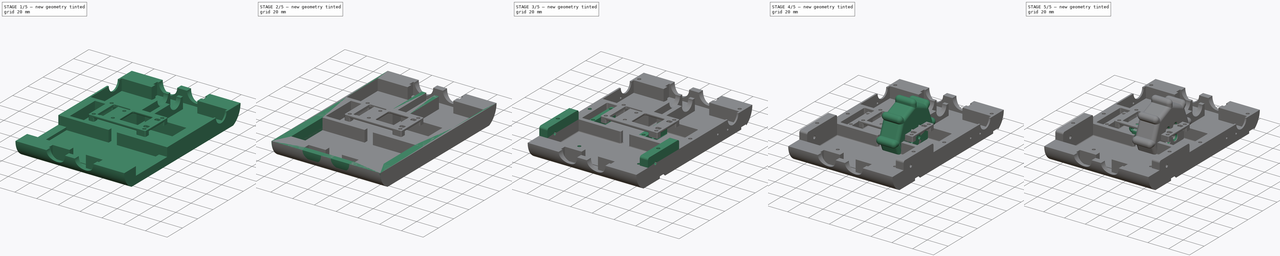
[diagram: build sequence overview — one tinted view per stage of 5, left to right]
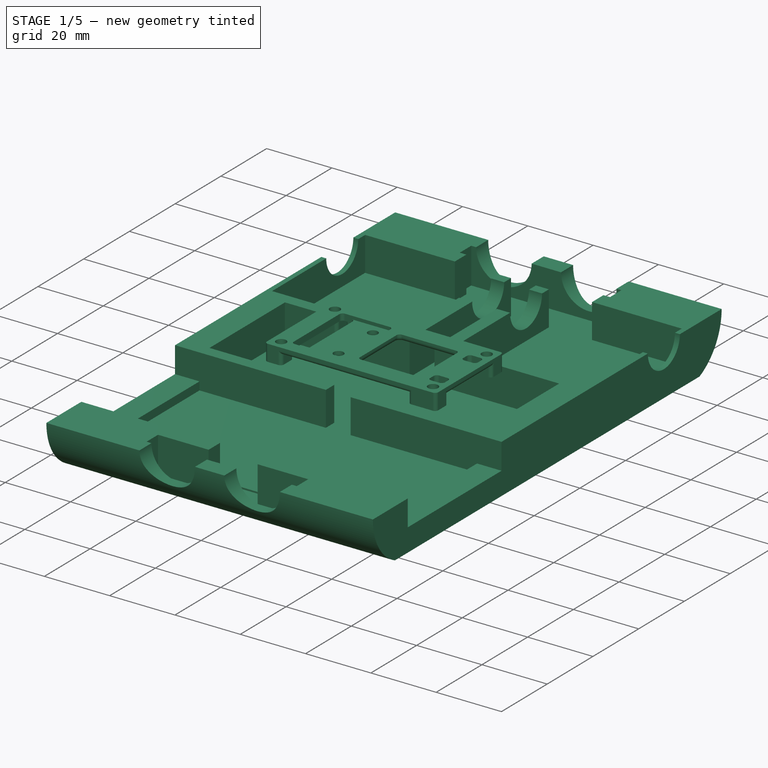
[diagram: stage 1 of 5 — iso view after this stage's code; geometry added in this stage tinted green]
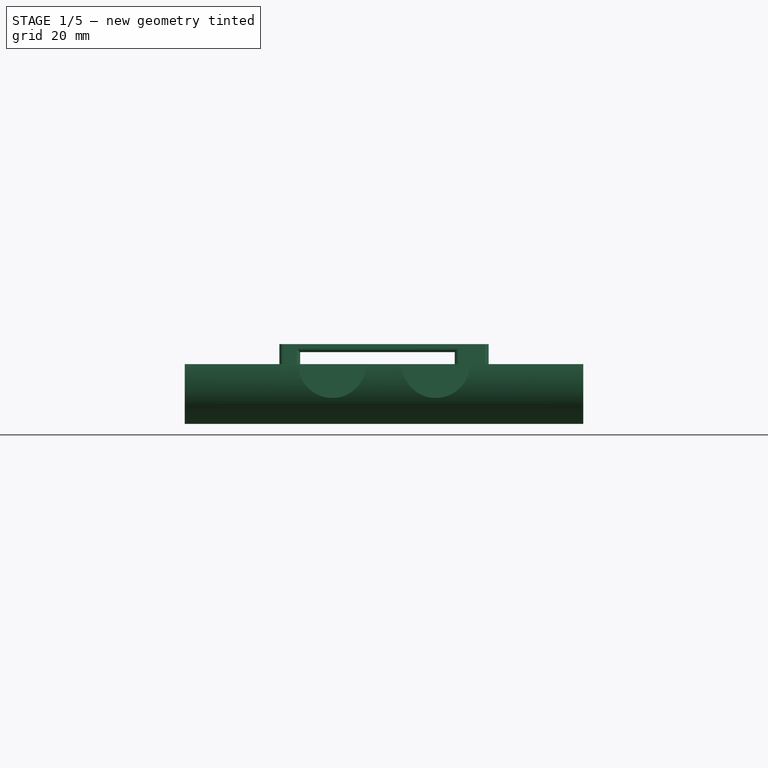
[diagram: stage 1 of 5 — front view after this stage's code; geometry added in this stage tinted green]
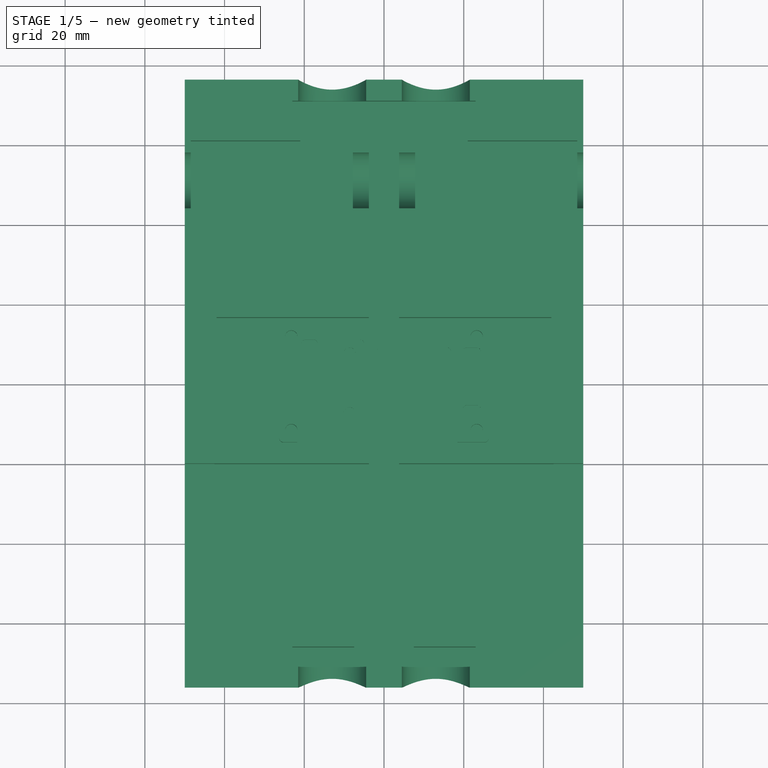
[diagram: stage 1 of 5 — top view after this stage's code; geometry added in this stage tinted green]
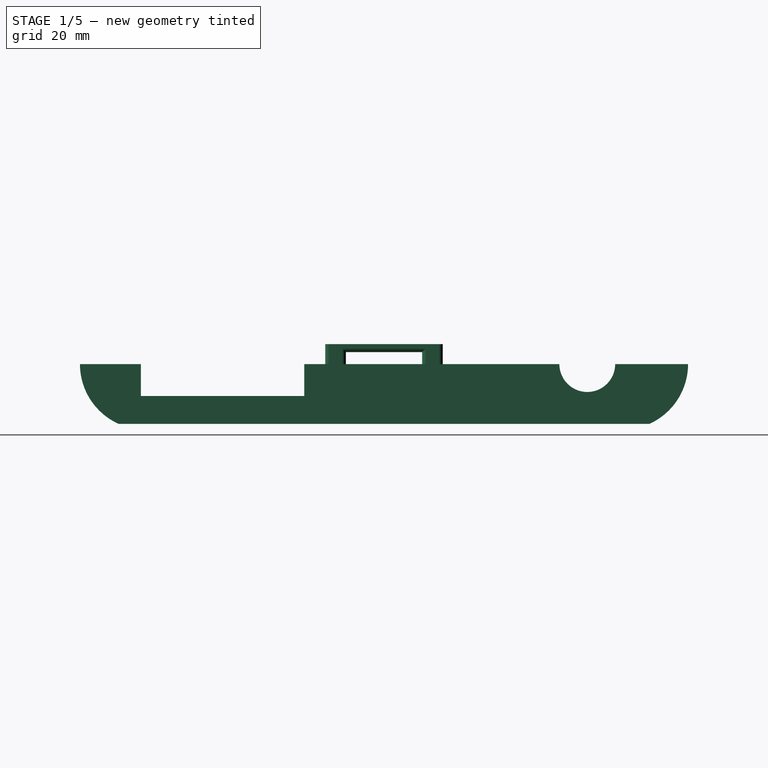
[diagram: stage 1 of 5 — right view after this stage's code; geometry added in this stage tinted green]
FCSTD DOCUMENT  (FreeCAD 0.18.4R)
Label: tank
License: All rights reserved
LicenseURL: http://en.wikipedia.org/wiki/All_rights_reserved
objects: Sketcher::SketchObject×40, PartDesign::Pocket×30, PartDesign::Fillet×16, PartDesign::Pad×10, PartDesign::Body×7, PartDesign::Chamfer×2
note: 145 computed .brp shape members not serialized (recipe doc carries the construction recipe); baked Part::Feature solids carry a one-line shape summary decoded from their .brp

FEATURE [PartDesign::Body] Body003  label="Body_bottom"
  Group = -> [Sketch011,Pad005,Sketch012,Pocket006,Sketch013,Sketch014,Sketch015,Sketch016,Sketch017,Pocket007,Pocket008,Pocket009,Pad006,Pocket010,Sketch018,Pocket011,Sketch019,Pocket012,Sketch020,Pad007,Sketch021,Pocket013,Fillet010,Sketch022,Pocket014,Fillet011,Sketch023,Pocket015,Fillet012,Chamfer001]
  Origin = -> Origin003
  Tip = -> Chamfer001
FEATURE [Sketcher::SketchObject] Sketch024  label="body_profile001"
  MapMode = 5
  Placement = pos=(0,0,0) rot=(0.57735,0.57735,0.57735;2.0944rad)
  Support = -> [YZ_Plane004]
  sketch-geometry (38):
    g0: LineSegment [constr] StartX=-51 StartY=0 StartZ=0 EndX=51 EndY=0 EndZ=0
    g1: LineSegment [constr] StartX=-61 StartY=10 StartZ=0 EndX=-21 EndY=10 EndZ=0
    g2: LineSegment [constr] StartX=-21 StartY=10 StartZ=0 EndX=-21 EndY=-10 EndZ=0
    g3: LineSegment [constr] StartX=-21 StartY=-10 StartZ=0 EndX=-61 EndY=-10 EndZ=0
    g4: LineSegment [constr] StartX=-61 StartY=-10 StartZ=0 EndX=-61 EndY=10 EndZ=0
    g5: LineSegment [constr] StartX=-51 StartY=10 StartZ=0 EndX=-51 EndY=-10 EndZ=0
    g6: Circle [constr] CenterX=-51 CenterY=0 CenterZ=0 NormalX=0 NormalY=0 NormalZ=1 AngleXU=0 Radius=27.5
    g7: Circle [constr] CenterX=51 CenterY=0 CenterZ=0 NormalX=0 NormalY=0 NormalZ=1 AngleXU=0 Radius=27.5
    g8: LineSegment [constr] StartX=-83 StartY=8 StartZ=0 EndX=-83 EndY=-8 EndZ=0
    g9: LineSegment [constr] StartX=-83 StartY=-8 StartZ=0 EndX=-71 EndY=-8 EndZ=0
    g10: LineSegment [constr] StartX=-71 StartY=-8 StartZ=0 EndX=-71 EndY=-10.5 EndZ=0
    g11: LineSegment [constr] StartX=-71 StartY=-10.5 StartZ=0 EndX=-66 EndY=-10.5 EndZ=0
    g12: LineSegment [constr] StartX=-66 StartY=-10.5 StartZ=0 EndX=-66 EndY=10.5 EndZ=0
    g13: LineSegment [constr] StartX=-66 StartY=10.5 StartZ=0 EndX=-71 EndY=10.5 EndZ=0
    g14: LineSegment [constr] StartX=-71 StartY=10.5 StartZ=0 EndX=-71 EndY=8 EndZ=0
    g15: LineSegment [constr] StartX=-71 StartY=8 StartZ=0 EndX=-83 EndY=8 EndZ=0
    g16: LineSegment [constr] StartX=-71 StartY=8 StartZ=0 EndX=-71 EndY=-8 EndZ=0
    g17: LineSegment [constr] StartX=83 StartY=8 StartZ=0 EndX=71 EndY=8 EndZ=0
    g18: LineSegment [constr] StartX=71 StartY=8 StartZ=0 EndX=71 EndY=10.5 EndZ=0
    g19: LineSegment [constr] StartX=71 StartY=10.5 StartZ=0 EndX=66 EndY=10.5 EndZ=0
    g20: LineSegment [constr] StartX=66 StartY=10.5 StartZ=0 EndX=66 EndY=-10.5 EndZ=0
    g21: LineSegment [constr] StartX=66 StartY=-10.5 StartZ=0 EndX=71 EndY=-10.5 EndZ=0
    g22: LineSegment [constr] StartX=71 StartY=-10.5 StartZ=0 EndX=71 EndY=-8 EndZ=0
    g23: LineSegment [constr] StartX=71 StartY=-8 StartZ=0 EndX=83 EndY=-8 EndZ=0
    g24: LineSegment [constr] StartX=83 StartY=-8 StartZ=0 EndX=83 EndY=8 EndZ=0
    g25: LineSegment [constr] StartX=-66 StartY=0 StartZ=0 EndX=-51 EndY=0 EndZ=0
    g26: LineSegment [constr] StartX=51 StartY=0 StartZ=0 EndX=66 EndY=0 EndZ=0
    g27: LineSegment [constr] StartX=-51 StartY=0 StartZ=0 EndX=-78.5 EndY=0 EndZ=0
    g28: Circle [constr] CenterX=-51 CenterY=0 CenterZ=0 NormalX=0 NormalY=0 NormalZ=1 AngleXU=0 Radius=25.2834
    g29: LineSegment [constr] StartX=-71.3531 StartY=-15 StartZ=0 EndX=71.3531 EndY=-15 EndZ=0
    g30: LineSegment [constr] StartX=-71 StartY=-10.5 StartZ=0 EndX=-74 EndY=-10.5 EndZ=0
    g31: Circle [constr] CenterX=51 CenterY=0 CenterZ=0 NormalX=0 NormalY=0 NormalZ=1 AngleXU=0 Radius=25.2834
    g32: ArcOfCircle CenterX=-59.8214 CenterY=0 CenterZ=0 NormalX=0 NormalY=0 NormalZ=1 AngleXU=0 Radius=16.4619 StartAngle=3.14159 EndAngle=4.28776
    g33: LineSegment [constr] StartX=-71 StartY=-10.5 StartZ=0 EndX=-72.5 EndY=-10.5 EndZ=0
    g34: LineSegment [constr] StartX=66 StartY=0 StartZ=0 EndX=83 EndY=0 EndZ=0
    g35: ArcOfCircle CenterX=59.8214 CenterY=0 CenterZ=0 NormalX=0 NormalY=0 NormalZ=1 AngleXU=0 Radius=16.4619 StartAngle=5.13702 EndAngle=6.28319
    g36: LineSegment StartX=-66.6035 StartY=-15 StartZ=0 EndX=66.6035 EndY=-15 EndZ=0
    g37: LineSegment StartX=-76.2834 StartY=2e-15 StartZ=0 EndX=76.2834 EndY=-4e-15 EndZ=0
  constraints (114):
    c: Horizontal(g0)
    c: Symmetric(g0,g0,g-1)
    c: DistanceX(g0,g0) = 102
    c: Coincident(g1,g2)
    c: Coincident(g2,g3)
    c: Coincident(g3,g4)
    c: Coincident(g4,g1)
    c: Horizontal(g1)
    c: Horizontal(g3)
    c: Vertical(g2)
    c: Vertical(g4)
    c: PointOnObject(g5,g1)
    c: PointOnObject(g5,g3)
    c: Vertical(g5)
    c: DistanceX(g3,g5) = 10
    c: Symmetric(g5,g5,g0)
    c: DistanceY(g4,g4) = 20
    c: DistanceX(g1,g1) = 40
    c: Equal(g7,g6)
    c: Radius(g6) = 27.5
    c: Coincident(g6,g0)
    c: Coincident(g7,g0)
    c: Coincident(g8,g9)
    c: Horizontal(g9)
    c: Coincident(g9,g10)
    c: Vertical(g10)
    c: Coincident(g10,g11)
    c: Horizontal(g11)
    c: Coincident(g11,g12)
    c: Vertical(g12)
    c: Coincident(g12,g13)
    c: Horizontal(g13)
    c: Coincident(g13,g14)
    c: Vertical(g14)
    c: Coincident(g14,g15)
    c: Coincident(g15,g8)
    c: Horizontal(g15)
    c: DistanceY(g8,g8) = 16
    c: Equal(g10,g14)
    c: DistanceY(g12,g12) = 21
    c: DistanceX(g15,g15) = 12
    c: Coincident(g16,g14)
    c: Coincident(g16,g9)
    c: Vertical(g16)
    c: DistanceX(g13,g13) = 5
    c: Symmetric(g8,g8,g-1)
    c: DistanceX(g11,g3) = 5
    c: Horizontal(g17)
    c: Coincident(g17,g18)
    c: Vertical(g18)
    c: Coincident(g18,g19)
    c: Horizontal(g19)
    c: Coincident(g19,g20)
    c: Vertical(g20)
    c: Coincident(g20,g21)
    c: Horizontal(g21)
    c: Coincident(g21,g22)
    c: Coincident(g22,g23)
    c: Horizontal(g23)
    c: Coincident(g23,g24)
    c: Coincident(g24,g17)
    c: Equal(g17,g23)
    c: Equal(g19,g21)
    c: Equal(g18,g22)
    c: Equal(g20,g12)
    c: Equal(g24,g8)
    c: Equal(g15,g17)
    c: Equal(g21,g13)
    c: Symmetric(g17,g23,g-1)
    c: PointOnObject(g25,g12)
    c: Coincident(g25,g0)
    c: Horizontal(g25)
    c: Coincident(g26,g0)
    c: PointOnObject(g26,g20)
    c: Horizontal(g26)
    c: Equal(g26,g25)
    c: Coincident(g27,g0)
    c: PointOnObject(g27,g6)
    c: Horizontal(g27)
    c: Coincident(g28,g0)
    c: PointOnObject(g29,g28)
    c: Horizontal(g29)
    c: DistanceY(g29,g3) = 5
    c: Coincident(g30,g10)
    c: PointOnObject(g30,g28)
    c: Horizontal(g30)
    c: DistanceX(g30,g30) = 3
    c: Coincident(g31,g0)
    c: Equal(g31,g28)
    c: PointOnObject(g29,g31)
    c: PointOnObject(g32,g27)
    c: PointOnObject(g32,g28)
    c: PointOnObject(g32,g29)
    c: PointOnObject(g32,g27)
    c: Coincident(g33,g10)
    c: PointOnObject(g33,g32)
    c: DistanceX(g33,g33) = 1.5
    c: Horizontal(g33)
    c: Coincident(g34,g26)
    c: Horizontal(g34)
    c: PointOnObject(g35,g34)
    c: PointOnObject(g35,g31)
    c: PointOnObject(g35,g29)
    c: PointOnObject(g35,g34)
    c: Equal(g35,g32)
    c: PointOnObject(g34,g24)
    c: Coincident(g37,g32)
    c: Coincident(g36,g32)
    c: Coincident(g37,g35)
    c: Coincident(g36,g35)
    c: DistanceX(g37,g37) = 152.567
    c: DistanceX(g12,g19) = 132
    c: DistanceY(g30,g32) = 10.5
    c: DistanceY(g32,g32) = 15
FEATURE [PartDesign::Pad] Pad008
  Length = 100
  Length2 = 100
  Midplane = true
  Placement = pos=(0,0,0) rot=(0.57735,0.57735,0.57735;2.0944rad)
  Profile = -> Sketch024
  Type = 0
FEATURE [Sketcher::SketchObject] Sketch025  label="main_cut001"
  MapMode = 5
  Placement = pos=(0,0,-6e-16) rot=(0,0,-1;1.5708rad)
  Support = -> [Pad008]
  sketch-geometry (39):
    g0: LineSegment StartX=-61 StartY=-7.8 StartZ=0 EndX=-20.3 EndY=-7.8 EndZ=0
    g1: LineSegment StartX=-20.3 StartY=-7.8 StartZ=0 EndX=-20.3 EndY=-48.5 EndZ=0
    g2: LineSegment StartX=-20.3 StartY=-48.5 StartZ=0 EndX=-61 EndY=-48.5 EndZ=0
    g3: LineSegment StartX=-61 StartY=-48.5 StartZ=0 EndX=-61 EndY=-7.8 EndZ=0
    g4: LineSegment StartX=-61 StartY=48.5 StartZ=0 EndX=-20.3 EndY=48.5 EndZ=0
    g5: LineSegment StartX=-20.3 StartY=48.5 StartZ=0 EndX=-20.3 EndY=7.8 EndZ=0
    g6: LineSegment StartX=-20.3 StartY=7.8 StartZ=0 EndX=-61 EndY=7.8 EndZ=0
    g7: LineSegment StartX=-61 StartY=7.8 StartZ=0 EndX=-61 EndY=48.5 EndZ=0
    g8: LineSegment [constr] StartX=-61 StartY=7.8 StartZ=0 EndX=-61 EndY=-7.8 EndZ=0
    g9: LineSegment [constr] StartX=-76.2835 StartY=50 StartZ=0 EndX=76.2835 EndY=50 EndZ=0
    g10: LineSegment [constr] StartX=76.2835 StartY=50 StartZ=0 EndX=76.2835 EndY=-50 EndZ=0
    g11: LineSegment [constr] StartX=76.2835 StartY=-50 StartZ=0 EndX=-76.2835 EndY=-50 EndZ=0
    g12: LineSegment [constr] StartX=-76.2835 StartY=-50 StartZ=0 EndX=-76.2835 EndY=50 EndZ=0
    g13: LineSegment [constr] StartX=-61 StartY=-48.5 StartZ=0 EndX=-61 EndY=-50 EndZ=0
    g14: LineSegment StartX=-66 StartY=3.8 StartZ=0 EndX=-16.65 EndY=3.8 EndZ=0
    g15: LineSegment StartX=-16.65 StartY=3.8 StartZ=0 EndX=-16.65 EndY=42 EndZ=0
    g16: LineSegment StartX=-16.65 StartY=42 StartZ=0 EndX=16.35 EndY=42 EndZ=0
    g17: LineSegment StartX=16.35 StartY=42 StartZ=0 EndX=16.35 EndY=3.8 EndZ=0
    g18: LineSegment StartX=16.35 StartY=3.8 StartZ=0 EndX=20 EndY=3.8 EndZ=0
    g19: LineSegment StartX=20 StartY=3.8 StartZ=0 EndX=20 EndY=42.5 EndZ=0
    g20: LineSegment StartX=20 StartY=42.5 StartZ=0 EndX=61 EndY=42.5 EndZ=0
    g21: LineSegment StartX=61 StartY=42.5 StartZ=0 EndX=61 EndY=-42.5 EndZ=0
    g22: LineSegment StartX=61 StartY=-42.5 StartZ=0 EndX=20 EndY=-42.5 EndZ=0
    g23: LineSegment StartX=20 StartY=-42.5 StartZ=0 EndX=20 EndY=-3.8 EndZ=0
    g24: LineSegment StartX=20 StartY=-3.8 StartZ=0 EndX=16.35 EndY=-3.8 EndZ=0
    g25: LineSegment StartX=16.35 StartY=-3.8 StartZ=0 EndX=16.35 EndY=-42 EndZ=0
    g26: LineSegment StartX=16.35 StartY=-42 StartZ=0 EndX=-16.65 EndY=-42 EndZ=0
    g27: LineSegment StartX=-16.65 StartY=-42 StartZ=0 EndX=-16.65 EndY=-3.8 EndZ=0
    g28: LineSegment StartX=-16.65 StartY=-3.8 StartZ=0 EndX=-66 EndY=-3.8 EndZ=0
    g29: LineSegment StartX=-66 StartY=-3.8 StartZ=0 EndX=-66 EndY=3.8 EndZ=0
    g30: LineSegment [constr] StartX=-61 StartY=48.5 StartZ=0 EndX=-76.2835 EndY=48.5 EndZ=0
    g31: LineSegment [constr] StartX=61 StartY=42.5 StartZ=0 EndX=76.2835 EndY=42.5 EndZ=0
    g32: LineSegment [constr] StartX=-51 StartY=0 StartZ=0 EndX=51 EndY=0 EndZ=0
    g33: LineSegment [constr] StartX=-51 StartY=-48.5 StartZ=0 EndX=-51 EndY=0 EndZ=0
    g34: LineSegment [constr] StartX=-20.3 StartY=7.8 StartZ=0 EndX=-16.65 EndY=7.8 EndZ=0
    g35: LineSegment [constr] StartX=16.35 StartY=42 StartZ=0 EndX=16.35 EndY=50 EndZ=0
    g36: LineSegment [constr] StartX=-20.3 StartY=7.8 StartZ=0 EndX=-20.3 EndY=3.8 EndZ=0
    g37: LineSegment [constr] StartX=-61 StartY=7.8 StartZ=0 EndX=-66 EndY=7.8 EndZ=0
    g38: LineSegment [constr] StartX=-66 StartY=7.8 StartZ=0 EndX=-66 EndY=3.8 EndZ=0
  constraints (113):
    c: Coincident(g0,g1)
    c: Coincident(g1,g2)
    c: Coincident(g2,g3)
    c: Coincident(g3,g0)
    c: Horizontal(g0)
    c: Horizontal(g2)
    c: Vertical(g1)
    c: Vertical(g3)
    c: Coincident(g4,g5)
    c: Coincident(g5,g6)
    c: Coincident(g6,g7)
    c: Coincident(g7,g4)
    c: Horizontal(g4)
    c: Horizontal(g6)
    c: Vertical(g5)
    c: Vertical(g7)
    c: Equal(g4,g7)
    c: Equal(g7,g3)
    c: Equal(g3,g0)
    c: DistanceX(g4,g4) = 40.7
    c: Coincident(g8,g6)
    c: Coincident(g8,g0)
    c: Symmetric(g6,g0,g-1)
    c: Coincident(g9,g10)
    c: Coincident(g10,g11)
    c: Coincident(g11,g12)
    c: Coincident(g12,g9)
    c: Horizontal(g9)
    c: Horizontal(g11)
    c: Vertical(g10)
    c: Vertical(g12)
    c: DistanceX(g11,g11) = 152.567
    c: DistanceY(g12,g12) = 100
    c: Symmetric(g9,g10,g-1)
    c: Coincident(g13,g2)
    c: PointOnObject(g13,g11)
    c: Vertical(g13)
    c: DistanceY(g13,g13) = 1.5
    c: Horizontal(g14)
    c: Coincident(g14,g15)
    c: Vertical(g15)
    c: Coincident(g15,g16)
    c: Horizontal(g16)
    c: Coincident(g16,g17)
    c: Vertical(g17)
    c: Coincident(g17,g18)
    c: Horizontal(g18)
    c: Coincident(g18,g19)
    c: Vertical(g19)
    c: Coincident(g19,g20)
    c: Horizontal(g20)
    c: Coincident(g20,g21)
    c: Vertical(g21)
    c: Coincident(g21,g22)
    c: Horizontal(g22)
    c: Coincident(g22,g23)
    c: Vertical(g23)
    c: Coincident(g23,g24)
    c: Horizontal(g24)
    c: Coincident(g24,g25)
    c: Vertical(g25)
    c: Coincident(g25,g26)
    c: Horizontal(g26)
    c: Coincident(g26,g27)
    c: Coincident(g27,g28)
    c: Horizontal(g28)
    c: Coincident(g28,g29)
    c: Coincident(g29,g14)
    c: Equal(g14,g28)
    c: Equal(g16,g26)
    c: Equal(g15,g27)
    c: Equal(g27,g17)
    c: Equal(g17,g25)
    c: Equal(g18,g24)
    c: Equal(g19,g23)
    c: Equal(g20,g22)
    c: Symmetric(g14,g28,g-1)
    c: DistanceX(g20,g20) = 41
    c: Coincident(g30,g4)
    c: PointOnObject(g30,g12)
    c: Horizontal(g30)
    c: Coincident(g31,g20)
    c: PointOnObject(g31,g10)
    c: Horizontal(g31)
    c: Equal(g31,g30)
    c: Horizontal(g32)
    c: DistanceX(g32,g32) = 102
    c: Symmetric(g32,g32,g-1)
    c: PointOnObject(g33,g2)
    c: Coincident(g33,g32)
    c: Vertical(g33)
    c: DistanceX(g2,g33) = 10
    c: Coincident(g34,g5)
    c: PointOnObject(g34,g15)
    c: Horizontal(g34)
    c: Equal(g34,g18)
    c: DistanceX(g16,g16) = 33
    c: Coincident(g35,g16)
    c: PointOnObject(g35,g9)
    c: Vertical(g35)
    c: DistanceY(g35,g35) = 8
    c: DistanceY(g26,g15) = 84
    c: DistanceY(g21,g21) = 85
    c: Coincident(g36,g5)
    c: PointOnObject(g36,g14)
    c: Vertical(g36)
    c: DistanceY(g36,g36) = 4
    c: Coincident(g37,g6)
    c: Horizontal(g37)
    c: Coincident(g38,g37)
    c: Coincident(g38,g14)
    c: Vertical(g38)
    c: DistanceX(g37,g37) = 5
FEATURE [PartDesign::Pocket] Pocket016
  BaseFeature = -> Pad008
  Length = 10.5
  Length2 = 100
  Placement = pos=(0,0,0) rot=(0.57735,0.57735,0.57735;2.0944rad)
  Profile = -> Sketch025
  Type = 0
FEATURE [Sketcher::SketchObject] Sketch026  label="sonar_board_cut001"
  MapMode = 5
  Placement = pos=(0,0,-6e-16) rot=(0,0,-1;1.5708rad)
  Support = -> [Pocket016]
  sketch-geometry (19):
    g0: LineSegment StartX=-71 StartY=23 StartZ=0 EndX=-66 EndY=23 EndZ=0
    g1: LineSegment [constr] StartX=-66 StartY=23 StartZ=0 EndX=-66 EndY=-23 EndZ=0
    g2: LineSegment StartX=-66 StartY=-23 StartZ=0 EndX=-71 EndY=-23 EndZ=0
    g3: LineSegment StartX=-71 StartY=-23 StartZ=0 EndX=-71 EndY=23 EndZ=0
    g4: LineSegment StartX=66 StartY=23 StartZ=0 EndX=71 EndY=23 EndZ=0
    g5: LineSegment StartX=71 StartY=23 StartZ=0 EndX=71 EndY=-23 EndZ=0
    g6: LineSegment StartX=71 StartY=-23 StartZ=0 EndX=66 EndY=-23 EndZ=0
    g7: LineSegment [constr] StartX=66 StartY=-23 StartZ=0 EndX=66 EndY=23 EndZ=0
    g8: LineSegment [constr] StartX=-66 StartY=0 StartZ=0 EndX=66 EndY=0 EndZ=0
    g9: LineSegment StartX=66 StartY=23 StartZ=0 EndX=66 EndY=7.5 EndZ=0
    g10: LineSegment StartX=66 StartY=7.5 StartZ=0 EndX=61 EndY=7.5 EndZ=0
    g11: LineSegment StartX=61 StartY=7.5 StartZ=0 EndX=61 EndY=-7.5 EndZ=0
    g12: LineSegment StartX=61 StartY=-7.5 StartZ=0 EndX=66 EndY=-7.5 EndZ=0
    g13: LineSegment StartX=66 StartY=-7.5 StartZ=0 EndX=66 EndY=-23 EndZ=0
    g14: LineSegment StartX=-66 StartY=23 StartZ=0 EndX=-66 EndY=21 EndZ=0
    g15: LineSegment StartX=-66 StartY=21 StartZ=0 EndX=-61 EndY=21 EndZ=0
    g16: LineSegment StartX=-61 StartY=21 StartZ=0 EndX=-61 EndY=-21 EndZ=0
    g17: LineSegment StartX=-61 StartY=-21 StartZ=0 EndX=-66 EndY=-21 EndZ=0
    g18: LineSegment StartX=-66 StartY=-21 StartZ=0 EndX=-66 EndY=-23 EndZ=0
  constraints (53):
    c: Coincident(g0,g1)
    c: Coincident(g1,g2)
    c: Coincident(g2,g3)
    c: Coincident(g3,g0)
    c: Horizontal(g0)
    c: Horizontal(g2)
    c: Vertical(g1)
    c: Coincident(g4,g5)
    c: Coincident(g5,g6)
    c: Coincident(g6,g7)
    c: Coincident(g7,g4)
    c: Horizontal(g4)
    c: Horizontal(g6)
    c: Vertical(g7)
    c: Equal(g3,g7)
    c: Equal(g0,g4)
    c: Symmetric(g0,g2,g-1)
    c: Symmetric(g4,g5,g-1)
    c: DistanceY(g3,g3) = 46
    c: DistanceX(g0,g0) = 5
    c: Horizontal(g8)
    c: Symmetric(g8,g8,g-1)
    c: PointOnObject(g8,g1)
    c: PointOnObject(g8,g7)
    c: DistanceX(g8,g8) = 132
    c: Vertical(g9)
    c: Coincident(g9,g10)
    c: Coincident(g10,g11)
    c: Vertical(g11)
    c: Coincident(g11,g12)
    c: Horizontal(g12)
    c: Coincident(g12,g13)
    c: Horizontal(g10)
    c: Equal(g10,g12)
    c: Coincident(g9,g4)
    c: Coincident(g13,g6)
    c: Equal(g13,g9)
    c: DistanceY(g11,g11) = 15
    c: DistanceX(g10,g10) = 5
    c: Vertical(g14)
    c: Coincident(g14,g15)
    c: Horizontal(g15)
    c: Coincident(g15,g16)
    c: Vertical(g16)
    c: Coincident(g16,g17)
    c: Horizontal(g17)
    c: Coincident(g17,g18)
    c: Coincident(g18,g2)
    c: Coincident(g14,g0)
    c: Equal(g14,g18)
    c: Equal(g15,g17)
    c: DistanceX(g15,g15) = 5
    c: DistanceY(g14,g0) = 2
FEATURE [Sketcher::SketchObject] Sketch029  label="extra_top_axis001"
  MapMode = 5
  Placement = pos=(0,0,-6e-16) rot=(0,0,-1;1.5708rad)
  Support = -> [Pocket016]
  sketch-geometry (11):
    g0: LineSegment [constr] StartX=-51 StartY=0 StartZ=0 EndX=51 EndY=0 EndZ=0
    g1: LineSegment [constr] StartX=51 StartY=50 StartZ=0 EndX=51 EndY=-50 EndZ=0
    g2: LineSegment StartX=20 StartY=42.5 StartZ=0 EndX=61 EndY=42.5 EndZ=0
    g3: LineSegment StartX=61 StartY=42.5 StartZ=0 EndX=61 EndY=50 EndZ=0
    g4: LineSegment StartX=61 StartY=50 StartZ=0 EndX=20 EndY=50 EndZ=0
    g5: LineSegment StartX=20 StartY=50 StartZ=0 EndX=20 EndY=42.5 EndZ=0
    g6: LineSegment StartX=20 StartY=-42.5 StartZ=0 EndX=61 EndY=-42.5 EndZ=0
    g7: LineSegment StartX=61 StartY=-42.5 StartZ=0 EndX=61 EndY=-50 EndZ=0
    g8: LineSegment StartX=61 StartY=-50 StartZ=0 EndX=20 EndY=-50 EndZ=0
    g9: LineSegment StartX=20 StartY=-50 StartZ=0 EndX=20 EndY=-42.5 EndZ=0
    g10: LineSegment [constr] StartX=61 StartY=-42.5 StartZ=0 EndX=61 EndY=42.5 EndZ=0
  constraints (32):
    c: Horizontal(g0)
    c: DistanceX(g0,g0) = 102
    c: Symmetric(g0,g0,g-1)
    c: Vertical(g1)
    c: DistanceY(g1,g1) = 100
    c: Symmetric(g1,g1,g0)
    c: Coincident(g2,g3)
    c: Coincident(g3,g4)
    c: Coincident(g4,g5)
    c: Coincident(g5,g2)
    c: Horizontal(g2)
    c: Horizontal(g4)
    c: Vertical(g3)
    c: Vertical(g5)
    c: DistanceY(g3,g3) = 7.5
    c: PointOnObject(g1,g4)
    c: DistanceX(g4,g4) = 41
    c: DistanceX(g1,g3) = 10
    c: Coincident(g6,g7)
    c: Coincident(g7,g8)
    c: Coincident(g8,g9)
    c: Coincident(g9,g6)
    c: Horizontal(g6)
    c: Horizontal(g8)
    c: Vertical(g7)
    c: Vertical(g9)
    c: PointOnObject(g1,g8)
    c: Equal(g7,g3)
    c: Equal(g2,g6)
    c: Coincident(g10,g6)
    c: Coincident(g10,g2)
    c: Vertical(g10)
FEATURE [Sketcher::SketchObject] Sketch030  label="axis_cut001"
  MapMode = 5
  Placement = pos=(50,-1.1e-14,4.7e-14) rot=(0.57735,0.57735,0.57735;2.0944rad)
  sketch-geometry (3):
    g0: LineSegment [constr] StartX=-51 StartY=0 StartZ=0 EndX=51 EndY=0 EndZ=0
    g1: ArcOfCircle CenterX=51 CenterY=0 CenterZ=0 NormalX=0 NormalY=0 NormalZ=1 AngleXU=0 Radius=7 StartAngle=3.14159 EndAngle=6.28319
    g2: LineSegment StartX=44 StartY=4e-15 StartZ=0 EndX=58 EndY=-1.7e-15 EndZ=0
  constraints (9):
    c: Horizontal(g0)
    c: DistanceX(g0,g0) = 102
    c: Symmetric(g0,g0,g-1)
    c: Coincident(g1,g0)
    c: PointOnObject(g1,g0)
    c: PointOnObject(g1,g-1)
    c: Radius(g1) = 7
    c: Coincident(g2,g1)
    c: Coincident(g2,g1)
FEATURE [PartDesign::Pocket] Pocket017
  BaseFeature = -> Pocket016
  Length = 11
  Length2 = 100
  Placement = pos=(0,0,0) rot=(0.57735,0.57735,0.57735;2.0944rad)
  Profile = -> Sketch026
  Type = 0
FEATURE [Sketcher::SketchObject] Sketch027  label="sonar_cut_back001"
  MapMode = 5
  Placement = pos=(3.12e-14,71,-5.04e-14) rot=(0.57735,0.57735,-0.57735;2.0944rad)
  Support = -> [Pocket017]
  sketch-geometry (4):
    g0: ArcOfCircle CenterX=0 CenterY=13 CenterZ=0 NormalX=0 NormalY=0 NormalZ=1 AngleXU=0 Radius=8.5 StartAngle=4.71239 EndAngle=7.85398
    g1: ArcOfCircle CenterX=0 CenterY=-13 CenterZ=0 NormalX=0 NormalY=0 NormalZ=1 AngleXU=0 Radius=8.5 StartAngle=4.71239 EndAngle=7.85398
    g2: LineSegment StartX=2.6e-15 StartY=-4.5 StartZ=0 EndX=-1.6e-15 EndY=-21.5 EndZ=0
    g3: LineSegment StartX=2.6e-15 StartY=21.5 StartZ=0 EndX=-1.6e-15 EndY=4.5 EndZ=0
  constraints (13):
    c: PointOnObject(g0,g-2)
    c: PointOnObject(g0,g-2)
    c: PointOnObject(g0,g-2)
    c: PointOnObject(g1,g-2)
    c: PointOnObject(g1,g-2)
    c: Equal(g1,g0)
    c: Radius(g0) = 8.5
    c: Symmetric(g1,g0,g-1)
    c: DistanceY(g1,g0) = 9
    c: Coincident(g3,g0)
    c: Coincident(g3,g0)
    c: Coincident(g2,g1)
    c: Coincident(g2,g1)
FEATURE [Sketcher::SketchObject] Sketch028  label="sonar_cut_front001"
  MapMode = 5
  Placement = pos=(-3.12e-14,-71,5.04e-14) rot=(0.57735,0.57735,0.57735;4.18879rad)
  Support = -> [Pocket017]
  sketch-geometry (4):
    g0: ArcOfCircle CenterX=0 CenterY=13 CenterZ=0 NormalX=0 NormalY=0 NormalZ=1 AngleXU=0 Radius=8.5 StartAngle=1.5708 EndAngle=4.71239
    g1: ArcOfCircle CenterX=0 CenterY=-13 CenterZ=0 NormalX=0 NormalY=0 NormalZ=1 AngleXU=0 Radius=8.5 StartAngle=1.5708 EndAngle=4.71239
    g2: LineSegment StartX=5e-16 StartY=-4.5 StartZ=0 EndX=-1.6e-15 EndY=-21.5 EndZ=0
    g3: LineSegment StartX=5e-16 StartY=21.5 StartZ=0 EndX=-1.6e-15 EndY=4.5 EndZ=0
  constraints (13):
    c: Coincident(g2,g1)
    c: Coincident(g2,g1)
    c: Coincident(g3,g0)
    c: Coincident(g3,g0)
    c: PointOnObject(g1,g-2)
    c: PointOnObject(g0,g-2)
    c: PointOnObject(g0,g-2)
    c: PointOnObject(g1,g-2)
    c: PointOnObject(g1,g-2)
    c: Symmetric(g1,g0,g-1)
    c: Equal(g1,g0)
    c: DistanceY(g1,g0) = 9
    c: Radius(g0) = 8.5
FEATURE [PartDesign::Pocket] Pocket018
  BaseFeature = -> Pocket017
  Length = 7
  Length2 = 100
  Placement = pos=(0,0,0) rot=(0.57735,0.57735,0.57735;2.0944rad)
  Profile = -> Sketch027
  Type = 0
FEATURE [PartDesign::Pocket] Pocket019
  BaseFeature = -> Pocket018
  Length = 7
  Length2 = 100
  Placement = pos=(0,0,0) rot=(0.57735,0.57735,0.57735;2.0944rad)
  Profile = -> Sketch028
  Type = 0
FEATURE [Sketcher::SketchObject] Sketch031  label="left_side001"
  MapMode = 5
  Placement = pos=(50,-1.1e-14,1.1e-14) rot=(0.57735,0.57735,0.57735;2.0944rad)
  sketch-geometry (8):
    g0: LineSegment [constr] StartX=-51 StartY=0 StartZ=0 EndX=51 EndY=0 EndZ=0
    g1: LineSegment [constr] StartX=21 StartY=10 StartZ=0 EndX=61 EndY=10 EndZ=0
    g2: LineSegment [constr] StartX=61 StartY=10 StartZ=0 EndX=61 EndY=-10 EndZ=0
    g3: LineSegment [constr] StartX=61 StartY=-10 StartZ=0 EndX=21 EndY=-10 EndZ=0
    g4: LineSegment [constr] StartX=21 StartY=-10 StartZ=0 EndX=21 EndY=10 EndZ=0
    g5: LineSegment [constr] StartX=51 StartY=10 StartZ=0 EndX=51 EndY=-10 EndZ=0
    g6: Circle CenterX=31 CenterY=-7 CenterZ=0 NormalX=0 NormalY=0 NormalZ=1 AngleXU=0 Radius=1
    g7: Circle CenterX=44 CenterY=-8 CenterZ=0 NormalX=0 NormalY=0 NormalZ=1 AngleXU=0 Radius=1
  constraints (24):
    c: Horizontal(g0)
    c: DistanceX(g0,g0) = 102
    c: Symmetric(g0,g0,g-1)
    c: Coincident(g1,g2)
    c: Coincident(g2,g3)
    c: Coincident(g3,g4)
    c: Coincident(g4,g1)
    c: Horizontal(g1)
    c: Horizontal(g3)
    c: Vertical(g2)
    c: Vertical(g4)
    c: PointOnObject(g5,g1)
    c: PointOnObject(g5,g3)
    c: Vertical(g5)
    c: DistanceX(g5,g1) = 10
    c: DistanceX(g1,g1) = 40
    c: DistanceY(g4,g4) = 20
    c: Symmetric(g5,g5,g0)
    c: Equal(g6,g7)
    c: Radius(g6) = 1
    c: DistanceX(g3,g7) = 23
    c: DistanceY(g3,g7) = 2
    c: DistanceX(g6,g7) = 13
    c: DistanceY(g3,g6) = 3
FEATURE [Sketcher::SketchObject] Sketch032  label="right_side001"
  MapMode = 5
  Placement = pos=(-50,1.1e-14,-1.1e-14) rot=(0.57735,0.57735,-0.57735;4.18879rad)
  sketch-geometry (12):
    g0: LineSegment [constr] StartX=-51 StartY=0 StartZ=0 EndX=51 EndY=0 EndZ=0
    g1: LineSegment [constr] StartX=21 StartY=10 StartZ=0 EndX=61 EndY=10 EndZ=0
    g2: LineSegment [constr] StartX=61 StartY=10 StartZ=0 EndX=61 EndY=-10 EndZ=0
    g3: LineSegment [constr] StartX=61 StartY=-10 StartZ=0 EndX=21 EndY=-10 EndZ=0
    g4: LineSegment [constr] StartX=21 StartY=-10 StartZ=0 EndX=21 EndY=10 EndZ=0
    g5: LineSegment [constr] StartX=51 StartY=10 StartZ=0 EndX=51 EndY=-10 EndZ=0
    g6: Circle CenterX=31 CenterY=7 CenterZ=0 NormalX=0 NormalY=0 NormalZ=1 AngleXU=0 Radius=1
    g7: Circle CenterX=44 CenterY=8 CenterZ=0 NormalX=0 NormalY=0 NormalZ=1 AngleXU=0 Radius=1
    g8: LineSegment StartX=-9.5 StartY=6.5 StartZ=0 EndX=9.5 EndY=6.5 EndZ=0
    g9: LineSegment StartX=9.5 StartY=6.5 StartZ=0 EndX=9.5 EndY=0 EndZ=0
    g10: LineSegment StartX=9.5 StartY=0 StartZ=0 EndX=-9.5 EndY=0 EndZ=0
    g11: LineSegment StartX=-9.5 StartY=0 StartZ=0 EndX=-9.5 EndY=6.5 EndZ=0
  constraints (35):
    c: Horizontal(g0)
    c: DistanceX(g0,g0) = 102
    c: Symmetric(g0,g0,g-1)
    c: Coincident(g1,g2)
    c: Coincident(g2,g3)
    c: Coincident(g3,g4)
    c: Coincident(g4,g1)
    c: Horizontal(g1)
    c: Horizontal(g3)
    c: Vertical(g2)
    c: Vertical(g4)
    c: PointOnObject(g5,g1)
    c: PointOnObject(g5,g3)
    c: Vertical(g5)
    c: DistanceX(g5,g1) = 10
    c: DistanceX(g1,g1) = 40
    c: DistanceY(g4,g4) = 20
    c: Symmetric(g5,g5,g0)
    c: Equal(g6,g7)
    c: Radius(g6) = 1
    c: DistanceX(g3,g7) = 23
    c: DistanceX(g6,g7) = 13
    c: DistanceY(g6,g1) = 3
    c: DistanceY(g7,g1) = 2
    c: Coincident(g8,g9)
    c: Coincident(g9,g10)
    c: Coincident(g10,g11)
    c: Coincident(g11,g8)
    c: Horizontal(g8)
    c: Horizontal(g10)
    c: Vertical(g9)
    c: Vertical(g11)
    c: DistanceX(g8,g8) = 19
    c: DistanceY(g11,g11) = 6.5
    c: Symmetric(g10,g9,g-1)
FEATURE [Sketcher::SketchObject] Sketch034  label="mount_holes001"
  MapMode = 5
  Placement = pos=(-6e-15,6e-15,8) rot=(0,0,-1;1.5708rad)
  sketch-geometry (11):
    g0: Circle CenterX=42 CenterY=46.25 CenterZ=0 NormalX=0 NormalY=0 NormalZ=1 AngleXU=0 Radius=1.55
    g1: Circle CenterX=42 CenterY=-46.25 CenterZ=0 NormalX=0 NormalY=0 NormalZ=1 AngleXU=0 Radius=1.55
    g2: Circle CenterX=-16 CenterY=-46.25 CenterZ=0 NormalX=0 NormalY=0 NormalZ=1 AngleXU=0 Radius=1.55
    g3: Circle CenterX=0 CenterY=46.25 CenterZ=0 NormalX=0 NormalY=0 NormalZ=1 AngleXU=0 Radius=1.55
    g4: Circle CenterX=-65 CenterY=46.25 CenterZ=0 NormalX=0 NormalY=0 NormalZ=1 AngleXU=0 Radius=1.55
    g5: Circle CenterX=-65 CenterY=-46.25 CenterZ=0 NormalX=0 NormalY=0 NormalZ=1 AngleXU=0 Radius=1.55
    g6: LineSegment [constr] StartX=-65 StartY=46.25 StartZ=0 EndX=65 EndY=46.25 EndZ=0
    g7: LineSegment [constr] StartX=65 StartY=46.25 StartZ=0 EndX=65 EndY=-46.25 EndZ=0
    g8: LineSegment [constr] StartX=65 StartY=-46.25 StartZ=0 EndX=-65 EndY=-46.25 EndZ=0
    g9: LineSegment [constr] StartX=-65 StartY=-46.25 StartZ=0 EndX=-65 EndY=46.25 EndZ=0
    g10: LineSegment [constr] StartX=42 StartY=46.25 StartZ=0 EndX=42 EndY=-46.25 EndZ=0
  constraints (29):
    c: Equal(g5,g2)
    c: Equal(g2,g1)
    c: Equal(g1,g0)
    c: Equal(g0,g3)
    c: Equal(g3,g4)
    c: Radius(g4) = 1.55
    c: Coincident(g6,g7)
    c: Coincident(g7,g8)
    c: Coincident(g8,g9)
    c: Coincident(g9,g6)
    c: Horizontal(g6)
    c: Horizontal(g8)
    c: Vertical(g7)
    c: Vertical(g9)
    c: Coincident(g4,g6)
    c: PointOnObject(g0,g6)
    c: PointOnObject(g3,g6)
    c: PointOnObject(g1,g8)
    c: DistanceY(g9,g9) = 92.5
    c: Coincident(g5,g8)
    c: Symmetric(g6,g5,g-1)
    c: DistanceX(g8,g8) = 130
    c: DistanceX(g1,g7) = 23
    c: Coincident(g10,g0)
    c: Coincident(g10,g1)
    c: Vertical(g10)
    c: PointOnObject(g2,g8)
    c: DistanceX(g5,g2) = 49
    c: PointOnObject(g3,g-2)
FEATURE [Sketcher::SketchObject] Sketch036  label="mount_holes_holes001"
  MapMode = 5
  Placement = pos=(1.3e-14,-1.5e-14,-15) rot=(0.707107,0.707107,0;3.14159rad)
  sketch-geometry (11):
    g0: Circle CenterX=-42 CenterY=46.25 CenterZ=0 NormalX=0 NormalY=0 NormalZ=1 AngleXU=0 Radius=5
    g1: Circle CenterX=-42 CenterY=-46.25 CenterZ=0 NormalX=0 NormalY=0 NormalZ=1 AngleXU=0 Radius=5
    g2: Circle CenterX=16 CenterY=-46.25 CenterZ=0 NormalX=0 NormalY=0 NormalZ=1 AngleXU=0 Radius=5
    g3: Circle CenterX=0 CenterY=46.25 CenterZ=0 NormalX=0 NormalY=0 NormalZ=1 AngleXU=0 Radius=5
    g4: LineSegment [constr] StartX=-65 StartY=46.25 StartZ=0 EndX=65 EndY=46.25 EndZ=0
    g5: LineSegment [constr] StartX=65 StartY=46.25 StartZ=0 EndX=65 EndY=-46.25 EndZ=0
    g6: LineSegment [constr] StartX=65 StartY=-46.25 StartZ=0 EndX=-65 EndY=-46.25 EndZ=0
    g7: LineSegment [constr] StartX=-65 StartY=-46.25 StartZ=0 EndX=-65 EndY=46.25 EndZ=0
    g8: LineSegment [constr] StartX=-42 StartY=46.25 StartZ=0 EndX=-42 EndY=-46.25 EndZ=0
    g9: Circle CenterX=65 CenterY=46.25 CenterZ=0 NormalX=0 NormalY=0 NormalZ=1 AngleXU=0 Radius=5
    g10: Circle CenterX=65 CenterY=-46.25 CenterZ=0 NormalX=0 NormalY=0 NormalZ=1 AngleXU=0 Radius=5
  constraints (29):
    c: Equal(g2,g1)
    c: Equal(g1,g0)
    c: Equal(g0,g3)
    c: Coincident(g4,g5)
    c: Coincident(g5,g6)
    c: Coincident(g6,g7)
    c: Coincident(g7,g4)
    c: Horizontal(g4)
    c: Horizontal(g6)
    c: Vertical(g5)
    c: Vertical(g7)
    c: PointOnObject(g0,g4)
    c: PointOnObject(g3,g4)
    c: PointOnObject(g1,g6)
    c: DistanceY(g7,g7) = 92.5
    c: DistanceX(g6,g6) = 130
    c: Coincident(g8,g0)
    c: Coincident(g8,g1)
    c: Vertical(g8)
    c: Coincident(g9,g4)
    c: Coincident(g10,g5)
    c: Equal(g10,g9)
    c: Equal(g9,g1)
    c: Symmetric(g4,g10,g-1)
    c: DistanceX(g6,g1) = 23
    c: Radius(g10) = 5
    c: PointOnObject(g2,g6)
    c: DistanceX(g2,g10) = 49
    c: PointOnObject(g3,g-2)
FEATURE [PartDesign::Pocket] Pocket020
  BaseFeature = -> Pocket019
  Length = 8
  Length2 = 100
  Placement = pos=(0,0,0) rot=(0.57735,0.57735,0.57735;2.0944rad)
  Profile = -> Sketch029
  Type = 0
FEATURE [PartDesign::Pocket] Pocket021
  BaseFeature = -> Pocket020
  Length = 5
  Length2 = 100
  Placement = pos=(0,0,0) rot=(0.57735,0.57735,0.57735;2.0944rad)
  Profile = -> Sketch030
  Type = 1
FEATURE [PartDesign::Body] Body004  label="Body_top"
  Group = -> [Sketch024,Pad008,Sketch025,Pocket016,Sketch026,Sketch027,Sketch028,Sketch029,Sketch030,Pocket017,Pocket018,Pocket019,Sketch031,Sketch032,Sketch034,Sketch036,Pocket020,Pocket021,Pocket022,Pocket023,Pocket024,Pocket025,Fillet013,Sketch037,Pocket026,Sketch038,Pocket027]
  Origin = -> Origin004
  Tip = -> Pocket027
FEATURE [PartDesign::Body] Body005
  Origin = -> Origin005
FEATURE [Sketcher::SketchObject] Sketch039  label="top_board"
  MapMode = 5
  Support = -> [XY_Plane006]
  sketch-geometry (47):
    g0: LineSegment [constr] StartX=-23.25 StartY=11.75 StartZ=0 EndX=23.25 EndY=11.75 EndZ=0
    g1: LineSegment [constr] StartX=23.25 StartY=11.75 StartZ=0 EndX=23.25 EndY=-11.75 EndZ=0
    g2: LineSegment [constr] StartX=23.25 StartY=-11.75 StartZ=0 EndX=-23.25 EndY=-11.75 EndZ=0
    g3: LineSegment [constr] StartX=-23.25 StartY=-11.75 StartZ=0 EndX=-23.25 EndY=11.75 EndZ=0
    g4: Circle CenterX=-23.25 CenterY=11.75 CenterZ=0 NormalX=0 NormalY=0 NormalZ=1 AngleXU=0 Radius=1.55
    g5: Circle CenterX=23.25 CenterY=11.75 CenterZ=0 NormalX=0 NormalY=0 NormalZ=1 AngleXU=0 Radius=1.55
    g6: Circle CenterX=-23.25 CenterY=-11.75 CenterZ=0 NormalX=0 NormalY=0 NormalZ=1 AngleXU=0 Radius=1.55
    g7: Circle CenterX=23.25 CenterY=-11.75 CenterZ=0 NormalX=0 NormalY=0 NormalZ=1 AngleXU=0 Radius=1.55
    g8: LineSegment StartX=-26.25 StartY=14.75 StartZ=0 EndX=26.25 EndY=14.75 EndZ=0
    g9: LineSegment StartX=26.25 StartY=14.75 StartZ=0 EndX=26.25 EndY=-14.75 EndZ=0
    g10: LineSegment StartX=26.25 StartY=-14.75 StartZ=0 EndX=-26.25 EndY=-14.75 EndZ=0
    g11: LineSegment StartX=-26.25 StartY=-14.75 StartZ=0 EndX=-26.25 EndY=14.75 EndZ=0
    g12: LineSegment [constr] StartX=-23.25 StartY=11.75 StartZ=0 EndX=-26.25 EndY=11.75 EndZ=0
    g13: LineSegment [constr] StartX=-23.25 StartY=11.75 StartZ=0 EndX=-23.25 EndY=14.75 EndZ=0
    g14: LineSegment [constr] StartX=-20.25 StartY=10.25 StartZ=0 EndX=-5.75 EndY=10.25 EndZ=0
    g15: LineSegment [constr] StartX=-5.75 StartY=10.25 StartZ=0 EndX=-5.75 EndY=-10.25 EndZ=0
    g16: LineSegment [constr] StartX=-5.75 StartY=-10.25 StartZ=0 EndX=-20.25 EndY=-10.25 EndZ=0
    g17: LineSegment [constr] StartX=-20.25 StartY=-10.25 StartZ=0 EndX=-20.25 EndY=10.25 EndZ=0
    g18: Circle CenterX=-8.65 CenterY=7.5 CenterZ=0 NormalX=0 NormalY=0 NormalZ=1 AngleXU=0 Radius=1.5
    g19: Circle CenterX=-8.65 CenterY=-7.5 CenterZ=0 NormalX=0 NormalY=0 NormalZ=1 AngleXU=0 Radius=1.5
    g20: LineSegment [constr] StartX=-8.65 StartY=7.5 StartZ=0 EndX=-8.65 EndY=-7.5 EndZ=0
    g21: LineSegment [constr] StartX=-7.15 StartY=-7.5 StartZ=0 EndX=-5.75 EndY=-7.5 EndZ=0
    g22: LineSegment [constr] StartX=-7.15 StartY=-7.5 StartZ=0 EndX=-8.65 EndY=-7.5 EndZ=0
    g23: LineSegment StartX=-1.75 StartY=9 StartZ=0 EndX=16.75 EndY=9 EndZ=0
    g24: LineSegment StartX=16.75 StartY=9 StartZ=0 EndX=16.75 EndY=-9 EndZ=0
    g25: LineSegment StartX=16.75 StartY=-9 StartZ=0 EndX=-1.75 EndY=-9 EndZ=0
    g26: LineSegment StartX=-1.75 StartY=-9 StartZ=0 EndX=-1.75 EndY=9 EndZ=0
    g27: LineSegment [constr] StartX=-20.25 StartY=10.25 StartZ=0 EndX=-23.25 EndY=10.25 EndZ=0
    g28: LineSegment [constr] StartX=-20.25 StartY=0 StartZ=0 EndX=-18.65 EndY=0 EndZ=0
    g29: LineSegment StartX=-20.65 StartY=11 StartZ=0 EndX=-16.65 EndY=11 EndZ=0
    g30: LineSegment StartX=-16.65 StartY=11 StartZ=0 EndX=-16.65 EndY=-11 EndZ=0
    g31: LineSegment StartX=-16.65 StartY=-11 StartZ=0 EndX=-20.65 EndY=-11 EndZ=0
    g32: LineSegment StartX=-20.65 StartY=-11 StartZ=0 EndX=-20.65 EndY=11 EndZ=0
    g33: LineSegment [constr] StartX=-18.65 StartY=11 StartZ=0 EndX=-18.65 EndY=-11 EndZ=0
    g34: LineSegment [constr] StartX=-1.75 StartY=9 StartZ=0 EndX=-5.75 EndY=9 EndZ=0
    g35: LineSegment StartX=19.75 StartY=9 StartZ=0 EndX=24.25 EndY=9 EndZ=0
    g36: LineSegment StartX=24.25 StartY=9 StartZ=0 EndX=24.25 EndY=5.5 EndZ=0
    g37: LineSegment StartX=24.25 StartY=5.5 StartZ=0 EndX=19.75 EndY=5.5 EndZ=0
    g38: LineSegment StartX=19.75 StartY=5.5 StartZ=0 EndX=19.75 EndY=9 EndZ=0
    g39: LineSegment StartX=19.75 StartY=-5.5 StartZ=0 EndX=24.25 EndY=-5.5 EndZ=0
    g40: LineSegment StartX=24.25 StartY=-5.5 StartZ=0 EndX=24.25 EndY=-9 EndZ=0
    g41: LineSegment StartX=24.25 StartY=-9 StartZ=0 EndX=19.75 EndY=-9 EndZ=0
    g42: LineSegment StartX=19.75 StartY=-9 StartZ=0 EndX=19.75 EndY=-5.5 EndZ=0
    g43: LineSegment [constr] StartX=19.75 StartY=5.5 StartZ=0 EndX=19.75 EndY=-5.5 EndZ=0
    g44: LineSegment [constr] StartX=16.75 StartY=9 StartZ=0 EndX=19.75 EndY=9 EndZ=0
    g45: LineSegment [constr] StartX=22 StartY=9 StartZ=0 EndX=22 EndY=5.5 EndZ=0
    g46: LineSegment [constr] StartX=16.75 StartY=-9 StartZ=0 EndX=19.75 EndY=-9 EndZ=0
  constraints (128):
    c: Coincident(g0,g1)
    c: Coincident(g1,g2)
    c: Coincident(g2,g3)
    c: Coincident(g3,g0)
    c: Horizontal(g0)
    c: Horizontal(g2)
    c: Vertical(g1)
    c: Vertical(g3)
    c: Symmetric(g0,g1,g-1)
    c: DistanceY(g3,g3) = 23.5
    c: DistanceX(g0,g0) = 46.5
    c: Equal(g7,g6)
    c: Equal(g6,g4)
    c: Equal(g4,g5)
    c: Radius(g4) = 1.55
    c: Coincident(g4,g0)
    c: Coincident(g5,g0)
    c: Coincident(g6,g2)
    c: Coincident(g1,g7)
    c: Coincident(g8,g9)
    c: Coincident(g9,g10)
    c: Coincident(g10,g11)
    c: Coincident(g11,g8)
    c: Horizontal(g8)
    c: Horizontal(g10)
    c: Vertical(g9)
    c: Vertical(g11)
    c: Symmetric(g8,g9,g-1)
    c: Coincident(g12,g4)
    c: PointOnObject(g12,g11)
    c: Horizontal(g12)
    c: Coincident(g13,g4)
    c: PointOnObject(g13,g8)
    c: Vertical(g13)
    c: Equal(g12,g13)
    c: DistanceY(g13,g13) = 3
    c: Coincident(g14,g15)
    c: Coincident(g15,g16)
    c: Coincident(g16,g17)
    c: Coincident(g17,g14)
    c: Horizontal(g14)
    c: Horizontal(g16)
    c: Vertical(g15)
    c: DistanceX(g14,g14) = 14.5
    c: DistanceY(g17,g17) = 20.5
    c: Symmetric(g14,g16,g-1)
    c: Equal(g19,g18)
    c: Radius(g18) = 1.5
    c: Coincident(g20,g18)
    c: Coincident(g20,g19)
    c: Symmetric(g18,g19,g-1)
    c: DistanceY(g20,g20) = 15
    c: PointOnObject(g21,g19)
    c: PointOnObject(g21,g15)
    c: Horizontal(g21)
    c: Coincident(g22,g21)
    c: Coincident(g22,g19)
    c: Horizontal(g22)
    c: DistanceX(g21,g21) = 1.4
    c: Coincident(g23,g24)
    c: Coincident(g24,g25)
    c: Coincident(g25,g26)
    c: Coincident(g26,g23)
    c: Horizontal(g23)
    c: Horizontal(g25)
    c: Vertical(g24)
    c: Vertical(g26)
    c: Coincident(g27,g14)
    c: PointOnObject(g27,g3)
    c: Horizontal(g27)
    c: DistanceX(g27,g27) = 3
    c: PointOnObject(g28,g17)
    c: Horizontal(g28)
    c: PointOnObject(g28,g-1)
    c: DistanceX(g28,g28) = 1.6
    c: Coincident(g29,g30)
    c: Coincident(g30,g31)
    c: Coincident(g31,g32)
    c: Coincident(g32,g29)
    c: Horizontal(g29)
    c: Horizontal(g31)
    c: Vertical(g30)
    c: Vertical(g32)
    c: DistanceX(g29,g29) = 4
    c: PointOnObject(g33,g29)
    c: Vertical(g33)
    c: Symmetric(g33,g33,g28)
    c: Symmetric(g31,g30,g33)
    c: DistanceY(g32,g32) = 22
    c: Coincident(g34,g23)
    c: PointOnObject(g34,g15)
    c: Horizontal(g34)
    c: DistanceX(g34,g34) = 4
    c: Coincident(g35,g36)
    c: Coincident(g36,g37)
    c: Coincident(g37,g38)
    c: Coincident(g38,g35)
    c: Horizontal(g35)
    c: Horizontal(g37)
    c: Vertical(g36)
    c: Vertical(g38)
    c: Coincident(g39,g40)
    c: Coincident(g40,g41)
    c: Coincident(g41,g42)
    c: Coincident(g42,g39)
    c: Horizontal(g39)
    c: Horizontal(g41)
    c: Vertical(g40)
    c: Vertical(g42)
    c: Equal(g42,g38)
    c: Equal(g35,g39)
    c: DistanceY(g36,g36) = 3.5
    c: DistanceX(g37,g37) = 4.5
    c: Coincident(g43,g37)
    c: Coincident(g43,g39)
    c: Symmetric(g37,g39,g-1)
    c: DistanceY(g43,g43) = 11
    c: Coincident(g44,g23)
    c: Coincident(g44,g35)
    c: Horizontal(g44)
    c: DistanceX(g44,g44) = 3
    c: PointOnObject(g45,g35)
    c: Vertical(g45)
    c: Symmetric(g37,g36,g45)
    c: DistanceX(g45,g5) = 1.25
    c: Coincident(g46,g24)
    c: Coincident(g46,g41)
    c: Horizontal(g46)
FEATURE [PartDesign::Pad] Pad009
  Length = 5
  Length2 = 100
  Profile = -> Sketch039
  Type = 0
FEATURE [Sketcher::SketchObject] Sketch040  label="top_board_IMU_place"
  MapMode = 5
  Placement = pos=(0,0,5) rot=(0,0,1;0rad)
  Support = -> [Pad009]
  sketch-geometry (53):
    g0: LineSegment [constr] StartX=-23.25 StartY=11.75 StartZ=0 EndX=23.25 EndY=11.75 EndZ=0
    g1: LineSegment [constr] StartX=23.25 StartY=11.75 StartZ=0 EndX=23.25 EndY=-11.75 EndZ=0
    g2: LineSegment [constr] StartX=23.25 StartY=-11.75 StartZ=0 EndX=-23.25 EndY=-11.75 EndZ=0
    g3: LineSegment [constr] StartX=-23.25 StartY=-11.75 StartZ=0 EndX=-23.25 EndY=11.75 EndZ=0
    g4: Circle [constr] CenterX=-23.25 CenterY=11.75 CenterZ=0 NormalX=0 NormalY=0 NormalZ=1 AngleXU=0 Radius=1.55
    g5: Circle [constr] CenterX=23.25 CenterY=11.75 CenterZ=0 NormalX=0 NormalY=0 NormalZ=1 AngleXU=0 Radius=1.55
    g6: Circle [constr] CenterX=-23.25 CenterY=-11.75 CenterZ=0 NormalX=0 NormalY=0 NormalZ=1 AngleXU=0 Radius=1.55
    g7: Circle [constr] CenterX=23.25 CenterY=-11.75 CenterZ=0 NormalX=0 NormalY=0 NormalZ=1 AngleXU=0 Radius=1.55
    g8: LineSegment [constr] StartX=-26.25 StartY=14.75 StartZ=0 EndX=26.25 EndY=14.75 EndZ=0
    g9: LineSegment [constr] StartX=26.25 StartY=14.75 StartZ=0 EndX=26.25 EndY=-14.75 EndZ=0
    g10: LineSegment [constr] StartX=26.25 StartY=-14.75 StartZ=0 EndX=-26.25 EndY=-14.75 EndZ=0
    g11: LineSegment [constr] StartX=-26.25 StartY=-14.75 StartZ=0 EndX=-26.25 EndY=14.75 EndZ=0
    g12: LineSegment [constr] StartX=-23.25 StartY=11.75 StartZ=0 EndX=-26.25 EndY=11.75 EndZ=0
    g13: LineSegment [constr] StartX=-23.25 StartY=11.75 StartZ=0 EndX=-23.25 EndY=14.75 EndZ=0
    g14: LineSegment [constr] StartX=-20.25 StartY=10.25 StartZ=0 EndX=-5.75 EndY=10.25 EndZ=0
    g15: LineSegment [constr] StartX=-5.75 StartY=10.25 StartZ=0 EndX=-5.75 EndY=-10.25 EndZ=0
    g16: LineSegment [constr] StartX=-5.75 StartY=-10.25 StartZ=0 EndX=-20.25 EndY=-10.25 EndZ=0
    g17: LineSegment [constr] StartX=-20.25 StartY=-10.25 StartZ=0 EndX=-20.25 EndY=10.25 EndZ=0
    g18: Circle [constr] CenterX=-8.65 CenterY=7.5 CenterZ=0 NormalX=0 NormalY=0 NormalZ=1 AngleXU=0 Radius=1.5
    g19: Circle [constr] CenterX=-8.65 CenterY=-7.5 CenterZ=0 NormalX=0 NormalY=0 NormalZ=1 AngleXU=0 Radius=1.5
    g20: LineSegment [constr] StartX=-8.65 StartY=7.5 StartZ=0 EndX=-8.65 EndY=-7.5 EndZ=0
    g21: LineSegment [constr] StartX=-7.15 StartY=-7.5 StartZ=0 EndX=-5.75 EndY=-7.5 EndZ=0
    g22: LineSegment [constr] StartX=-7.15 StartY=-7.5 StartZ=0 EndX=-8.65 EndY=-7.5 EndZ=0
    g23: LineSegment [constr] StartX=-1.75 StartY=9 StartZ=0 EndX=16.75 EndY=9 EndZ=0
    g24: LineSegment [constr] StartX=16.75 StartY=9 StartZ=0 EndX=16.75 EndY=-9 EndZ=0
    g25: LineSegment [constr] StartX=16.75 StartY=-9 StartZ=0 EndX=-1.75 EndY=-9 EndZ=0
    g26: LineSegment [constr] StartX=-1.75 StartY=-9 StartZ=0 EndX=-1.75 EndY=9 EndZ=0
    g27: LineSegment [constr] StartX=-20.25 StartY=10.25 StartZ=0 EndX=-23.25 EndY=10.25 EndZ=0
    g28: LineSegment [constr] StartX=-20.25 StartY=0 StartZ=0 EndX=-18.65 EndY=0 EndZ=0
    g29: LineSegment [constr] StartX=-20.65 StartY=11 StartZ=0 EndX=-16.65 EndY=11 EndZ=0
    g30: LineSegment [constr] StartX=-16.65 StartY=11 StartZ=0 EndX=-16.65 EndY=-11 EndZ=0
    g31: LineSegment [constr] StartX=-16.65 StartY=-11 StartZ=0 EndX=-20.65 EndY=-11 EndZ=0
    g32: LineSegment [constr] StartX=-20.65 StartY=-11 StartZ=0 EndX=-20.65 EndY=11 EndZ=0
    g33: LineSegment [constr] StartX=-18.65 StartY=11 StartZ=0 EndX=-18.65 EndY=-11 EndZ=0
    g34: LineSegment [constr] StartX=-1.75 StartY=9 StartZ=0 EndX=-5.75 EndY=9 EndZ=0
    g35: LineSegment [constr] StartX=19.75 StartY=9 StartZ=0 EndX=24.25 EndY=9 EndZ=0
    g36: LineSegment [constr] StartX=24.25 StartY=9 StartZ=0 EndX=24.25 EndY=5.5 EndZ=0
    g37: LineSegment [constr] StartX=24.25 StartY=5.5 StartZ=0 EndX=19.75 EndY=5.5 EndZ=0
    g38: LineSegment [constr] StartX=19.75 StartY=5.5 StartZ=0 EndX=19.75 EndY=9 EndZ=0
    g39: LineSegment [constr] StartX=19.75 StartY=-5.5 StartZ=0 EndX=24.25 EndY=-5.5 EndZ=0
    g40: LineSegment [constr] StartX=24.25 StartY=-5.5 StartZ=0 EndX=24.25 EndY=-9 EndZ=0
    g41: LineSegment [constr] StartX=24.25 StartY=-9 StartZ=0 EndX=19.75 EndY=-9 EndZ=0
    g42: LineSegment [constr] StartX=19.75 StartY=-9 StartZ=0 EndX=19.75 EndY=-5.5 EndZ=0
    g43: LineSegment [constr] StartX=19.75 StartY=5.5 StartZ=0 EndX=19.75 EndY=-5.5 EndZ=0
    g44: LineSegment [constr] StartX=16.75 StartY=9 StartZ=0 EndX=19.75 EndY=9 EndZ=0
    g45: LineSegment [constr] StartX=22 StartY=9 StartZ=0 EndX=22 EndY=5.5 EndZ=0
    g46: LineSegment [constr] StartX=16.75 StartY=-9 StartZ=0 EndX=19.75 EndY=-9 EndZ=0
    g47: LineSegment StartX=-16.65 StartY=11 StartZ=0 EndX=-5 EndY=11 EndZ=0
    g48: LineSegment StartX=-5 StartY=11 StartZ=0 EndX=-5 EndY=-11 EndZ=0
    g49: LineSegment StartX=-5 StartY=-11 StartZ=0 EndX=-16.65 EndY=-11 EndZ=0
    g50: LineSegment StartX=-16.65 StartY=-11 StartZ=0 EndX=-16.65 EndY=11 EndZ=0
    g51: LineSegment [constr] StartX=-5.75 StartY=-10.25 StartZ=0 EndX=-5.75 EndY=-11 EndZ=0
    g52: LineSegment [constr] StartX=-5.75 StartY=-10.25 StartZ=0 EndX=-5 EndY=-10.25 EndZ=0
  constraints (144):
    c: Coincident(g0,g1)
    c: Coincident(g1,g2)
    c: Coincident(g2,g3)
    c: Coincident(g3,g0)
    c: Horizontal(g0)
    c: Horizontal(g2)
    c: Vertical(g1)
    c: Vertical(g3)
    c: Symmetric(g0,g1,g-1)
    c: DistanceY(g3,g3) = 23.5
    c: DistanceX(g0,g0) = 46.5
    c: Equal(g7,g6)
    c: Equal(g6,g4)
    c: Equal(g4,g5)
    c: Radius(g4) = 1.55
    c: Coincident(g4,g0)
    c: Coincident(g5,g0)
    c: Coincident(g6,g2)
    c: Coincident(g1,g7)
    c: Coincident(g8,g9)
    c: Coincident(g9,g10)
    c: Coincident(g10,g11)
    c: Coincident(g11,g8)
    c: Horizontal(g8)
    c: Horizontal(g10)
    c: Vertical(g9)
    c: Vertical(g11)
    c: Symmetric(g8,g9,g-1)
    c: Coincident(g12,g4)
    c: PointOnObject(g12,g11)
    c: Horizontal(g12)
    c: Coincident(g13,g4)
    c: PointOnObject(g13,g8)
    c: Vertical(g13)
    c: Equal(g12,g13)
    c: DistanceY(g13,g13) = 3
    c: Coincident(g14,g15)
    c: Coincident(g15,g16)
    c: Coincident(g16,g17)
    c: Coincident(g17,g14)
    c: Horizontal(g14)
    c: Horizontal(g16)
    c: Vertical(g15)
    c: DistanceX(g14,g14) = 14.5
    c: DistanceY(g17,g17) = 20.5
    c: Symmetric(g14,g16,g-1)
    c: Equal(g19,g18)
    c: Radius(g18) = 1.5
    c: Coincident(g20,g18)
    c: Coincident(g20,g19)
    c: Symmetric(g18,g19,g-1)
    c: DistanceY(g20,g20) = 15
    c: PointOnObject(g21,g19)
    c: PointOnObject(g21,g15)
    c: Horizontal(g21)
    c: Coincident(g22,g21)
    c: Coincident(g22,g19)
    c: Horizontal(g22)
    c: DistanceX(g21,g21) = 1.4
    c: Coincident(g23,g24)
    c: Coincident(g24,g25)
    c: Coincident(g25,g26)
    c: Coincident(g26,g23)
    c: Horizontal(g23)
    c: Horizontal(g25)
    c: Vertical(g24)
    c: Vertical(g26)
    c: Coincident(g27,g14)
    c: PointOnObject(g27,g3)
    c: Horizontal(g27)
    c: DistanceX(g27,g27) = 3
    c: PointOnObject(g28,g17)
    c: Horizontal(g28)
    c: PointOnObject(g28,g-1)
    c: DistanceX(g28,g28) = 1.6
    c: Coincident(g29,g30)
    c: Coincident(g30,g31)
    c: Coincident(g31,g32)
    c: Coincident(g32,g29)
    c: Horizontal(g29)
    c: Horizontal(g31)
    c: Vertical(g30)
    c: Vertical(g32)
    c: DistanceX(g29,g29) = 4
    c: PointOnObject(g33,g29)
    c: Vertical(g33)
    c: Symmetric(g33,g33,g28)
    c: Symmetric(g31,g30,g33)
    c: DistanceY(g32,g32) = 22
    c: Coincident(g34,g23)
    c: PointOnObject(g34,g15)
    c: Horizontal(g34)
    c: DistanceX(g34,g34) = 4
    c: Coincident(g35,g36)
    c: Coincident(g36,g37)
    c: Coincident(g37,g38)
    c: Coincident(g38,g35)
    c: Horizontal(g35)
    c: Horizontal(g37)
    c: Vertical(g36)
    c: Vertical(g38)
    c: Coincident(g39,g40)
    c: Coincident(g40,g41)
    c: Coincident(g41,g42)
    c: Coincident(g42,g39)
    c: Horizontal(g39)
    c: Horizontal(g41)
    c: Vertical(g40)
    c: Vertical(g42)
    c: Equal(g42,g38)
    c: Equal(g35,g39)
    c: DistanceY(g36,g36) = 3.5
    c: DistanceX(g37,g37) = 4.5
    c: Coincident(g43,g37)
    c: Coincident(g43,g39)
    c: Symmetric(g37,g39,g-1)
    c: DistanceY(g43,g43) = 11
    c: Coincident(g44,g23)
    c: Coincident(g44,g35)
    c: Horizontal(g44)
    c: DistanceX(g44,g44) = 3
    c: PointOnObject(g45,g35)
    c: Vertical(g45)
    c: Symmetric(g37,g36,g45)
    c: DistanceX(g45,g5) = 1.25
    c: Coincident(g46,g24)
    c: Coincident(g46,g41)
    c: Horizontal(g46)
    c: Coincident(g47,g48)
    c: Coincident(g48,g49)
    c: Coincident(g49,g50)
    c: Coincident(g50,g47)
    c: Horizontal(g47)
    c: Horizontal(g49)
    c: Vertical(g48)
    c: Coincident(g47,g29)
    c: Coincident(g49,g30)
    c: Coincident(g51,g15)
    c: PointOnObject(g51,g49)
    c: Vertical(g51)
    c: Coincident(g52,g15)
    c: PointOnObject(g52,g48)
    c: Horizontal(g52)
    c: Equal(g52,g51)
FEATURE [PartDesign::Pocket] Pocket028
  BaseFeature = -> Pad009
  Length = 1
  Length2 = 100
  Profile = -> Sketch040
  Type = 0
FEATURE [Sketcher::SketchObject] Sketch041  label="top_board_over_esp32_cut"
  MapMode = 5
  Placement = pos=(0,0,0) rot=(1,0,0;3.14159rad)
  Support = -> [Pocket028]
  sketch-geometry (39):
    g0: LineSegment [constr] StartX=-23.25 StartY=11.75 StartZ=0 EndX=23.25 EndY=11.75 EndZ=0
    g1: LineSegment [constr] StartX=23.25 StartY=11.75 StartZ=0 EndX=23.25 EndY=-11.75 EndZ=0
    g2: LineSegment [constr] StartX=23.25 StartY=-11.75 StartZ=0 EndX=-23.25 EndY=-11.75 EndZ=0
    g3: LineSegment [constr] StartX=-23.25 StartY=-11.75 StartZ=0 EndX=-23.25 EndY=11.75 EndZ=0
    g4: Circle [constr] CenterX=-23.25 CenterY=11.75 CenterZ=0 NormalX=0 NormalY=0 NormalZ=1 AngleXU=0 Radius=1.55
    g5: Circle [constr] CenterX=23.25 CenterY=11.75 CenterZ=0 NormalX=0 NormalY=0 NormalZ=1 AngleXU=0 Radius=1.55
    g6: Circle [constr] CenterX=-23.25 CenterY=-11.75 CenterZ=0 NormalX=0 NormalY=0 NormalZ=1 AngleXU=0 Radius=1.55
    g7: Circle [constr] CenterX=23.25 CenterY=-11.75 CenterZ=0 NormalX=0 NormalY=0 NormalZ=1 AngleXU=0 Radius=1.55
    g8: LineSegment [constr] StartX=-26.25 StartY=14.75 StartZ=0 EndX=26.25 EndY=14.75 EndZ=0
    g9: LineSegment [constr] StartX=26.25 StartY=14.75 StartZ=0 EndX=26.25 EndY=-14.75 EndZ=0
    g10: LineSegment [constr] StartX=26.25 StartY=-14.75 StartZ=0 EndX=-26.25 EndY=-14.75 EndZ=0
    g11: LineSegment [constr] StartX=-26.25 StartY=-14.75 StartZ=0 EndX=-26.25 EndY=14.75 EndZ=0
    g12: LineSegment [constr] StartX=-23.25 StartY=11.75 StartZ=0 EndX=-26.25 EndY=11.75 EndZ=0
    g13: LineSegment [constr] StartX=-23.25 StartY=11.75 StartZ=0 EndX=-23.25 EndY=14.75 EndZ=0
    g14: LineSegment [constr] StartX=-26.25 StartY=14.75 StartZ=0 EndX=-21.05 EndY=14.75 EndZ=0
    g15: LineSegment StartX=-21.05 StartY=14.75 StartZ=0 EndX=-21.05 EndY=9.55 EndZ=0
    g16: LineSegment StartX=-21.05 StartY=9.55 StartZ=0 EndX=-26.25 EndY=9.55 EndZ=0
    g17: LineSegment [constr] StartX=-26.25 StartY=9.55 StartZ=0 EndX=-26.25 EndY=14.75 EndZ=0
    g18: LineSegment [constr] StartX=-26.25 StartY=-14.75 StartZ=0 EndX=-21.05 EndY=-14.75 EndZ=0
    g19: LineSegment StartX=-21.05 StartY=-14.75 StartZ=0 EndX=-21.05 EndY=-9.55 EndZ=0
    g20: LineSegment StartX=-21.05 StartY=-9.55 StartZ=0 EndX=-26.25 EndY=-9.55 EndZ=0
    g21: LineSegment [constr] StartX=-26.25 StartY=-9.55 StartZ=0 EndX=-26.25 EndY=-14.75 EndZ=0
    g22: LineSegment [constr] StartX=-23.25 StartY=11.75 StartZ=0 EndX=-21.05 EndY=9.55 EndZ=0
    g23: LineSegment [constr] StartX=-23.25 StartY=-11.75 StartZ=0 EndX=-21.05 EndY=-9.55 EndZ=0
    g24: LineSegment [constr] StartX=26.25 StartY=-14.75 StartZ=0 EndX=17.75 EndY=-14.75 EndZ=0
    g25: LineSegment StartX=17.75 StartY=-14.75 StartZ=0 EndX=17.75 EndY=-9.55 EndZ=0
    g26: LineSegment StartX=17.75 StartY=-9.55 StartZ=0 EndX=26.25 EndY=-9.55 EndZ=0
    g27: LineSegment [constr] StartX=26.25 StartY=-9.55 StartZ=0 EndX=26.25 EndY=-14.75 EndZ=0
    g28: LineSegment [constr] StartX=26.25 StartY=14.75 StartZ=0 EndX=17.75 EndY=14.75 EndZ=0
    g29: LineSegment StartX=17.75 StartY=14.75 StartZ=0 EndX=17.75 EndY=9.55 EndZ=0
    g30: LineSegment StartX=17.75 StartY=9.55 StartZ=0 EndX=26.25 EndY=9.55 EndZ=0
    g31: LineSegment [constr] StartX=26.25 StartY=9.55 StartZ=0 EndX=26.25 EndY=14.75 EndZ=0
    g32: LineSegment [constr] StartX=17.75 StartY=9.55 StartZ=0 EndX=17.75 EndY=-9.55 EndZ=0
    g33: LineSegment [constr] StartX=-21.05 StartY=-9.55 StartZ=0 EndX=17.75 EndY=-9.55 EndZ=0
    g34: LineSegment [constr] StartX=-21.05 StartY=9.55 StartZ=0 EndX=17.75 EndY=9.55 EndZ=0
    g35: LineSegment StartX=-26.25 StartY=-9.55 StartZ=0 EndX=-26.25 EndY=9.55 EndZ=0
    g36: LineSegment StartX=-21.05 StartY=14.75 StartZ=0 EndX=17.75 EndY=14.75 EndZ=0
    g37: LineSegment StartX=26.25 StartY=9.55 StartZ=0 EndX=26.25 EndY=-9.55 EndZ=0
    g38: LineSegment StartX=17.75 StartY=-14.75 StartZ=0 EndX=-21.05 EndY=-14.75 EndZ=0
  constraints (98):
    c: Coincident(g0,g1)
    c: Coincident(g1,g2)
    c: Coincident(g2,g3)
    c: Coincident(g3,g0)
    c: Horizontal(g0)
    c: Horizontal(g2)
    c: Vertical(g1)
    c: Vertical(g3)
    c: Symmetric(g0,g1,g-1)
    c: DistanceY(g3,g3) = 23.5
    c: DistanceX(g0,g0) = 46.5
    c: Equal(g7,g6)
    c: Equal(g6,g4)
    c: Equal(g4,g5)
    c: Radius(g4) = 1.55
    c: Coincident(g4,g0)
    c: Coincident(g5,g0)
    c: Coincident(g6,g2)
    c: Coincident(g1,g7)
    c: Coincident(g8,g9)
    c: Coincident(g9,g10)
    c: Coincident(g10,g11)
    c: Coincident(g11,g8)
    c: Horizontal(g8)
    c: Horizontal(g10)
    c: Vertical(g9)
    c: Vertical(g11)
    c: Symmetric(g8,g9,g-1)
    c: Coincident(g12,g4)
    c: PointOnObject(g12,g11)
    c: Horizontal(g12)
    c: Coincident(g13,g4)
    c: PointOnObject(g13,g8)
    c: Vertical(g13)
    c: Equal(g12,g13)
    c: DistanceY(g13,g13) = 3
    c: Coincident(g14,g15)
    c: Coincident(g15,g16)
    c: Coincident(g16,g17)
    c: Coincident(g17,g14)
    c: Horizontal(g14)
    c: Horizontal(g16)
    c: Vertical(g15)
    c: Vertical(g17)
    c: Coincident(g18,g19)
    c: Coincident(g19,g20)
    c: Coincident(g20,g21)
    c: Coincident(g21,g18)
    c: Horizontal(g18)
    c: Horizontal(g20)
    c: Vertical(g19)
    c: Vertical(g21)
    c: Coincident(g18,g10)
    c: Coincident(g14,g8)
    c: Coincident(g22,g0)
    c: Coincident(g22,g15)
    c: Coincident(g23,g2)
    c: Coincident(g23,g19)
    c: Equal(g20,g16)
    c: Equal(g16,g15)
    c: Equal(g15,g19)
    c: DistanceX(g0,g14) = 2.2
    c: Coincident(g24,g25)
    c: Coincident(g25,g26)
    c: Coincident(g26,g27)
    c: Coincident(g27,g24)
    c: Horizontal(g24)
    c: Horizontal(g26)
    c: Vertical(g25)
    c: Vertical(g27)
    c: Coincident(g24,g9)
    c: Coincident(g28,g29)
    c: Coincident(g29,g30)
    c: Coincident(g30,g31)
    c: Coincident(g31,g28)
    c: Horizontal(g28)
    c: Horizontal(g30)
    c: Vertical(g29)
    c: Vertical(g31)
    c: Coincident(g28,g8)
    c: Coincident(g32,g25)
    c: Vertical(g32)
    c: Coincident(g33,g19)
    c: Coincident(g33,g25)
    c: Horizontal(g33)
    c: Coincident(g34,g15)
    c: Coincident(g34,g29)
    c: Horizontal(g34)
    c: DistanceX(g25,g1) = 5.5
    c: Coincident(g32,g29)
    c: Coincident(g35,g20)
    c: Coincident(g36,g15)
    c: Coincident(g38,g25)
    c: Coincident(g38,g19)
    c: Coincident(g35,g16)
    c: Coincident(g36,g29)
    c: Coincident(g37,g30)
    c: Coincident(g37,g26)
FEATURE [PartDesign::Pocket] Pocket029
  BaseFeature = -> Pocket028
  Length = 3
  Length2 = 100
  Profile = -> Sketch041
  Type = 0
FEATURE [PartDesign::Fillet] Fillet014
  Base = -> Pocket029 [Edge80,Edge8,Edge51,Edge89,Edge43,Edge83,Edge13,Edge6,Edge102,Edge103,Edge100,Edge92,Edge96,Edge108,Edge113,Edge95,Edge99,Edge110,Edge101,Edge97,Edge93,Edge111,Edge98,Edge94,Edge120,Edge118,Edge82,Edge86,Edge49,Edge48,Edge16,Edge4,Edge2,Edge78,Edge79,Edge19,Edge3,Edge22]
  BaseFeature = -> Pocket029
  Radius = 1
FEATURE [PartDesign::Fillet] Fillet015
  Base = -> Fillet014 [Edge141,Edge150,Edge156,Edge148]
  BaseFeature = -> Fillet014
  Radius = 1.4
FEATURE [PartDesign::Body] Body006  label="Over_esp32_plate"
  Group = -> [Sketch039,Pad009,Sketch040,Pocket028,Sketch041,Pocket029,Fillet014,Fillet015]
  Origin = -> Origin006
  Tip = -> Fillet015
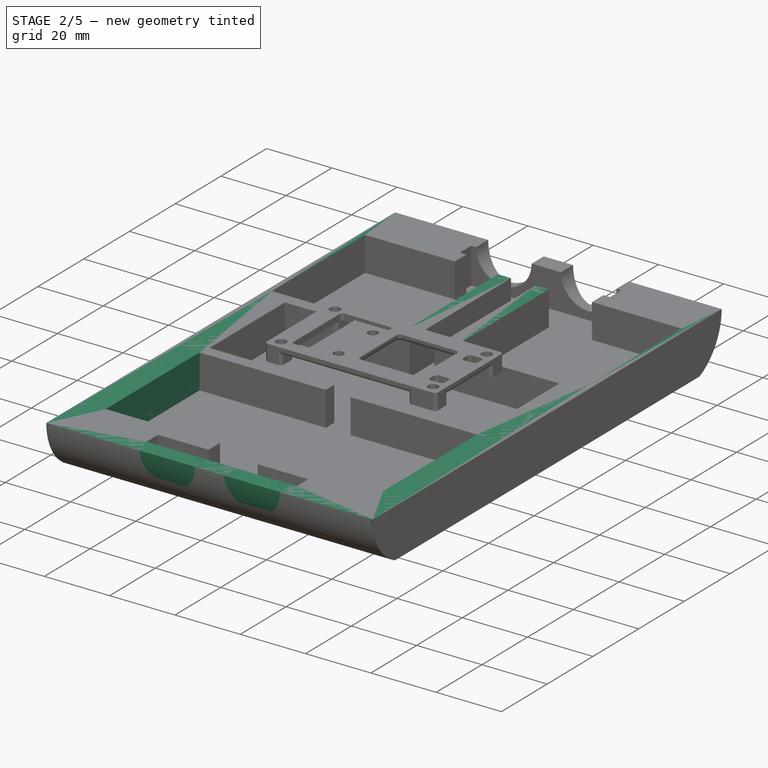
[diagram: stage 2 of 5 — iso view after this stage's code; geometry added in this stage tinted green]
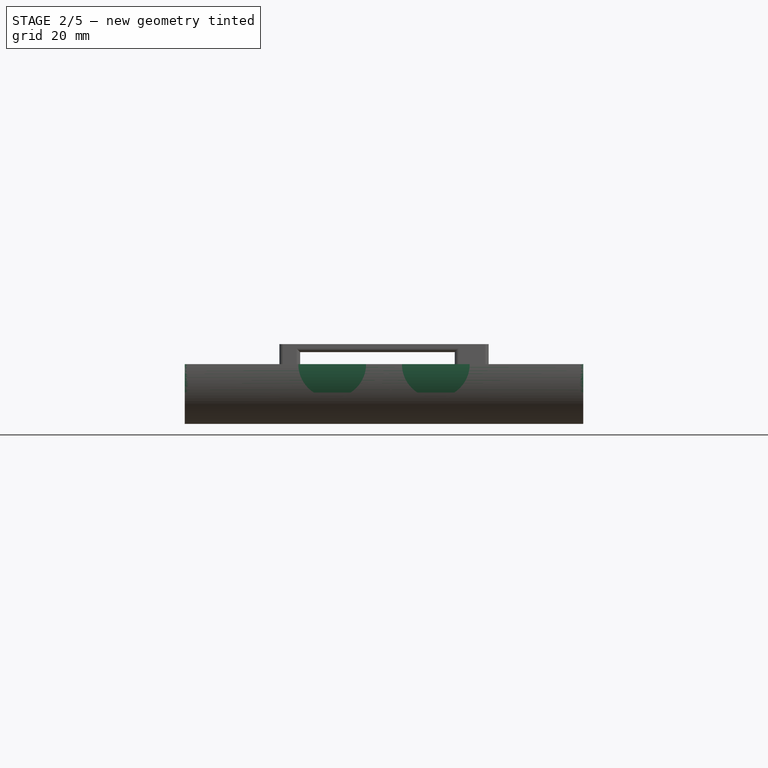
[diagram: stage 2 of 5 — front view after this stage's code; geometry added in this stage tinted green]
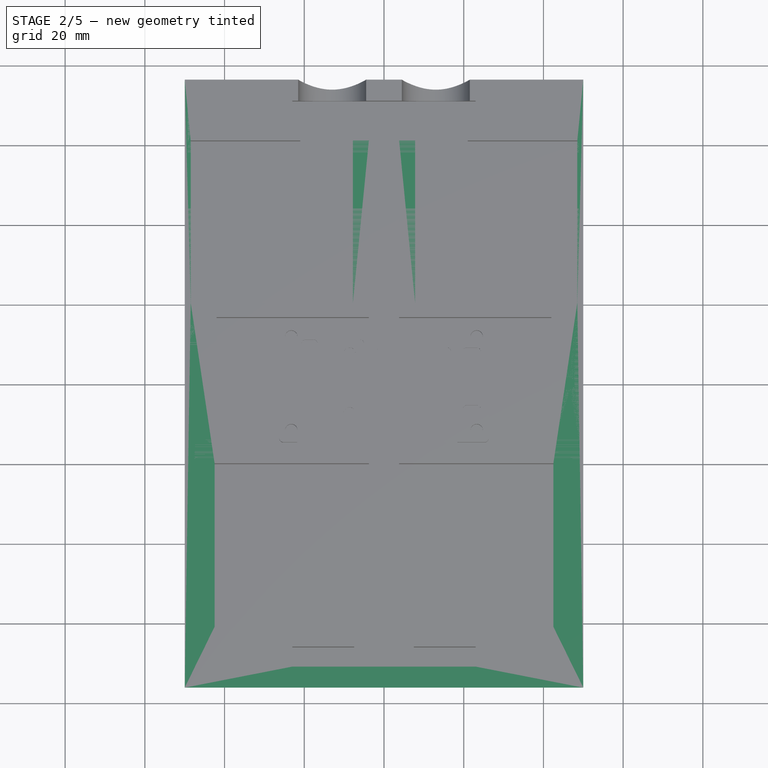
[diagram: stage 2 of 5 — top view after this stage's code; geometry added in this stage tinted green]
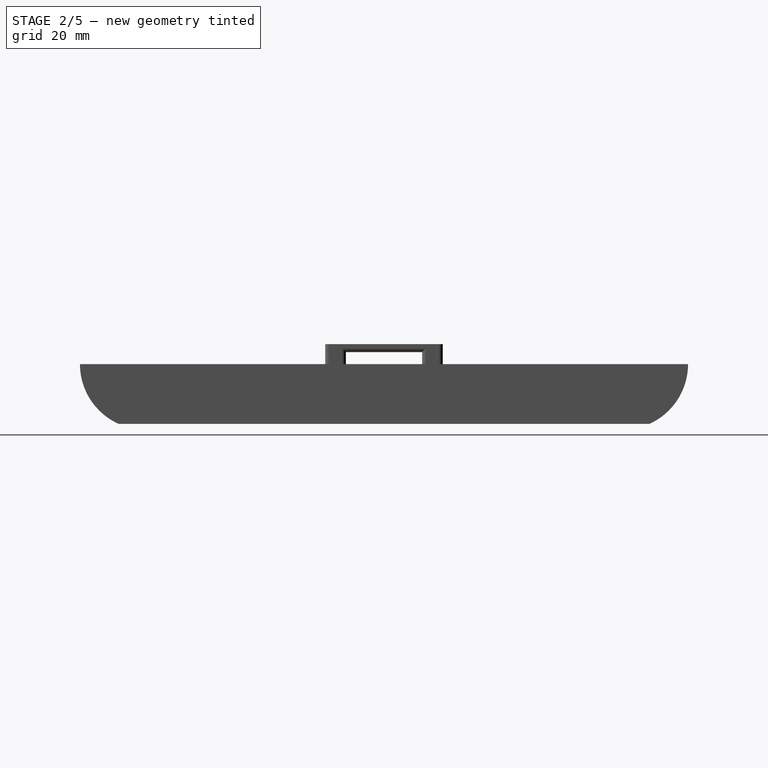
[diagram: stage 2 of 5 — right view after this stage's code; geometry added in this stage tinted green]
FEATURE [PartDesign::Body] Body002  label="support_gear_wheel"
  Group = -> [Sketch007,Pad003,Fillet007,Sketch008,Pad004,Sketch009,Pocket004,Sketch010,Pocket005,Fillet008,Fillet009]
  Origin = -> Origin002
  Tip = -> Fillet009
FEATURE [Sketcher::SketchObject] Sketch011  label="body_profile"
  MapMode = 5
  Placement = pos=(0,0,0) rot=(0.57735,0.57735,0.57735;2.0944rad)
  Support = -> [YZ_Plane003]
  sketch-geometry (38):
    g0: LineSegment [constr] StartX=-51 StartY=0 StartZ=0 EndX=51 EndY=0 EndZ=0
    g1: LineSegment [constr] StartX=-61 StartY=10 StartZ=0 EndX=-21 EndY=10 EndZ=0
    g2: LineSegment [constr] StartX=-21 StartY=10 StartZ=0 EndX=-21 EndY=-10 EndZ=0
    g3: LineSegment [constr] StartX=-21 StartY=-10 StartZ=0 EndX=-61 EndY=-10 EndZ=0
    g4: LineSegment [constr] StartX=-61 StartY=-10 StartZ=0 EndX=-61 EndY=10 EndZ=0
    g5: LineSegment [constr] StartX=-51 StartY=10 StartZ=0 EndX=-51 EndY=-10 EndZ=0
    g6: Circle [constr] CenterX=-51 CenterY=0 CenterZ=0 NormalX=0 NormalY=0 NormalZ=1 AngleXU=0 Radius=27.5
    g7: Circle [constr] CenterX=51 CenterY=0 CenterZ=0 NormalX=0 NormalY=0 NormalZ=1 AngleXU=0 Radius=27.5
    g8: LineSegment [constr] StartX=-83 StartY=8 StartZ=0 EndX=-83 EndY=-8 EndZ=0
    g9: LineSegment [constr] StartX=-83 StartY=-8 StartZ=0 EndX=-71 EndY=-8 EndZ=0
    g10: LineSegment [constr] StartX=-71 StartY=-8 StartZ=0 EndX=-71 EndY=-10.5 EndZ=0
    g11: LineSegment [constr] StartX=-71 StartY=-10.5 StartZ=0 EndX=-66 EndY=-10.5 EndZ=0
    g12: LineSegment [constr] StartX=-66 StartY=-10.5 StartZ=0 EndX=-66 EndY=10.5 EndZ=0
    g13: LineSegment [constr] StartX=-66 StartY=10.5 StartZ=0 EndX=-71 EndY=10.5 EndZ=0
    g14: LineSegment [constr] StartX=-71 StartY=10.5 StartZ=0 EndX=-71 EndY=8 EndZ=0
    g15: LineSegment [constr] StartX=-71 StartY=8 StartZ=0 EndX=-83 EndY=8 EndZ=0
    g16: LineSegment [constr] StartX=-71 StartY=8 StartZ=0 EndX=-71 EndY=-8 EndZ=0
    g17: LineSegment [constr] StartX=83 StartY=8 StartZ=0 EndX=71 EndY=8 EndZ=0
    g18: LineSegment [constr] StartX=71 StartY=8 StartZ=0 EndX=71 EndY=10.5 EndZ=0
    g19: LineSegment [constr] StartX=71 StartY=10.5 StartZ=0 EndX=66 EndY=10.5 EndZ=0
    g20: LineSegment [constr] StartX=66 StartY=10.5 StartZ=0 EndX=66 EndY=-10.5 EndZ=0
    g21: LineSegment [constr] StartX=66 StartY=-10.5 StartZ=0 EndX=71 EndY=-10.5 EndZ=0
    g22: LineSegment [constr] StartX=71 StartY=-10.5 StartZ=0 EndX=71 EndY=-8 EndZ=0
    g23: LineSegment [constr] StartX=71 StartY=-8 StartZ=0 EndX=83 EndY=-8 EndZ=0
    g24: LineSegment [constr] StartX=83 StartY=-8 StartZ=0 EndX=83 EndY=8 EndZ=0
    g25: LineSegment [constr] StartX=-66 StartY=0 StartZ=0 EndX=-51 EndY=0 EndZ=0
    g26: LineSegment [constr] StartX=51 StartY=0 StartZ=0 EndX=66 EndY=0 EndZ=0
    g27: LineSegment [constr] StartX=-51 StartY=0 StartZ=0 EndX=-78.5 EndY=0 EndZ=0
    g28: Circle [constr] CenterX=-51 CenterY=0 CenterZ=0 NormalX=0 NormalY=0 NormalZ=1 AngleXU=0 Radius=25.2834
    g29: LineSegment [constr] StartX=-71.3531 StartY=-15 StartZ=0 EndX=71.3531 EndY=-15 EndZ=0
    g30: LineSegment [constr] StartX=-71 StartY=-10.5 StartZ=0 EndX=-74 EndY=-10.5 EndZ=0
    g31: Circle [constr] CenterX=51 CenterY=0 CenterZ=0 NormalX=0 NormalY=0 NormalZ=1 AngleXU=0 Radius=25.2834
    g32: ArcOfCircle CenterX=-59.8214 CenterY=0 CenterZ=0 NormalX=0 NormalY=0 NormalZ=1 AngleXU=0 Radius=16.4619 StartAngle=3.14159 EndAngle=4.28776
    g33: LineSegment [constr] StartX=-71 StartY=-10.5 StartZ=0 EndX=-72.5 EndY=-10.5 EndZ=0
    g34: LineSegment [constr] StartX=66 StartY=0 StartZ=0 EndX=83 EndY=0 EndZ=0
    g35: ArcOfCircle CenterX=59.8214 CenterY=0 CenterZ=0 NormalX=0 NormalY=0 NormalZ=1 AngleXU=0 Radius=16.4619 StartAngle=5.13702 EndAngle=6.28319
    g36: LineSegment StartX=-66.6035 StartY=-15 StartZ=0 EndX=66.6035 EndY=-15 EndZ=0
    g37: LineSegment StartX=-76.2834 StartY=2e-15 StartZ=0 EndX=76.2834 EndY=-4e-15 EndZ=0
  constraints (114):
    c: Horizontal(g0)
    c: Symmetric(g0,g0,g-1)
    c: DistanceX(g0,g0) = 102
    c: Coincident(g1,g2)
    c: Coincident(g2,g3)
    c: Coincident(g3,g4)
    c: Coincident(g4,g1)
    c: Horizontal(g1)
    c: Horizontal(g3)
    c: Vertical(g2)
    c: Vertical(g4)
    c: PointOnObject(g5,g1)
    c: PointOnObject(g5,g3)
    c: Vertical(g5)
    c: DistanceX(g3,g5) = 10
    c: Symmetric(g5,g5,g0)
    c: DistanceY(g4,g4) = 20
    c: DistanceX(g1,g1) = 40
    c: Equal(g7,g6)
    c: Radius(g6) = 27.5
    c: Coincident(g6,g0)
    c: Coincident(g7,g0)
    c: Coincident(g8,g9)
    c: Horizontal(g9)
    c: Coincident(g9,g10)
    c: Vertical(g10)
    c: Coincident(g10,g11)
    c: Horizontal(g11)
    c: Coincident(g11,g12)
    c: Vertical(g12)
    c: Coincident(g12,g13)
    c: Horizontal(g13)
    c: Coincident(g13,g14)
    c: Vertical(g14)
    c: Coincident(g14,g15)
    c: Coincident(g15,g8)
    c: Horizontal(g15)
    c: DistanceY(g8,g8) = 16
    c: Equal(g10,g14)
    c: DistanceY(g12,g12) = 21
    c: DistanceX(g15,g15) = 12
    c: Coincident(g16,g14)
    c: Coincident(g16,g9)
    c: Vertical(g16)
    c: DistanceX(g13,g13) = 5
    c: Symmetric(g8,g8,g-1)
    c: DistanceX(g11,g3) = 5
    c: Horizontal(g17)
    c: Coincident(g17,g18)
    c: Vertical(g18)
    c: Coincident(g18,g19)
    c: Horizontal(g19)
    c: Coincident(g19,g20)
    c: Vertical(g20)
    c: Coincident(g20,g21)
    c: Horizontal(g21)
    c: Coincident(g21,g22)
    c: Coincident(g22,g23)
    c: Horizontal(g23)
    c: Coincident(g23,g24)
    c: Coincident(g24,g17)
    c: Equal(g17,g23)
    c: Equal(g19,g21)
    c: Equal(g18,g22)
    c: Equal(g20,g12)
    c: Equal(g24,g8)
    c: Equal(g15,g17)
    c: Equal(g21,g13)
    c: Symmetric(g17,g23,g-1)
    c: PointOnObject(g25,g12)
    c: Coincident(g25,g0)
    c: Horizontal(g25)
    c: Coincident(g26,g0)
    c: PointOnObject(g26,g20)
    c: Horizontal(g26)
    c: Equal(g26,g25)
    c: Coincident(g27,g0)
    c: PointOnObject(g27,g6)
    c: Horizontal(g27)
    c: Coincident(g28,g0)
    c: PointOnObject(g29,g28)
    c: Horizontal(g29)
    c: DistanceY(g29,g3) = 5
    c: Coincident(g30,g10)
    c: PointOnObject(g30,g28)
    c: Horizontal(g30)
    c: DistanceX(g30,g30) = 3
    c: Coincident(g31,g0)
    c: Equal(g31,g28)
    c: PointOnObject(g29,g31)
    c: PointOnObject(g32,g27)
    c: PointOnObject(g32,g28)
    c: PointOnObject(g32,g29)
    c: PointOnObject(g32,g27)
    c: Coincident(g33,g10)
    c: PointOnObject(g33,g32)
    c: DistanceX(g33,g33) = 1.5
    c: Horizontal(g33)
    c: Coincident(g34,g26)
    c: Horizontal(g34)
    c: PointOnObject(g35,g34)
    c: PointOnObject(g35,g31)
    c: PointOnObject(g35,g29)
    c: PointOnObject(g35,g34)
    c: Equal(g35,g32)
    c: PointOnObject(g34,g24)
    c: Coincident(g37,g32)
    c: Coincident(g36,g32)
    c: Coincident(g37,g35)
    c: Coincident(g36,g35)
    c: DistanceX(g37,g37) = 152.567
    c: DistanceX(g12,g19) = 132
    c: DistanceY(g30,g32) = 10.5
    c: DistanceY(g32,g32) = 15
FEATURE [PartDesign::Pad] Pad005
  Length = 100
  Length2 = 100
  Midplane = true
  Placement = pos=(0,0,0) rot=(0.57735,0.57735,0.57735;2.0944rad)
  Profile = -> Sketch011
  Type = 0
FEATURE [Sketcher::SketchObject] Sketch012  label="main_cut"
  MapMode = 5
  Placement = pos=(0,0,-6e-16) rot=(0,0,-1;1.5708rad)
  Support = -> [Pad005]
  sketch-geometry (39):
    g0: LineSegment StartX=-61 StartY=-7.8 StartZ=0 EndX=-20.3 EndY=-7.8 EndZ=0
    g1: LineSegment StartX=-20.3 StartY=-7.8 StartZ=0 EndX=-20.3 EndY=-48.5 EndZ=0
    g2: LineSegment StartX=-20.3 StartY=-48.5 StartZ=0 EndX=-61 EndY=-48.5 EndZ=0
    g3: LineSegment StartX=-61 StartY=-48.5 StartZ=0 EndX=-61 EndY=-7.8 EndZ=0
    g4: LineSegment StartX=-61 StartY=48.5 StartZ=0 EndX=-20.3 EndY=48.5 EndZ=0
    g5: LineSegment StartX=-20.3 StartY=48.5 StartZ=0 EndX=-20.3 EndY=7.8 EndZ=0
    g6: LineSegment StartX=-20.3 StartY=7.8 StartZ=0 EndX=-61 EndY=7.8 EndZ=0
    g7: LineSegment StartX=-61 StartY=7.8 StartZ=0 EndX=-61 EndY=48.5 EndZ=0
    g8: LineSegment [constr] StartX=-61 StartY=7.8 StartZ=0 EndX=-61 EndY=-7.8 EndZ=0
    g9: LineSegment [constr] StartX=-76.2835 StartY=50 StartZ=0 EndX=76.2835 EndY=50 EndZ=0
    g10: LineSegment [constr] StartX=76.2835 StartY=50 StartZ=0 EndX=76.2835 EndY=-50 EndZ=0
    g11: LineSegment [constr] StartX=76.2835 StartY=-50 StartZ=0 EndX=-76.2835 EndY=-50 EndZ=0
    g12: LineSegment [constr] StartX=-76.2835 StartY=-50 StartZ=0 EndX=-76.2835 EndY=50 EndZ=0
    g13: LineSegment [constr] StartX=-61 StartY=-48.5 StartZ=0 EndX=-61 EndY=-50 EndZ=0
    g14: LineSegment StartX=-66 StartY=3.8 StartZ=0 EndX=-16.65 EndY=3.8 EndZ=0
    g15: LineSegment StartX=-16.65 StartY=3.8 StartZ=0 EndX=-16.65 EndY=42 EndZ=0
    g16: LineSegment StartX=-16.65 StartY=42 StartZ=0 EndX=16.35 EndY=42 EndZ=0
    g17: LineSegment StartX=16.35 StartY=42 StartZ=0 EndX=16.35 EndY=3.8 EndZ=0
    g18: LineSegment StartX=16.35 StartY=3.8 StartZ=0 EndX=20 EndY=3.8 EndZ=0
    g19: LineSegment StartX=20 StartY=3.8 StartZ=0 EndX=20 EndY=42.5 EndZ=0
    g20: LineSegment StartX=20 StartY=42.5 StartZ=0 EndX=61 EndY=42.5 EndZ=0
    g21: LineSegment StartX=61 StartY=42.5 StartZ=0 EndX=61 EndY=-42.5 EndZ=0
    g22: LineSegment StartX=61 StartY=-42.5 StartZ=0 EndX=20 EndY=-42.5 EndZ=0
    g23: LineSegment StartX=20 StartY=-42.5 StartZ=0 EndX=20 EndY=-3.8 EndZ=0
    g24: LineSegment StartX=20 StartY=-3.8 StartZ=0 EndX=16.35 EndY=-3.8 EndZ=0
    g25: LineSegment StartX=16.35 StartY=-3.8 StartZ=0 EndX=16.35 EndY=-42 EndZ=0
    g26: LineSegment StartX=16.35 StartY=-42 StartZ=0 EndX=-16.65 EndY=-42 EndZ=0
    g27: LineSegment StartX=-16.65 StartY=-42 StartZ=0 EndX=-16.65 EndY=-3.8 EndZ=0
    g28: LineSegment StartX=-16.65 StartY=-3.8 StartZ=0 EndX=-66 EndY=-3.8 EndZ=0
    g29: LineSegment StartX=-66 StartY=-3.8 StartZ=0 EndX=-66 EndY=3.8 EndZ=0
    g30: LineSegment [constr] StartX=-61 StartY=48.5 StartZ=0 EndX=-76.2835 EndY=48.5 EndZ=0
    g31: LineSegment [constr] StartX=61 StartY=42.5 StartZ=0 EndX=76.2835 EndY=42.5 EndZ=0
    g32: LineSegment [constr] StartX=-51 StartY=0 StartZ=0 EndX=51 EndY=0 EndZ=0
    g33: LineSegment [constr] StartX=-51 StartY=-48.5 StartZ=0 EndX=-51 EndY=0 EndZ=0
    g34: LineSegment [constr] StartX=-20.3 StartY=7.8 StartZ=0 EndX=-16.65 EndY=7.8 EndZ=0
    g35: LineSegment [constr] StartX=16.35 StartY=42 StartZ=0 EndX=16.35 EndY=50 EndZ=0
    g36: LineSegment [constr] StartX=-20.3 StartY=7.8 StartZ=0 EndX=-20.3 EndY=3.8 EndZ=0
    g37: LineSegment [constr] StartX=-61 StartY=7.8 StartZ=0 EndX=-66 EndY=7.8 EndZ=0
    g38: LineSegment [constr] StartX=-66 StartY=7.8 StartZ=0 EndX=-66 EndY=3.8 EndZ=0
  constraints (113):
    c: Coincident(g0,g1)
    c: Coincident(g1,g2)
    c: Coincident(g2,g3)
    c: Coincident(g3,g0)
    c: Horizontal(g0)
    c: Horizontal(g2)
    c: Vertical(g1)
    c: Vertical(g3)
    c: Coincident(g4,g5)
    c: Coincident(g5,g6)
    c: Coincident(g6,g7)
    c: Coincident(g7,g4)
    c: Horizontal(g4)
    c: Horizontal(g6)
    c: Vertical(g5)
    c: Vertical(g7)
    c: Equal(g4,g7)
    c: Equal(g7,g3)
    c: Equal(g3,g0)
    c: DistanceX(g4,g4) = 40.7
    c: Coincident(g8,g6)
    c: Coincident(g8,g0)
    c: Symmetric(g6,g0,g-1)
    c: Coincident(g9,g10)
    c: Coincident(g10,g11)
    c: Coincident(g11,g12)
    c: Coincident(g12,g9)
    c: Horizontal(g9)
    c: Horizontal(g11)
    c: Vertical(g10)
    c: Vertical(g12)
    c: DistanceX(g11,g11) = 152.567
    c: DistanceY(g12,g12) = 100
    c: Symmetric(g9,g10,g-1)
    c: Coincident(g13,g2)
    c: PointOnObject(g13,g11)
    c: Vertical(g13)
    c: DistanceY(g13,g13) = 1.5
    c: Horizontal(g14)
    c: Coincident(g14,g15)
    c: Vertical(g15)
    c: Coincident(g15,g16)
    c: Horizontal(g16)
    c: Coincident(g16,g17)
    c: Vertical(g17)
    c: Coincident(g17,g18)
    c: Horizontal(g18)
    c: Coincident(g18,g19)
    c: Vertical(g19)
    c: Coincident(g19,g20)
    c: Horizontal(g20)
    c: Coincident(g20,g21)
    c: Vertical(g21)
    c: Coincident(g21,g22)
    c: Horizontal(g22)
    c: Coincident(g22,g23)
    c: Vertical(g23)
    c: Coincident(g23,g24)
    c: Horizontal(g24)
    c: Coincident(g24,g25)
    c: Vertical(g25)
    c: Coincident(g25,g26)
    c: Horizontal(g26)
    c: Coincident(g26,g27)
    c: Coincident(g27,g28)
    c: Horizontal(g28)
    c: Coincident(g28,g29)
    c: Coincident(g29,g14)
    c: Equal(g14,g28)
    c: Equal(g16,g26)
    c: Equal(g15,g27)
    c: Equal(g27,g17)
    c: Equal(g17,g25)
    c: Equal(g18,g24)
    c: Equal(g19,g23)
    c: Equal(g20,g22)
    c: Symmetric(g14,g28,g-1)
    c: DistanceX(g20,g20) = 41
    c: Coincident(g30,g4)
    c: PointOnObject(g30,g12)
    c: Horizontal(g30)
    c: Coincident(g31,g20)
    c: PointOnObject(g31,g10)
    c: Horizontal(g31)
    c: Equal(g31,g30)
    c: Horizontal(g32)
    c: DistanceX(g32,g32) = 102
    c: Symmetric(g32,g32,g-1)
    c: PointOnObject(g33,g2)
    c: Coincident(g33,g32)
    c: Vertical(g33)
    c: DistanceX(g2,g33) = 10
    c: Coincident(g34,g5)
    c: PointOnObject(g34,g15)
    c: Horizontal(g34)
    c: Equal(g34,g18)
    c: DistanceX(g16,g16) = 33
    c: Coincident(g35,g16)
    c: PointOnObject(g35,g9)
    c: Vertical(g35)
    c: DistanceY(g35,g35) = 8
    c: DistanceY(g26,g15) = 84
    c: DistanceY(g21,g21) = 85
    c: Coincident(g36,g5)
    c: PointOnObject(g36,g14)
    c: Vertical(g36)
    c: DistanceY(g36,g36) = 4
    c: Coincident(g37,g6)
    c: Horizontal(g37)
    c: Coincident(g38,g37)
    c: Coincident(g38,g14)
    c: Vertical(g38)
    c: DistanceX(g37,g37) = 5
FEATURE [PartDesign::Pocket] Pocket006
  BaseFeature = -> Pad005
  Length = 10.5
  Length2 = 100
  Placement = pos=(0,0,0) rot=(0.57735,0.57735,0.57735;2.0944rad)
  Profile = -> Sketch012
  Type = 0
FEATURE [Sketcher::SketchObject] Sketch013  label="sonar_board_cut"
  MapMode = 5
  Placement = pos=(0,0,-6e-16) rot=(0,0,-1;1.5708rad)
  Support = -> [Pocket006]
  sketch-geometry (19):
    g0: LineSegment StartX=-71 StartY=23 StartZ=0 EndX=-66 EndY=23 EndZ=0
    g1: LineSegment [constr] StartX=-66 StartY=23 StartZ=0 EndX=-66 EndY=-23 EndZ=0
    g2: LineSegment StartX=-66 StartY=-23 StartZ=0 EndX=-71 EndY=-23 EndZ=0
    g3: LineSegment StartX=-71 StartY=-23 StartZ=0 EndX=-71 EndY=23 EndZ=0
    g4: LineSegment StartX=66 StartY=23 StartZ=0 EndX=71 EndY=23 EndZ=0
    g5: LineSegment StartX=71 StartY=23 StartZ=0 EndX=71 EndY=-23 EndZ=0
    g6: LineSegment StartX=71 StartY=-23 StartZ=0 EndX=66 EndY=-23 EndZ=0
    g7: LineSegment [constr] StartX=66 StartY=-23 StartZ=0 EndX=66 EndY=23 EndZ=0
    g8: LineSegment [constr] StartX=-66 StartY=0 StartZ=0 EndX=66 EndY=0 EndZ=0
    g9: LineSegment StartX=66 StartY=23 StartZ=0 EndX=66 EndY=7.5 EndZ=0
    g10: LineSegment StartX=66 StartY=7.5 StartZ=0 EndX=61 EndY=7.5 EndZ=0
    g11: LineSegment StartX=61 StartY=7.5 StartZ=0 EndX=61 EndY=-7.5 EndZ=0
    g12: LineSegment StartX=61 StartY=-7.5 StartZ=0 EndX=66 EndY=-7.5 EndZ=0
    g13: LineSegment StartX=66 StartY=-7.5 StartZ=0 EndX=66 EndY=-23 EndZ=0
    g14: LineSegment StartX=-66 StartY=23 StartZ=0 EndX=-66 EndY=21 EndZ=0
    g15: LineSegment StartX=-66 StartY=21 StartZ=0 EndX=-61 EndY=21 EndZ=0
    g16: LineSegment StartX=-61 StartY=21 StartZ=0 EndX=-61 EndY=-21 EndZ=0
    g17: LineSegment StartX=-61 StartY=-21 StartZ=0 EndX=-66 EndY=-21 EndZ=0
    g18: LineSegment StartX=-66 StartY=-21 StartZ=0 EndX=-66 EndY=-23 EndZ=0
  constraints (53):
    c: Coincident(g0,g1)
    c: Coincident(g1,g2)
    c: Coincident(g2,g3)
    c: Coincident(g3,g0)
    c: Horizontal(g0)
    c: Horizontal(g2)
    c: Vertical(g1)
    c: Coincident(g4,g5)
    c: Coincident(g5,g6)
    c: Coincident(g6,g7)
    c: Coincident(g7,g4)
    c: Horizontal(g4)
    c: Horizontal(g6)
    c: Vertical(g7)
    c: Equal(g3,g7)
    c: Equal(g0,g4)
    c: Symmetric(g0,g2,g-1)
    c: Symmetric(g4,g5,g-1)
    c: DistanceY(g3,g3) = 46
    c: DistanceX(g0,g0) = 5
    c: Horizontal(g8)
    c: Symmetric(g8,g8,g-1)
    c: PointOnObject(g8,g1)
    c: PointOnObject(g8,g7)
    c: DistanceX(g8,g8) = 132
    c: Vertical(g9)
    c: Coincident(g9,g10)
    c: Coincident(g10,g11)
    c: Vertical(g11)
    c: Coincident(g11,g12)
    c: Horizontal(g12)
    c: Coincident(g12,g13)
    c: Horizontal(g10)
    c: Equal(g10,g12)
    c: Coincident(g9,g4)
    c: Coincident(g13,g6)
    c: Equal(g13,g9)
    c: DistanceY(g11,g11) = 15
    c: DistanceX(g10,g10) = 5
    c: Vertical(g14)
    c: Coincident(g14,g15)
    c: Horizontal(g15)
    c: Coincident(g15,g16)
    c: Vertical(g16)
    c: Coincident(g16,g17)
    c: Horizontal(g17)
    c: Coincident(g17,g18)
    c: Coincident(g18,g2)
    c: Coincident(g14,g0)
    c: Equal(g14,g18)
    c: Equal(g15,g17)
    c: DistanceX(g15,g15) = 5
    c: DistanceY(g14,g0) = 2
FEATURE [Sketcher::SketchObject] Sketch016  label="extra_top_axis"
  MapMode = 5
  Placement = pos=(0,0,-6e-16) rot=(0,0,-1;1.5708rad)
  Support = -> [Pocket006]
  sketch-geometry (11):
    g0: LineSegment [constr] StartX=-51 StartY=0 StartZ=0 EndX=51 EndY=0 EndZ=0
    g1: LineSegment [constr] StartX=51 StartY=50 StartZ=0 EndX=51 EndY=-50 EndZ=0
    g2: LineSegment StartX=20 StartY=42.5 StartZ=0 EndX=61 EndY=42.5 EndZ=0
    g3: LineSegment StartX=61 StartY=42.5 StartZ=0 EndX=61 EndY=50 EndZ=0
    g4: LineSegment StartX=61 StartY=50 StartZ=0 EndX=20 EndY=50 EndZ=0
    g5: LineSegment StartX=20 StartY=50 StartZ=0 EndX=20 EndY=42.5 EndZ=0
    g6: LineSegment StartX=20 StartY=-42.5 StartZ=0 EndX=61 EndY=-42.5 EndZ=0
    g7: LineSegment StartX=61 StartY=-42.5 StartZ=0 EndX=61 EndY=-50 EndZ=0
    g8: LineSegment StartX=61 StartY=-50 StartZ=0 EndX=20 EndY=-50 EndZ=0
    g9: LineSegment StartX=20 StartY=-50 StartZ=0 EndX=20 EndY=-42.5 EndZ=0
    g10: LineSegment [constr] StartX=61 StartY=-42.5 StartZ=0 EndX=61 EndY=42.5 EndZ=0
  constraints (32):
    c: Horizontal(g0)
    c: DistanceX(g0,g0) = 102
    c: Symmetric(g0,g0,g-1)
    c: Vertical(g1)
    c: DistanceY(g1,g1) = 100
    c: Symmetric(g1,g1,g0)
    c: Coincident(g2,g3)
    c: Coincident(g3,g4)
    c: Coincident(g4,g5)
    c: Coincident(g5,g2)
    c: Horizontal(g2)
    c: Horizontal(g4)
    c: Vertical(g3)
    c: Vertical(g5)
    c: DistanceY(g3,g3) = 7.5
    c: PointOnObject(g1,g4)
    c: DistanceX(g4,g4) = 41
    c: DistanceX(g1,g3) = 10
    c: Coincident(g6,g7)
    c: Coincident(g7,g8)
    c: Coincident(g8,g9)
    c: Coincident(g9,g6)
    c: Horizontal(g6)
    c: Horizontal(g8)
    c: Vertical(g7)
    c: Vertical(g9)
    c: PointOnObject(g1,g8)
    c: Equal(g7,g3)
    c: Equal(g2,g6)
    c: Coincident(g10,g6)
    c: Coincident(g10,g2)
    c: Vertical(g10)
FEATURE [PartDesign::Pocket] Pocket007
  BaseFeature = -> Pocket006
  Length = 11
  Length2 = 100
  Placement = pos=(0,0,0) rot=(0.57735,0.57735,0.57735;2.0944rad)
  Profile = -> Sketch013
  Type = 0
FEATURE [Sketcher::SketchObject] Sketch014  label="sonar_cut_back"
  MapMode = 5
  Placement = pos=(3.12e-14,71,-5.04e-14) rot=(0.57735,0.57735,-0.57735;2.0944rad)
  Support = -> [Pocket007]
  sketch-geometry (4):
    g0: ArcOfCircle CenterX=0 CenterY=13 CenterZ=0 NormalX=0 NormalY=0 NormalZ=1 AngleXU=0 Radius=8.5 StartAngle=4.71239 EndAngle=7.85398
    g1: ArcOfCircle CenterX=0 CenterY=-13 CenterZ=0 NormalX=0 NormalY=0 NormalZ=1 AngleXU=0 Radius=8.5 StartAngle=4.71239 EndAngle=7.85398
    g2: LineSegment StartX=2.6e-15 StartY=-4.5 StartZ=0 EndX=-1.6e-15 EndY=-21.5 EndZ=0
    g3: LineSegment StartX=2.6e-15 StartY=21.5 StartZ=0 EndX=-1.6e-15 EndY=4.5 EndZ=0
  constraints (13):
    c: PointOnObject(g0,g-2)
    c: PointOnObject(g0,g-2)
    c: PointOnObject(g0,g-2)
    c: PointOnObject(g1,g-2)
    c: PointOnObject(g1,g-2)
    c: Equal(g1,g0)
    c: Radius(g0) = 8.5
    c: Symmetric(g1,g0,g-1)
    c: DistanceY(g1,g0) = 9
    c: Coincident(g3,g0)
    c: Coincident(g3,g0)
    c: Coincident(g2,g1)
    c: Coincident(g2,g1)
FEATURE [Sketcher::SketchObject] Sketch015  label="sonar_cut_front"
  MapMode = 5
  Placement = pos=(-3.12e-14,-71,5.04e-14) rot=(0.57735,0.57735,0.57735;4.18879rad)
  Support = -> [Pocket007]
  sketch-geometry (4):
    g0: ArcOfCircle CenterX=0 CenterY=13 CenterZ=0 NormalX=0 NormalY=0 NormalZ=1 AngleXU=0 Radius=8.5 StartAngle=1.5708 EndAngle=4.71239
    g1: ArcOfCircle CenterX=0 CenterY=-13 CenterZ=0 NormalX=0 NormalY=0 NormalZ=1 AngleXU=0 Radius=8.5 StartAngle=1.5708 EndAngle=4.71239
    g2: LineSegment StartX=5e-16 StartY=-4.5 StartZ=0 EndX=-1.6e-15 EndY=-21.5 EndZ=0
    g3: LineSegment StartX=5e-16 StartY=21.5 StartZ=0 EndX=-1.6e-15 EndY=4.5 EndZ=0
  constraints (13):
    c: Coincident(g2,g1)
    c: Coincident(g2,g1)
    c: Coincident(g3,g0)
    c: Coincident(g3,g0)
    c: PointOnObject(g1,g-2)
    c: PointOnObject(g0,g-2)
    c: PointOnObject(g0,g-2)
    c: PointOnObject(g1,g-2)
    c: PointOnObject(g1,g-2)
    c: Symmetric(g1,g0,g-1)
    c: Equal(g1,g0)
    c: DistanceY(g1,g0) = 9
    c: Radius(g0) = 8.5
FEATURE [PartDesign::Pocket] Pocket008
  BaseFeature = -> Pocket007
  Length = 7
  Length2 = 100
  Placement = pos=(0,0,0) rot=(0.57735,0.57735,0.57735;2.0944rad)
  Profile = -> Sketch014
  Type = 0
FEATURE [PartDesign::Pocket] Pocket022
  BaseFeature = -> Pocket021
  Length = 5
  Length2 = 100
  Placement = pos=(0,0,0) rot=(0.57735,0.57735,0.57735;2.0944rad)
  Profile = -> Sketch031
  Type = 0
FEATURE [PartDesign::Pocket] Pocket023
  BaseFeature = -> Pocket022
  Length = 10
  Length2 = 100
  Placement = pos=(0,0,0) rot=(0.57735,0.57735,0.57735;2.0944rad)
  Profile = -> Sketch032
  Type = 0
FEATURE [PartDesign::Pocket] Pocket024
  BaseFeature = -> Pocket023
  Length = 5
  Length2 = 100
  Placement = pos=(0,0,0) rot=(0.57735,0.57735,0.57735;2.0944rad)
  Profile = -> Sketch034
  Type = 1
FEATURE [PartDesign::Pocket] Pocket025
  BaseFeature = -> Pocket024
  Length = 2
  Length2 = 100
  Placement = pos=(0,0,0) rot=(0.57735,0.57735,0.57735;2.0944rad)
  Profile = -> Sketch036
  Type = 0
FEATURE [PartDesign::Fillet] Fillet013
  Base = -> Pocket025 [Edge160,Edge162,Edge90,Edge88]
  BaseFeature = -> Pocket025
  Placement = pos=(0,0,0) rot=(0.57735,0.57735,0.57735;2.0944rad)
  Radius = 2
FEATURE [Sketcher::SketchObject] Sketch037  label="inside_hole"
  MapMode = 5
  Placement = pos=(4.1e-15,-6.2e-15,-10.5) rot=(0,0,-1;1.5708rad)
  Support = -> [Fillet013]
  sketch-geometry (4):
    g0: LineSegment StartX=-12 StartY=36 StartZ=0 EndX=60 EndY=36 EndZ=0
    g1: LineSegment StartX=60 StartY=36 StartZ=0 EndX=60 EndY=-36 EndZ=0
    g2: LineSegment StartX=60 StartY=-36 StartZ=0 EndX=-12 EndY=-36 EndZ=0
    g3: LineSegment StartX=-12 StartY=-36 StartZ=0 EndX=-12 EndY=36 EndZ=0
  constraints (11):
    c: Coincident(g0,g1)
    c: Coincident(g1,g2)
    c: Coincident(g2,g3)
    c: Coincident(g3,g0)
    c: Horizontal(g0)
    c: Horizontal(g2)
    c: Vertical(g1)
    c: DistanceY(g3,g3) = 72
    c: Symmetric(g0,g2,g-1)
    c: DistanceX(g0,g0) = 72
    c: DistanceX(g-1,g0) = 60
FEATURE [PartDesign::Pocket] Pocket026
  BaseFeature = -> Fillet013
  Length = 2.5
  Length2 = 11
  Placement = pos=(0,0,0) rot=(0.57735,0.57735,0.57735;2.0944rad)
  Profile = -> Sketch037
  Type = 4
FEATURE [Sketcher::SketchObject] Sketch038  label="outside_hole"
  MapMode = 5
  Placement = pos=(4.2e-15,-6.3e-15,-15) rot=(0.707107,0.707107,0;3.14159rad)
  Support = -> [Pocket026]
  sketch-geometry (4):
    g0: LineSegment StartX=-64 StartY=40 StartZ=0 EndX=16 EndY=40 EndZ=0
    g1: LineSegment StartX=16 StartY=40 StartZ=0 EndX=16 EndY=-40 EndZ=0
    g2: LineSegment StartX=16 StartY=-40 StartZ=0 EndX=-64 EndY=-40 EndZ=0
    g3: LineSegment StartX=-64 StartY=-40 StartZ=0 EndX=-64 EndY=40 EndZ=0
  constraints (11):
    c: Coincident(g0,g1)
    c: Coincident(g1,g2)
    c: Coincident(g2,g3)
    c: Coincident(g3,g0)
    c: Horizontal(g0)
    c: Horizontal(g2)
    c: Vertical(g1)
    c: DistanceY(g3,g3) = 80
    c: Symmetric(g0,g2,g-1)
    c: DistanceX(g0,g0) = 80
    c: DistanceX(g0,g-1) = 64
FEATURE [PartDesign::Pocket] Pocket027
  BaseFeature = -> Pocket026
  Length = 2.5
  Length2 = 100
  Placement = pos=(0,0,0) rot=(0.57735,0.57735,0.57735;2.0944rad)
  Profile = -> Sketch038
  Type = 0
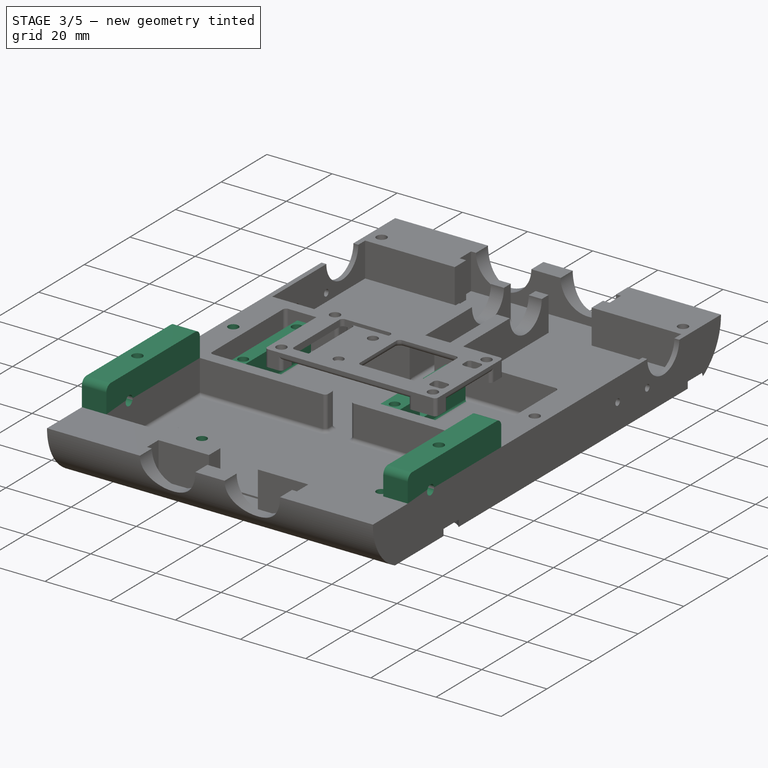
[diagram: stage 3 of 5 — iso view after this stage's code; geometry added in this stage tinted green]
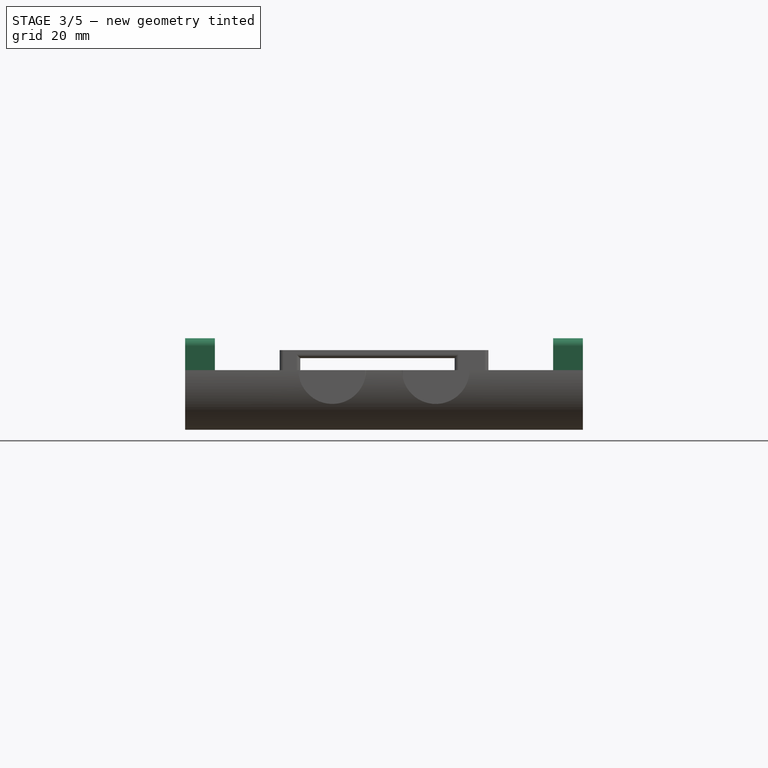
[diagram: stage 3 of 5 — front view after this stage's code; geometry added in this stage tinted green]
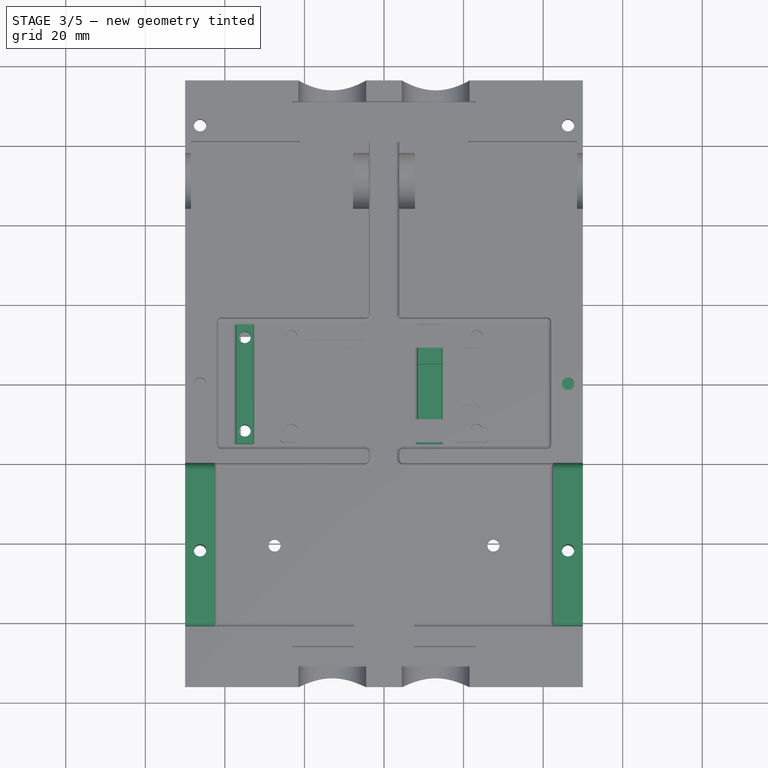
[diagram: stage 3 of 5 — top view after this stage's code; geometry added in this stage tinted green]
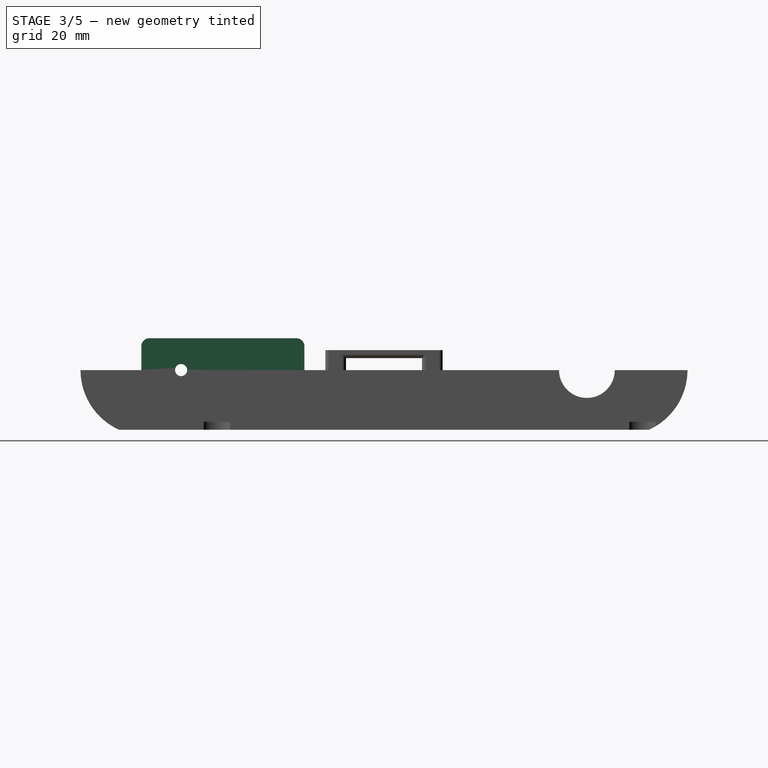
[diagram: stage 3 of 5 — right view after this stage's code; geometry added in this stage tinted green]
FEATURE [PartDesign::Pocket] Pocket009
  BaseFeature = -> Pocket008
  Length = 7
  Length2 = 100
  Placement = pos=(0,0,0) rot=(0.57735,0.57735,0.57735;2.0944rad)
  Profile = -> Sketch015
  Type = 0
FEATURE [PartDesign::Pad] Pad006
  BaseFeature = -> Pocket009
  Length = 8
  Length2 = 100
  Placement = pos=(0,0,0) rot=(0.57735,0.57735,0.57735;2.0944rad)
  Profile = -> Sketch016
  Type = 0
FEATURE [Sketcher::SketchObject] Sketch017  label="axis_cut"
  MapMode = 5
  Placement = pos=(50,-1.1e-14,4.7e-14) rot=(0.57735,0.57735,0.57735;2.0944rad)
  Support = -> [Pad006]
  sketch-geometry (4):
    g0: LineSegment [constr] StartX=-51 StartY=0 StartZ=0 EndX=51 EndY=0 EndZ=0
    g1: Circle CenterX=-51 CenterY=0 CenterZ=0 NormalX=0 NormalY=0 NormalZ=1 AngleXU=0 Radius=1.52
    g2: ArcOfCircle CenterX=51 CenterY=0 CenterZ=0 NormalX=0 NormalY=0 NormalZ=1 AngleXU=0 Radius=7 StartAngle=3.14159 EndAngle=6.28319
    g3: LineSegment StartX=44 StartY=4e-15 StartZ=0 EndX=58 EndY=-1.7e-15 EndZ=0
  constraints (11):
    c: Horizontal(g0)
    c: DistanceX(g0,g0) = 102
    c: Symmetric(g0,g0,g-1)
    c: Coincident(g1,g0)
    c: Radius(g1) = 1.52
    c: Coincident(g2,g0)
    c: PointOnObject(g2,g0)
    c: PointOnObject(g2,g-1)
    c: Radius(g2) = 7
    c: Coincident(g3,g2)
    c: Coincident(g3,g2)
FEATURE [PartDesign::Pocket] Pocket010
  BaseFeature = -> Pad006
  Length = 5
  Length2 = 100
  Placement = pos=(0,0,0) rot=(0.57735,0.57735,0.57735;2.0944rad)
  Profile = -> Sketch017
  Type = 1
FEATURE [Sketcher::SketchObject] Sketch018  label="left_side"
  MapMode = 5
  Placement = pos=(50,-1.1e-14,1.1e-14) rot=(0.57735,0.57735,0.57735;2.0944rad)
  Support = -> [Pocket010]
  sketch-geometry (12):
    g0: LineSegment [constr] StartX=-51 StartY=0 StartZ=0 EndX=51 EndY=0 EndZ=0
    g1: LineSegment [constr] StartX=21 StartY=10 StartZ=0 EndX=61 EndY=10 EndZ=0
    g2: LineSegment [constr] StartX=61 StartY=10 StartZ=0 EndX=61 EndY=-10 EndZ=0
    g3: LineSegment [constr] StartX=61 StartY=-10 StartZ=0 EndX=21 EndY=-10 EndZ=0
    g4: LineSegment [constr] StartX=21 StartY=-10 StartZ=0 EndX=21 EndY=10 EndZ=0
    g5: LineSegment [constr] StartX=51 StartY=10 StartZ=0 EndX=51 EndY=-10 EndZ=0
    g6: Circle CenterX=31 CenterY=-7 CenterZ=0 NormalX=0 NormalY=0 NormalZ=1 AngleXU=0 Radius=1
    g7: Circle CenterX=44 CenterY=-8 CenterZ=0 NormalX=0 NormalY=0 NormalZ=1 AngleXU=0 Radius=1
    g8: LineSegment StartX=-9.5 StartY=0 StartZ=0 EndX=9.5 EndY=0 EndZ=0
    g9: LineSegment StartX=9.5 StartY=0 StartZ=0 EndX=9.5 EndY=-6.5 EndZ=0
    g10: LineSegment StartX=9.5 StartY=-6.5 StartZ=0 EndX=-9.5 EndY=-6.5 EndZ=0
    g11: LineSegment StartX=-9.5 StartY=-6.5 StartZ=0 EndX=-9.5 EndY=0 EndZ=0
  constraints (35):
    c: Horizontal(g0)
    c: DistanceX(g0,g0) = 102
    c: Symmetric(g0,g0,g-1)
    c: Coincident(g1,g2)
    c: Coincident(g2,g3)
    c: Coincident(g3,g4)
    c: Coincident(g4,g1)
    c: Horizontal(g1)
    c: Horizontal(g3)
    c: Vertical(g2)
    c: Vertical(g4)
    c: PointOnObject(g5,g1)
    c: PointOnObject(g5,g3)
    c: Vertical(g5)
    c: DistanceX(g5,g1) = 10
    c: DistanceX(g1,g1) = 40
    c: DistanceY(g4,g4) = 20
    c: Symmetric(g5,g5,g0)
    c: Equal(g6,g7)
    c: Radius(g6) = 1
    c: DistanceX(g3,g7) = 23
    c: DistanceY(g3,g7) = 2
    c: DistanceX(g6,g7) = 13
    c: DistanceY(g3,g6) = 3
    c: Coincident(g8,g9)
    c: Coincident(g9,g10)
    c: Coincident(g10,g11)
    c: Coincident(g11,g8)
    c: Horizontal(g8)
    c: Horizontal(g10)
    c: Vertical(g9)
    c: Vertical(g11)
    c: Symmetric(g8,g8,g-1)
    c: DistanceY(g11,g11) = 6.5
    c: DistanceX(g10,g10) = 19
FEATURE [PartDesign::Pocket] Pocket011
  BaseFeature = -> Pocket010
  Length = 9
  Length2 = 100
  Placement = pos=(0,0,0) rot=(0.57735,0.57735,0.57735;2.0944rad)
  Profile = -> Sketch018
  Type = 0
FEATURE [Sketcher::SketchObject] Sketch019  label="right_side"
  MapMode = 5
  Placement = pos=(-50,1.1e-14,-1.1e-14) rot=(0.57735,0.57735,-0.57735;4.18879rad)
  Support = -> [Pocket011]
  sketch-geometry (8):
    g0: LineSegment [constr] StartX=-51 StartY=0 StartZ=0 EndX=51 EndY=0 EndZ=0
    g1: LineSegment [constr] StartX=21 StartY=10 StartZ=0 EndX=61 EndY=10 EndZ=0
    g2: LineSegment [constr] StartX=61 StartY=10 StartZ=0 EndX=61 EndY=-10 EndZ=0
    g3: LineSegment [constr] StartX=61 StartY=-10 StartZ=0 EndX=21 EndY=-10 EndZ=0
    g4: LineSegment [constr] StartX=21 StartY=-10 StartZ=0 EndX=21 EndY=10 EndZ=0
    g5: LineSegment [constr] StartX=51 StartY=10 StartZ=0 EndX=51 EndY=-10 EndZ=0
    g6: Circle CenterX=31 CenterY=7 CenterZ=0 NormalX=0 NormalY=0 NormalZ=1 AngleXU=0 Radius=1
    g7: Circle CenterX=44 CenterY=8 CenterZ=0 NormalX=0 NormalY=0 NormalZ=1 AngleXU=0 Radius=1
  constraints (24):
    c: Horizontal(g0)
    c: DistanceX(g0,g0) = 102
    c: Symmetric(g0,g0,g-1)
    c: Coincident(g1,g2)
    c: Coincident(g2,g3)
    c: Coincident(g3,g4)
    c: Coincident(g4,g1)
    c: Horizontal(g1)
    c: Horizontal(g3)
    c: Vertical(g2)
    c: Vertical(g4)
    c: PointOnObject(g5,g1)
    c: PointOnObject(g5,g3)
    c: Vertical(g5)
    c: DistanceX(g5,g1) = 10
    c: DistanceX(g1,g1) = 40
    c: DistanceY(g4,g4) = 20
    c: Symmetric(g5,g5,g0)
    c: Equal(g6,g7)
    c: Radius(g6) = 1
    c: DistanceX(g3,g7) = 23
    c: DistanceX(g6,g7) = 13
    c: DistanceY(g6,g1) = 3
    c: DistanceY(g7,g1) = 2
FEATURE [PartDesign::Pocket] Pocket012
  BaseFeature = -> Pocket011
  Length = 5
  Length2 = 100
  Placement = pos=(0,0,0) rot=(0.57735,0.57735,0.57735;2.0944rad)
  Profile = -> Sketch019
  Type = 0
FEATURE [Sketcher::SketchObject] Sketch020  label="esp32_stand"
  MapMode = 5
  Placement = pos=(4.1e-15,-6.2e-15,-10.5) rot=(0,0,-1;1.5708rad)
  Support = -> [Pocket012]
  sketch-geometry (24):
    g0: LineSegment [constr] StartX=-11.75 StartY=11.5 StartZ=0 EndX=11.75 EndY=11.5 EndZ=0
    g1: LineSegment [constr] StartX=11.75 StartY=11.5 StartZ=0 EndX=11.75 EndY=-35 EndZ=0
    g2: LineSegment [constr] StartX=11.75 StartY=-35 StartZ=0 EndX=-11.75 EndY=-35 EndZ=0
    g3: LineSegment [constr] StartX=-11.75 StartY=-35 StartZ=0 EndX=-11.75 EndY=11.5 EndZ=0
    g4: Circle CenterX=-11.75 CenterY=11.5 CenterZ=0 NormalX=0 NormalY=0 NormalZ=1 AngleXU=0 Radius=1.5
    g5: Circle CenterX=11.75 CenterY=11.5 CenterZ=0 NormalX=0 NormalY=0 NormalZ=1 AngleXU=0 Radius=1.5
    g6: Circle CenterX=-11.75 CenterY=-35 CenterZ=0 NormalX=0 NormalY=0 NormalZ=1 AngleXU=0 Radius=1.5
    g7: Circle CenterX=11.75 CenterY=-35 CenterZ=0 NormalX=0 NormalY=0 NormalZ=1 AngleXU=0 Radius=1.5
    g8: LineSegment StartX=-15 StartY=14.5 StartZ=0 EndX=15 EndY=14.5 EndZ=0
    g9: LineSegment StartX=15 StartY=14.5 StartZ=0 EndX=15 EndY=8.5 EndZ=0
    g10: LineSegment StartX=15 StartY=8.5 StartZ=0 EndX=-15 EndY=8.5 EndZ=0
    g11: LineSegment StartX=-15 StartY=8.5 StartZ=0 EndX=-15 EndY=14.5 EndZ=0
    g12: LineSegment [constr] StartX=-15 StartY=14.5 StartZ=0 EndX=-11.75 EndY=11.5 EndZ=0
    g13: LineSegment [constr] StartX=-11.75 StartY=11.5 StartZ=0 EndX=-15 EndY=8.5 EndZ=0
    g14: LineSegment [constr] StartX=11.75 StartY=11.5 StartZ=0 EndX=15 EndY=14.5 EndZ=0
    g15: LineSegment [constr] StartX=11.75 StartY=11.5 StartZ=0 EndX=15 EndY=8.5 EndZ=0
    g16: LineSegment StartX=-15 StartY=-32.9 StartZ=0 EndX=15 EndY=-32.9 EndZ=0
    g17: LineSegment StartX=15 StartY=-32.9 StartZ=0 EndX=15 EndY=-37.1 EndZ=0
    g18: LineSegment StartX=15 StartY=-37.1 StartZ=0 EndX=-15 EndY=-37.1 EndZ=0
    g19: LineSegment StartX=-15 StartY=-37.1 StartZ=0 EndX=-15 EndY=-32.9 EndZ=0
    g20: LineSegment [constr] StartX=-15 StartY=-32.9 StartZ=0 EndX=-11.75 EndY=-35 EndZ=0
    g21: LineSegment [constr] StartX=-11.75 StartY=-35 StartZ=0 EndX=-15 EndY=-37.1 EndZ=0
    g22: LineSegment [constr] StartX=11.75 StartY=-35 StartZ=0 EndX=15 EndY=-32.9 EndZ=0
    g23: LineSegment [constr] StartX=11.75 StartY=-35 StartZ=0 EndX=15 EndY=-37.1 EndZ=0
  constraints (61):
    c: Coincident(g0,g1)
    c: Coincident(g1,g2)
    c: Coincident(g2,g3)
    c: Coincident(g3,g0)
    c: Horizontal(g2)
    c: Vertical(g1)
    c: Vertical(g3)
    c: DistanceX(g0,g0) = 23.5
    c: DistanceY(g3,g3) = 46.5
    c: Equal(g6,g7)
    c: Equal(g7,g4)
    c: Equal(g4,g5)
    c: Radius(g4) = 1.5
    c: Coincident(g4,g0)
    c: Coincident(g5,g0)
    c: Coincident(g6,g2)
    c: Coincident(g7,g1)
    c: Coincident(g8,g9)
    c: Coincident(g9,g10)
    c: Coincident(g10,g11)
    c: Coincident(g11,g8)
    c: Horizontal(g8)
    c: Horizontal(g10)
    c: Vertical(g9)
    c: Coincident(g12,g8)
    c: Coincident(g12,g4)
    c: Coincident(g13,g4)
    c: Coincident(g13,g10)
    c: Coincident(g14,g5)
    c: Coincident(g14,g8)
    c: Coincident(g15,g5)
    c: Coincident(g15,g9)
    c: DistanceY(g9,g9) = 6
    c: DistanceX(g8,g8) = 30
    c: Equal(g12,g13)
    c: Equal(g13,g14)
    c: Equal(g14,g15)
    c: Coincident(g16,g17)
    c: Coincident(g17,g18)
    c: Coincident(g18,g19)
    c: Coincident(g19,g16)
    c: Horizontal(g16)
    c: Horizontal(g18)
    c: Vertical(g17)
    c: DistanceY(g19,g19) = 4.2
    c: Equal(g16,g8)
    c: Coincident(g20,g16)
    c: Coincident(g20,g6)
    c: Coincident(g21,g6)
    c: Coincident(g21,g18)
    c: Coincident(g22,g7)
    c: Coincident(g22,g16)
    c: Coincident(g23,g7)
    c: Coincident(g23,g17)
    c: Equal(g22,g23)
    c: Equal(g23,g20)
    c: Equal(g20,g21)
    c: Symmetric(g4,g5,g-2)
    c: DistanceY(g6,g-1) = 35
    c: DistanceY(g3,g3) = 46.5
    c: DistanceX(g2,g2) = 23.5
FEATURE [PartDesign::Pad] Pad007
  BaseFeature = -> Pocket012
  Length = 9
  Length2 = 100
  Placement = pos=(0,0,0) rot=(0.57735,0.57735,0.57735;2.0944rad)
  Profile = -> Sketch020
  Type = 0
FEATURE [Sketcher::SketchObject] Sketch021  label="mount_holes"
  MapMode = 5
  Placement = pos=(-5.8e-15,5.7e-15,8) rot=(0,0,-1;1.5708rad)
  Support = -> [Pad007]
  sketch-geometry (22):
    g0: Circle CenterX=-11.75 CenterY=11.5 CenterZ=0 NormalX=0 NormalY=0 NormalZ=1 AngleXU=0 Radius=1.5
    g1: Circle CenterX=11.75 CenterY=11.5 CenterZ=0 NormalX=0 NormalY=0 NormalZ=1 AngleXU=0 Radius=1.5
    g2: Circle CenterX=-11.75 CenterY=-35 CenterZ=0 NormalX=0 NormalY=0 NormalZ=1 AngleXU=0 Radius=1.5
    g3: Circle CenterX=11.75 CenterY=-35 CenterZ=0 NormalX=0 NormalY=0 NormalZ=1 AngleXU=0 Radius=1.5
    g4: Circle CenterX=40.5 CenterY=27.5 CenterZ=0 NormalX=0 NormalY=0 NormalZ=1 AngleXU=0 Radius=1.5
    g5: Circle CenterX=40.5 CenterY=-27.5 CenterZ=0 NormalX=0 NormalY=0 NormalZ=1 AngleXU=0 Radius=1.5
    g6: LineSegment [constr] StartX=40.5 StartY=27.5 StartZ=0 EndX=40.5 EndY=-27.5 EndZ=0
    g7: LineSegment [constr] StartX=-11.75 StartY=11.5 StartZ=0 EndX=11.75 EndY=11.5 EndZ=0
    g8: LineSegment [constr] StartX=11.75 StartY=11.5 StartZ=0 EndX=11.75 EndY=-35 EndZ=0
    g9: LineSegment [constr] StartX=11.75 StartY=-35 StartZ=0 EndX=-11.75 EndY=-35 EndZ=0
    g10: LineSegment [constr] StartX=-11.75 StartY=-35 StartZ=0 EndX=-11.75 EndY=11.5 EndZ=0
    g11: Circle CenterX=42 CenterY=46.25 CenterZ=0 NormalX=0 NormalY=0 NormalZ=1 AngleXU=0 Radius=1.55
    g12: Circle CenterX=42 CenterY=-46.25 CenterZ=0 NormalX=0 NormalY=0 NormalZ=1 AngleXU=0 Radius=1.55
    g13: Circle CenterX=0 CenterY=-46.25 CenterZ=0 NormalX=0 NormalY=0 NormalZ=1 AngleXU=0 Radius=1.55
    g14: Circle CenterX=-16 CenterY=46.25 CenterZ=0 NormalX=0 NormalY=0 NormalZ=1 AngleXU=0 Radius=1.55
    g15: Circle CenterX=-65 CenterY=46.25 CenterZ=0 NormalX=0 NormalY=0 NormalZ=1 AngleXU=0 Radius=1.55
    g16: Circle CenterX=-65 CenterY=-46.25 CenterZ=0 NormalX=0 NormalY=0 NormalZ=1 AngleXU=0 Radius=1.55
    g17: LineSegment [constr] StartX=-65 StartY=46.25 StartZ=0 EndX=65 EndY=46.25 EndZ=0
    g18: LineSegment [constr] StartX=65 StartY=46.25 StartZ=0 EndX=65 EndY=-46.25 EndZ=0
    g19: LineSegment [constr] StartX=65 StartY=-46.25 StartZ=0 EndX=-65 EndY=-46.25 EndZ=0
    g20: LineSegment [constr] StartX=-65 StartY=-46.25 StartZ=0 EndX=-65 EndY=46.25 EndZ=0
    g21: LineSegment [constr] StartX=42 StartY=46.25 StartZ=0 EndX=42 EndY=-46.25 EndZ=0
  constraints (55):
    c: Equal(g0,g1)
    c: Equal(g1,g4)
    c: Equal(g4,g5)
    c: Equal(g5,g3)
    c: Equal(g3,g2)
    c: Radius(g4) = 1.5
    c: Coincident(g6,g4)
    c: Coincident(g6,g5)
    c: DistanceY(g6,g6) = 55
    c: Symmetric(g4,g5,g-1)
    c: DistanceX(g-1,g4) = 40.5
    c: Coincident(g7,g8)
    c: Coincident(g8,g9)
    c: Coincident(g9,g10)
    c: Coincident(g10,g7)
    c: Horizontal(g9)
    c: Vertical(g8)
    c: Vertical(g10)
    c: Coincident(g7,g0)
    c: Coincident(g2,g9)
    c: Coincident(g1,g7)
    c: Symmetric(g0,g1,g-2)
    c: Coincident(g3,g8)
    c: DistanceY(g10,g10) = 46.5
    c: DistanceX(g7,g7) = 23.5
    c: DistanceY(g2,g-1) = 35
    c: Equal(g16,g13)
    c: Equal(g13,g12)
    c: Equal(g12,g11)
    c: Equal(g11,g14)
    c: Equal(g14,g15)
    c: Radius(g15) = 1.55
    c: Coincident(g17,g18)
    c: Coincident(g18,g19)
    c: Coincident(g19,g20)
    c: Coincident(g20,g17)
    c: Horizontal(g17)
    c: Horizontal(g19)
    c: Vertical(g18)
    c: Vertical(g20)
    c: Coincident(g15,g17)
    c: PointOnObject(g11,g17)
    c: PointOnObject(g14,g17)
    c: PointOnObject(g13,g19)
    c: PointOnObject(g12,g19)
    c: DistanceY(g20,g20) = 92.5
    c: Coincident(g16,g19)
    c: Symmetric(g17,g16,g-1)
    c: DistanceX(g19,g19) = 130
    c: PointOnObject(g13,g-2)
    c: DistanceX(g15,g14) = 49
    c: DistanceX(g12,g18) = 23
    c: Coincident(g21,g11)
    c: Coincident(g21,g12)
    c: Vertical(g21)
FEATURE [PartDesign::Pocket] Pocket013
  BaseFeature = -> Pad007
  Length = 5
  Length2 = 100
  Placement = pos=(0,0,0) rot=(0.57735,0.57735,0.57735;2.0944rad)
  Profile = -> Sketch021
  Type = 1
FEATURE [PartDesign::Fillet] Fillet010
  Base = -> Pocket013 [Edge253,Edge252,Edge276,Edge262,Edge275,Edge254,Edge259,Edge228,Edge263,Edge266,Edge234,Edge223,Edge224,Edge227,Edge238,Edge241,Edge277,Edge237,Edge233,Edge274,Edge255,Edge175,Edge190,Edge293,Edge251,Edge216,Edge292,Edge210,Edge257,Edge201,Edge187,Edge180,Edge222,Edge256,Edge221,Edge273,Edge147,Edge145,Edge143,Edge230,+1 more]
  BaseFeature = -> Pocket013
  Placement = pos=(0,0,0) rot=(0.57735,0.57735,0.57735;2.0944rad)
  Radius = 1
FEATURE [Sketcher::SketchObject] Sketch022  label="ugly_cut"
  MapMode = 5
  Placement = pos=(4e-16,-9e-16,-1.5) rot=(0,0,-1;1.5708rad)
  Support = -> [Fillet010]
  sketch-geometry (4):
    g0: LineSegment StartX=-5 StartY=16 StartZ=0 EndX=5 EndY=16 EndZ=0
    g1: LineSegment StartX=5 StartY=16 StartZ=0 EndX=5 EndY=6 EndZ=0
    g2: LineSegment StartX=5 StartY=6 StartZ=0 EndX=-5 EndY=6 EndZ=0
    g3: LineSegment StartX=-5 StartY=6 StartZ=0 EndX=-5 EndY=16 EndZ=0
  constraints (11):
    c: Coincident(g0,g1)
    c: Coincident(g1,g2)
    c: Coincident(g2,g3)
    c: Coincident(g3,g0)
    c: Horizontal(g2)
    c: Vertical(g1)
    c: Vertical(g3)
    c: Equal(g2,g3)
    c: Symmetric(g0,g0,g-2)
    c: DistanceY(g-1,g2) = 6
    c: DistanceY(g3,g3) = 10
FEATURE [PartDesign::Pocket] Pocket014
  BaseFeature = -> Fillet010
  Length = 6
  Length2 = 100
  Placement = pos=(0,0,0) rot=(0.57735,0.57735,0.57735;2.0944rad)
  Profile = -> Sketch022
  Type = 0
FEATURE [PartDesign::Fillet] Fillet011
  Base = -> Pocket014 [Edge294,Edge459,Edge127,Edge35]
  BaseFeature = -> Pocket014
  Placement = pos=(0,0,0) rot=(0.57735,0.57735,0.57735;2.0944rad)
  Radius = 2
FEATURE [Sketcher::SketchObject] Sketch023  label="mount_holes_holes"
  MapMode = 5
  Placement = pos=(1.3e-14,-1.5e-14,-15) rot=(0.707107,0.707107,0;3.14159rad)
  Support = -> [Fillet011]
  sketch-geometry (22):
    g0: Circle CenterX=-11.75 CenterY=11.5 CenterZ=0 NormalX=0 NormalY=0 NormalZ=1 AngleXU=0 Radius=5
    g1: Circle CenterX=11.75 CenterY=11.5 CenterZ=0 NormalX=0 NormalY=0 NormalZ=1 AngleXU=0 Radius=5
    g2: Circle CenterX=-11.75 CenterY=-35 CenterZ=0 NormalX=0 NormalY=0 NormalZ=1 AngleXU=0 Radius=5
    g3: Circle CenterX=11.75 CenterY=-35 CenterZ=0 NormalX=0 NormalY=0 NormalZ=1 AngleXU=0 Radius=5
    g4: Circle CenterX=-40.5 CenterY=27.5 CenterZ=0 NormalX=0 NormalY=0 NormalZ=1 AngleXU=0 Radius=5
    g5: Circle CenterX=-40.5 CenterY=-27.5 CenterZ=0 NormalX=0 NormalY=0 NormalZ=1 AngleXU=0 Radius=5
    g6: LineSegment [constr] StartX=-40.5 StartY=27.5 StartZ=0 EndX=-40.5 EndY=-27.5 EndZ=0
    g7: LineSegment [constr] StartX=-11.75 StartY=11.5 StartZ=0 EndX=11.75 EndY=11.5 EndZ=0
    g8: LineSegment [constr] StartX=11.75 StartY=11.5 StartZ=0 EndX=11.75 EndY=-35 EndZ=0
    g9: LineSegment [constr] StartX=11.75 StartY=-35 StartZ=0 EndX=-11.75 EndY=-35 EndZ=0
    g10: LineSegment [constr] StartX=-11.75 StartY=-35 StartZ=0 EndX=-11.75 EndY=11.5 EndZ=0
    g11: Circle CenterX=-42 CenterY=46.25 CenterZ=0 NormalX=0 NormalY=0 NormalZ=1 AngleXU=0 Radius=5
    g12: Circle CenterX=-42 CenterY=-46.25 CenterZ=0 NormalX=0 NormalY=0 NormalZ=1 AngleXU=0 Radius=5
    g13: Circle CenterX=0 CenterY=-46.25 CenterZ=0 NormalX=0 NormalY=0 NormalZ=1 AngleXU=0 Radius=5
    g14: Circle CenterX=16 CenterY=46.25 CenterZ=0 NormalX=0 NormalY=0 NormalZ=1 AngleXU=0 Radius=5
    g15: LineSegment [constr] StartX=-65 StartY=46.25 StartZ=0 EndX=65 EndY=46.25 EndZ=0
    g16: LineSegment [constr] StartX=65 StartY=46.25 StartZ=0 EndX=65 EndY=-46.25 EndZ=0
    g17: LineSegment [constr] StartX=65 StartY=-46.25 StartZ=0 EndX=-65 EndY=-46.25 EndZ=0
    g18: LineSegment [constr] StartX=-65 StartY=-46.25 StartZ=0 EndX=-65 EndY=46.25 EndZ=0
    g19: LineSegment [constr] StartX=-42 StartY=46.25 StartZ=0 EndX=-42 EndY=-46.25 EndZ=0
    g20: Circle CenterX=65 CenterY=46.25 CenterZ=0 NormalX=0 NormalY=0 NormalZ=1 AngleXU=0 Radius=5
    g21: Circle CenterX=65 CenterY=-46.25 CenterZ=0 NormalX=0 NormalY=0 NormalZ=1 AngleXU=0 Radius=5
  constraints (55):
    c: Equal(g0,g1)
    c: Equal(g1,g4)
    c: Equal(g4,g5)
    c: Equal(g5,g3)
    c: Equal(g3,g2)
    c: Radius(g4) = 5
    c: Coincident(g6,g4)
    c: Coincident(g6,g5)
    c: DistanceY(g6,g6) = 55
    c: Symmetric(g4,g5,g-1)
    c: Coincident(g7,g8)
    c: Coincident(g8,g9)
    c: Coincident(g9,g10)
    c: Coincident(g10,g7)
    c: Horizontal(g9)
    c: Vertical(g8)
    c: Vertical(g10)
    c: Coincident(g7,g0)
    c: Coincident(g2,g9)
    c: Coincident(g1,g7)
    c: Symmetric(g0,g1,g-2)
    c: Coincident(g3,g8)
    c: DistanceY(g10,g10) = 46.5
    c: DistanceX(g7,g7) = 23.5
    c: DistanceY(g2,g-1) = 35
    c: Equal(g13,g12)
    c: Equal(g12,g11)
    c: Equal(g11,g14)
    c: Coincident(g15,g16)
    c: Coincident(g16,g17)
    c: Coincident(g17,g18)
    c: Coincident(g18,g15)
    c: Horizontal(g15)
    c: Horizontal(g17)
    c: Vertical(g16)
    c: Vertical(g18)
    c: PointOnObject(g11,g15)
    c: PointOnObject(g14,g15)
    c: PointOnObject(g13,g17)
    c: PointOnObject(g12,g17)
    c: DistanceY(g18,g18) = 92.5
    c: DistanceX(g17,g17) = 130
    c: PointOnObject(g13,g-2)
    c: Coincident(g19,g11)
    c: Coincident(g19,g12)
    c: Vertical(g19)
    c: DistanceX(g14,g15) = 49
    c: Coincident(g20,g15)
    c: Coincident(g21,g16)
    c: Equal(g21,g20)
    c: Equal(g20,g12)
    c: DistanceX(g4,g-1) = 40.5
    c: Symmetric(g15,g21,g-1)
    c: DistanceX(g17,g12) = 23
    c: Equal(g11,g4)
FEATURE [PartDesign::Pocket] Pocket015
  BaseFeature = -> Fillet011
  Length = 2
  Length2 = 100
  Placement = pos=(0,0,0) rot=(0.57735,0.57735,0.57735;2.0944rad)
  Profile = -> Sketch023
  Type = 0
FEATURE [PartDesign::Fillet] Fillet012
  Base = -> Pocket015 [Edge193,Edge198,Edge195,Edge194,Edge191,Edge189,Edge199,Edge183,Edge196,Edge185,Edge197,Edge187]
  BaseFeature = -> Pocket015
  Placement = pos=(0,0,0) rot=(0.57735,0.57735,0.57735;2.0944rad)
  Radius = 1.99
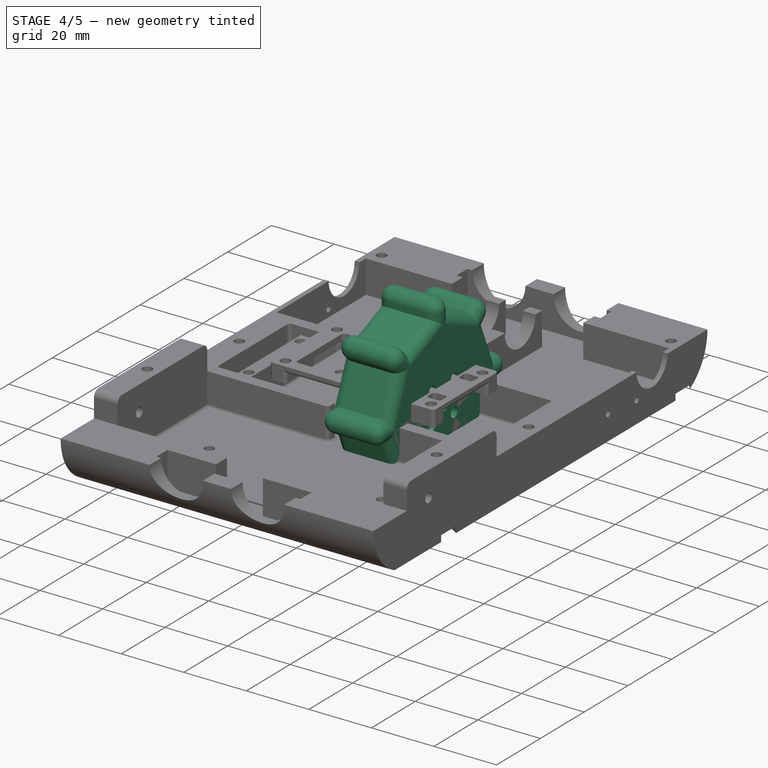
[diagram: stage 4 of 5 — iso view after this stage's code; geometry added in this stage tinted green]
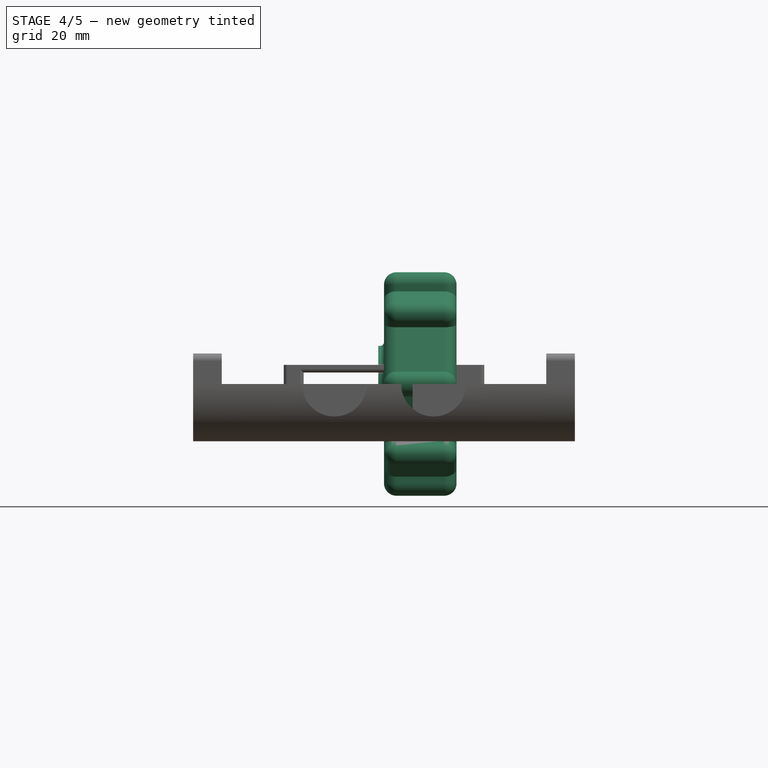
[diagram: stage 4 of 5 — front view after this stage's code; geometry added in this stage tinted green]
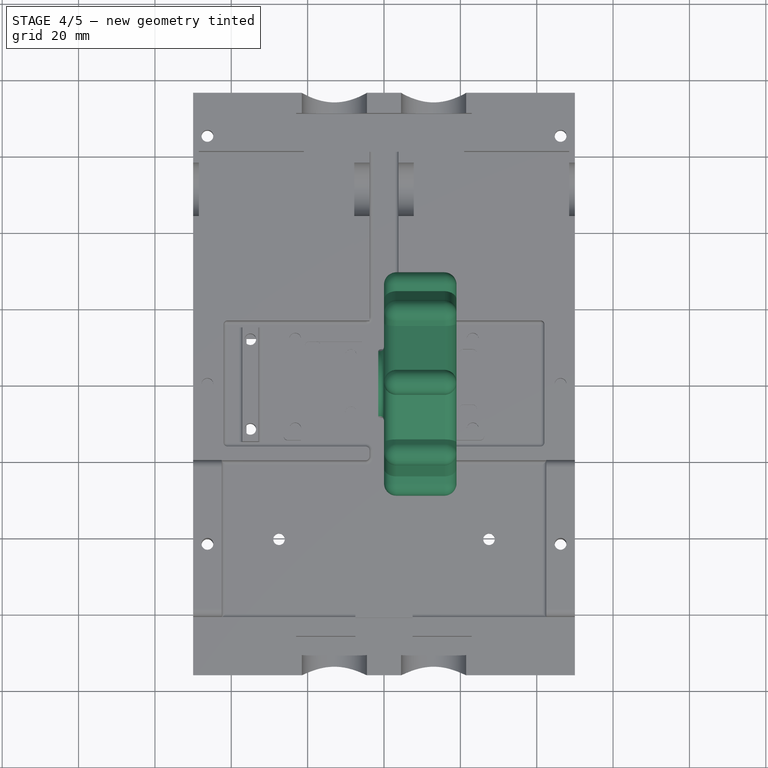
[diagram: stage 4 of 5 — top view after this stage's code; geometry added in this stage tinted green]
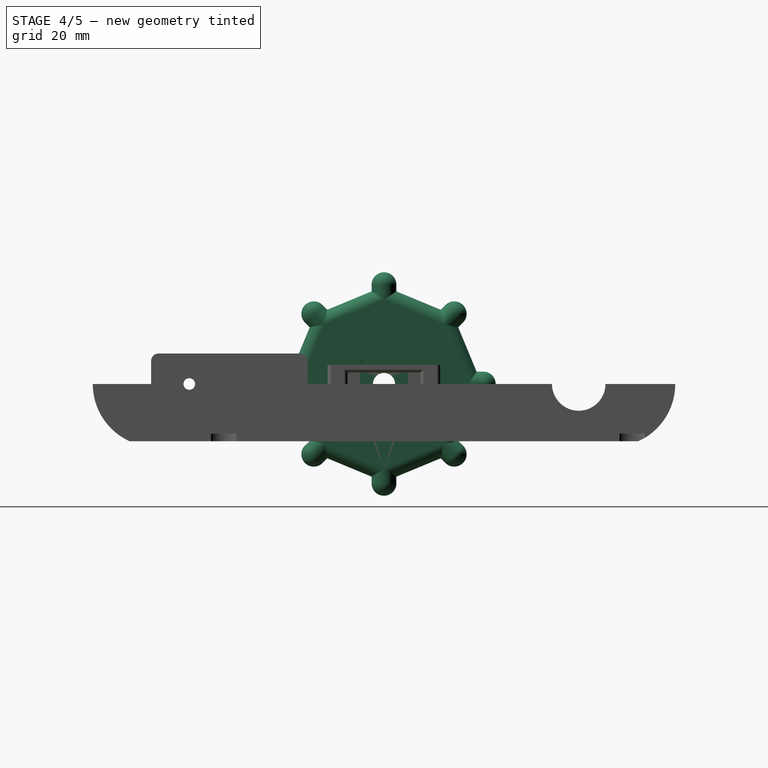
[diagram: stage 4 of 5 — right view after this stage's code; geometry added in this stage tinted green]
FEATURE [PartDesign::Body] Body  label="Track"
  Group = -> [Sketch,Sketch001,Pad,Pocket,Sketch002,Pocket001,Fillet,Fillet001,Fillet002,Sketch003,Fillet003,Pad001,Fillet004]
  Origin = -> Origin
  Tip = -> Fillet004
FEATURE [Sketcher::SketchObject] Sketch004  label="track_gear_wheel_sketch"
  MapMode = 5
  Placement = pos=(0,0,0) rot=(0.57735,0.57735,0.57735;2.0944rad)
  Support = -> [YZ_Plane001]
  sketch-geometry (58):
    g0: Circle [constr] CenterX=0 CenterY=0 CenterZ=0 NormalX=0 NormalY=0 NormalZ=1 AngleXU=0 Radius=30.0509
    g1: LineSegment [constr] StartX=-27.7635 StartY=11.5 StartZ=0 EndX=-11.5 EndY=27.7635 EndZ=0
    g2: LineSegment [constr] StartX=-11.5 StartY=27.7635 StartZ=0 EndX=11.5 EndY=27.7635 EndZ=0
    g3: LineSegment [constr] StartX=11.5 StartY=27.7635 StartZ=0 EndX=27.7635 EndY=11.5 EndZ=0
    g4: LineSegment [constr] StartX=27.7635 StartY=11.5 StartZ=0 EndX=27.7635 EndY=-11.5 EndZ=0
    g5: LineSegment [constr] StartX=27.7635 StartY=-11.5 StartZ=0 EndX=11.5 EndY=-27.7635 EndZ=0
    g6: LineSegment [constr] StartX=11.5 StartY=-27.7635 StartZ=0 EndX=-11.5 EndY=-27.7635 EndZ=0
    g7: LineSegment [constr] StartX=-11.5 StartY=-27.7635 StartZ=0 EndX=-27.7635 EndY=-11.5 EndZ=0
    g8: LineSegment [constr] StartX=-27.7635 StartY=-11.5 StartZ=0 EndX=-27.7635 EndY=11.5 EndZ=0
    g9: LineSegment [constr] StartX=-27.7635 StartY=1e-16 StartZ=0 EndX=-24.2635 EndY=1e-16 EndZ=0
    g10: LineSegment [constr] StartX=-24.2635 StartY=-3.25 StartZ=0 EndX=-24.2635 EndY=3.25 EndZ=0
    g11: LineSegment StartX=-24.2635 StartY=3.25 StartZ=0 EndX=-29.2635 EndY=3.25 EndZ=0
    g12: LineSegment StartX=-29.2635 StartY=3.25 StartZ=0 EndX=-29.2635 EndY=-3.25 EndZ=0
    g13: LineSegment StartX=-29.2635 StartY=-3.25 StartZ=0 EndX=-24.2635 EndY=-3.25 EndZ=0
    g14: LineSegment [constr] StartX=-19.6317 StartY=19.6317 StartZ=0 EndX=-17.1569 EndY=17.1569 EndZ=0
    g15: LineSegment [constr] StartX=8e-16 StartY=27.7635 StartZ=0 EndX=8e-16 EndY=24.2635 EndZ=0
    g16: LineSegment [constr] StartX=19.6317 StartY=19.6317 StartZ=0 EndX=17.1569 EndY=17.1569 EndZ=0
    g17: LineSegment [constr] StartX=27.7635 StartY=-5e-16 StartZ=0 EndX=24.2635 EndY=-5e-16 EndZ=0
    g18: LineSegment [constr] StartX=19.6317 StartY=-19.6317 StartZ=0 EndX=17.1569 EndY=-17.1569 EndZ=0
    g19: LineSegment [constr] StartX=0 StartY=-27.7635 StartZ=0 EndX=0 EndY=-24.2635 EndZ=0
    g20: LineSegment [constr] StartX=-19.6317 StartY=-19.6317 StartZ=0 EndX=-17.1569 EndY=-17.1569 EndZ=0
    g21: LineSegment StartX=-22.9905 StartY=18.3943 StartZ=0 EndX=-19.455 EndY=14.8588 EndZ=0
    g22: LineSegment [constr] StartX=-19.455 StartY=14.8588 StartZ=0 EndX=-14.8588 EndY=19.455 EndZ=0
    g23: LineSegment StartX=-14.8588 StartY=19.455 StartZ=0 EndX=-18.3943 EndY=22.9905 EndZ=0
    g24: LineSegment StartX=-18.3943 StartY=22.9905 StartZ=0 EndX=-22.9905 EndY=18.3943 EndZ=0
    g25: LineSegment StartX=-3.25 StartY=29.2635 StartZ=0 EndX=3.25 EndY=29.2635 EndZ=0
    g26: LineSegment StartX=3.25 StartY=29.2635 StartZ=0 EndX=3.25 EndY=24.2635 EndZ=0
    g27: LineSegment [constr] StartX=3.25 StartY=24.2635 StartZ=0 EndX=-3.25 EndY=24.2635 EndZ=0
    g28: LineSegment StartX=-3.25 StartY=24.2635 StartZ=0 EndX=-3.25 EndY=29.2635 EndZ=0
    g29: LineSegment StartX=18.3943 StartY=22.9905 StartZ=0 EndX=22.9905 EndY=18.3943 EndZ=0
    g30: LineSegment StartX=22.9905 StartY=18.3943 StartZ=0 EndX=19.455 EndY=14.8588 EndZ=0
    g31: LineSegment [constr] StartX=19.455 StartY=14.8588 StartZ=0 EndX=14.8588 EndY=19.455 EndZ=0
    g32: LineSegment StartX=14.8588 StartY=19.455 StartZ=0 EndX=18.3943 EndY=22.9905 EndZ=0
    g33: LineSegment [constr] StartX=24.2635 StartY=3.25 StartZ=0 EndX=24.2635 EndY=-3.25 EndZ=0
    g34: LineSegment StartX=24.2635 StartY=-3.25 StartZ=0 EndX=29.2635 EndY=-3.25 EndZ=0
    g35: LineSegment StartX=29.2635 StartY=-3.25 StartZ=0 EndX=29.2635 EndY=3.25 EndZ=0
    g36: LineSegment StartX=29.2635 StartY=3.25 StartZ=0 EndX=24.2635 EndY=3.25 EndZ=0
    g37: LineSegment [constr] StartX=19.455 StartY=-14.8588 StartZ=0 EndX=14.8588 EndY=-19.455 EndZ=0
    g38: LineSegment StartX=14.8588 StartY=-19.455 StartZ=0 EndX=18.3943 EndY=-22.9905 EndZ=0
    g39: LineSegment StartX=18.3943 StartY=-22.9905 StartZ=0 EndX=22.9905 EndY=-18.3943 EndZ=0
    g40: LineSegment StartX=22.9905 StartY=-18.3943 StartZ=0 EndX=19.455 EndY=-14.8588 EndZ=0
    g41: LineSegment [constr] StartX=3.25 StartY=-24.2635 StartZ=0 EndX=-3.25 EndY=-24.2635 EndZ=0
    g42: LineSegment StartX=-3.25 StartY=-24.2635 StartZ=0 EndX=-3.25 EndY=-29.2635 EndZ=0
    g43: LineSegment StartX=-3.25 StartY=-29.2635 StartZ=0 EndX=3.25 EndY=-29.2635 EndZ=0
    g44: LineSegment StartX=3.25 StartY=-29.2635 StartZ=0 EndX=3.25 EndY=-24.2635 EndZ=0
    g45: LineSegment [constr] StartX=-14.8588 StartY=-19.455 StartZ=0 EndX=-19.455 EndY=-14.8588 EndZ=0
    g46: LineSegment StartX=-19.455 StartY=-14.8588 StartZ=0 EndX=-22.9905 EndY=-18.3943 EndZ=0
    g47: LineSegment StartX=-22.9905 StartY=-18.3943 StartZ=0 EndX=-18.3943 EndY=-22.9905 EndZ=0
    g48: LineSegment StartX=-18.3943 StartY=-22.9905 StartZ=0 EndX=-14.8588 EndY=-19.455 EndZ=0
    g49: Circle [constr] CenterX=0 CenterY=0 CenterZ=0 NormalX=0 NormalY=0 NormalZ=1 AngleXU=0 Radius=24.2635
    g50: LineSegment StartX=-24.2635 StartY=3.25 StartZ=0 EndX=-19.455 EndY=14.8588 EndZ=0
    g51: LineSegment StartX=-14.8588 StartY=19.455 StartZ=0 EndX=-3.25 EndY=24.2635 EndZ=0
    g52: LineSegment StartX=3.25 StartY=24.2635 StartZ=0 EndX=14.8588 EndY=19.455 EndZ=0
    g53: LineSegment StartX=19.455 StartY=14.8588 StartZ=0 EndX=24.2635 EndY=3.25 EndZ=0
    g54: LineSegment StartX=24.2635 StartY=-3.25 StartZ=0 EndX=19.455 EndY=-14.8588 EndZ=0
    g55: LineSegment StartX=14.8588 StartY=-19.455 StartZ=0 EndX=3.25 EndY=-24.2635 EndZ=0
    g56: LineSegment StartX=-3.25 StartY=-24.2635 StartZ=0 EndX=-14.8588 EndY=-19.455 EndZ=0
    g57: LineSegment StartX=-19.455 StartY=-14.8588 StartZ=0 EndX=-24.2635 EndY=-3.25 EndZ=0
  constraints (157):
    c: Coincident(g0,g-1)
    c: PointOnObject(g1,g0)
    c: PointOnObject(g1,g0)
    c: Coincident(g2,g1)
    c: PointOnObject(g2,g0)
    c: Coincident(g3,g2)
    c: PointOnObject(g3,g0)
    c: Coincident(g4,g3)
    c: PointOnObject(g4,g0)
    c: Coincident(g5,g4)
    c: PointOnObject(g5,g0)
    c: Coincident(g6,g5)
    c: PointOnObject(g6,g0)
    c: Coincident(g7,g6)
    c: PointOnObject(g7,g0)
    c: Equal(g1,g2)
    c: Equal(g2,g3)
    c: Equal(g3,g4)
    c: Equal(g4,g5)
    c: Equal(g5,g6)
    c: Equal(g6,g7)
    c: Radius(g0) = 30.0509
    c: Coincident(g8,g1)
    c: Equal(g8,g1)
    c: Perpendicular(g8,g9)
    c: Distance(g9) = 3.5
    c: Coincident(g11,g10)
    c: Coincident(g12,g11)
    c: Coincident(g13,g12)
    c: Coincident(g13,g10)
    c: Parallel(g10,g12)
    c: Equal(g13,g11)
    c: Parallel(g10,g8)
    c: Symmetric(g10,g10,g9)
    c: Symmetric(g8,g1,g9)
    c: Perpendicular(g10,g13)
    c: Distance(g12) = 6.5
    c: Distance(g11) = 5
    c: Symmetric(g1,g1,g14)
    c: Symmetric(g1,g2,g15)
    c: Symmetric(g2,g3,g16)
    c: Symmetric(g4,g3,g17)
    c: Symmetric(g5,g4,g18)
    c: Symmetric(g5,g6,g19)
    c: Symmetric(g6,g7,g20)
    c: Perpendicular(g14,g1)
    c: Perpendicular(g2,g15)
    c: Perpendicular(g16,g3)
    c: Perpendicular(g17,g4)
    c: Perpendicular(g18,g5)
    c: Perpendicular(g19,g6)
    c: Perpendicular(g20,g7)
    c: Equal(g14,g15)
    c: Equal(g15,g16)
    c: Equal(g16,g17)
    c: Equal(g17,g18)
    c: Equal(g18,g19)
    c: Equal(g19,g20)
    c: Coincident(g21,g22)
    c: Coincident(g22,g23)
    c: Coincident(g23,g24)
    c: Coincident(g24,g21)
    c: Coincident(g25,g26)
    c: Coincident(g26,g27)
    c: Coincident(g27,g28)
    c: Coincident(g28,g25)
    c: Coincident(g29,g30)
    c: Coincident(g30,g31)
    c: Coincident(g31,g32)
    c: Coincident(g32,g29)
    c: Coincident(g33,g34)
    c: Coincident(g34,g35)
    c: Coincident(g35,g36)
    c: Coincident(g36,g33)
    c: Coincident(g37,g38)
    c: Coincident(g38,g39)
    c: Coincident(g39,g40)
    c: Coincident(g40,g37)
    c: Coincident(g41,g42)
    c: Coincident(g42,g43)
    c: Coincident(g43,g44)
    c: Coincident(g44,g41)
    c: Coincident(g45,g46)
    c: Coincident(g46,g47)
    c: Coincident(g47,g48)
    c: Coincident(g48,g45)
    c: Parallel(g46,g20)
    c: Parallel(g20,g48)
    c: Parallel(g45,g47)
    c: Parallel(g47,g7)
    c: Parallel(g41,g43)
    c: Parallel(g43,g6)
    c: Parallel(g42,g44)
    c: Parallel(g44,g19)
    c: Parallel(g21,g14)
    c: Parallel(g14,g23)
    c: Parallel(g22,g24)
    c: Parallel(g24,g1)
    c: Parallel(g28,g26)
    c: Parallel(g26,g15)
    c: Parallel(g25,g27)
    c: Parallel(g27,g2)
    c: Parallel(g31,g29)
    c: Parallel(g29,g3)
    c: Parallel(g32,g30)
    c: Parallel(g30,g16)
    c: Parallel(g36,g34)
    c: Parallel(g34,g17)
    c: Parallel(g33,g35)
    c: Parallel(g35,g4)
    c: Parallel(g40,g38)
    c: Parallel(g38,g18)
    c: Parallel(g37,g39)
    c: Parallel(g39,g5)
    c: Equal(g10,g22)
    c: Equal(g22,g27)
    c: Equal(g27,g31)
    c: Equal(g31,g33)
    c: Equal(g33,g37)
    c: Equal(g37,g41)
    c: Equal(g41,g45)
    c: Equal(g11,g23)
    c: Equal(g23,g26)
    c: Equal(g26,g30)
    c: Equal(g30,g34)
    c: Equal(g34,g38)
    c: Equal(g38,g42)
    c: Equal(g42,g46)
    c: Symmetric(g21,g22,g14)
    c: Symmetric(g27,g26,g15)
    c: Symmetric(g31,g30,g16)
    c: Symmetric(g33,g33,g17)
    c: Symmetric(g37,g37,g18)
    c: Symmetric(g41,g41,g19)
    c: Symmetric(g45,g45,g20)
    c: Distance(g8) = 23
    c: PointOnObject(g9,g49)
    c: PointOnObject(g14,g49)
    c: Coincident(g7,g8)
    c: Vertical(g8)
    c: Coincident(g0,g49)
    c: Coincident(g50,g11)
    c: Coincident(g50,g21)
    c: Coincident(g51,g23)
    c: Coincident(g51,g28)
    c: Coincident(g52,g26)
    c: Coincident(g52,g32)
    c: Coincident(g53,g30)
    c: Coincident(g53,g36)
    c: Coincident(g54,g34)
    c: Coincident(g54,g40)
    c: Coincident(g55,g38)
    c: Coincident(g55,g44)
    c: Coincident(g56,g42)
    c: Coincident(g56,g48)
    c: Coincident(g57,g46)
    c: Coincident(g57,g13)
FEATURE [PartDesign::Pad] Pad002
  Length = 19
  Length2 = 100
  Placement = pos=(0,0,0) rot=(0.57735,0.57735,0.57735;2.0944rad)
  Profile = -> Sketch004
  Type = 0
FEATURE [PartDesign::Fillet] Fillet005
  Base = -> Pad002 [Face34,Face33,Face6,Face2,Face30,Face10,Face26,Face22,Face18,Face14]
  BaseFeature = -> Pad002
  Placement = pos=(0,0,0) rot=(0.57735,0.57735,0.57735;2.0944rad)
  Radius = 3.249
FEATURE [Sketcher::SketchObject] Sketch005  label="servo_horn"
  MapMode = 5
  Placement = pos=(0,0,0) rot=(0.57735,0.57735,-0.57735;4.18879rad)
  Support = -> [Fillet005]
  sketch-geometry (1):
    g0: Circle CenterX=0 CenterY=0 CenterZ=0 NormalX=0 NormalY=0 NormalZ=1 AngleXU=0 Radius=11
  constraints (2):
    c: Coincident(g0,g-1)
    c: Radius(g0) = 11
FEATURE [Sketcher::SketchObject] Sketch006  label="track_gear_wheel_holes"
  MapMode = 5
  Placement = pos=(0,0,0) rot=(0.57735,0.57735,-0.57735;4.18879rad)
  Support = -> [Fillet005]
  sketch-geometry (9):
    g0: Circle CenterX=-4.94975 CenterY=4.94975 CenterZ=0 NormalX=0 NormalY=0 NormalZ=1 AngleXU=0 Radius=1.55
    g1: Circle CenterX=4.94975 CenterY=4.94975 CenterZ=0 NormalX=0 NormalY=0 NormalZ=1 AngleXU=0 Radius=1.55
    g2: Circle CenterX=-4.94975 CenterY=-4.94975 CenterZ=0 NormalX=0 NormalY=0 NormalZ=1 AngleXU=0 Radius=1.55
    g3: Circle CenterX=4.94975 CenterY=-4.94975 CenterZ=0 NormalX=0 NormalY=0 NormalZ=1 AngleXU=0 Radius=1.55
    g4: LineSegment [constr] StartX=-4.94975 StartY=4.94975 StartZ=0 EndX=0 EndY=0 EndZ=0
    g5: LineSegment [constr] StartX=0 StartY=0 StartZ=0 EndX=4.94975 EndY=4.94975 EndZ=0
    g6: LineSegment [constr] StartX=0 StartY=0 StartZ=0 EndX=4.94975 EndY=-4.94975 EndZ=0
    g7: LineSegment [constr] StartX=0 StartY=0 StartZ=0 EndX=-4.94975 EndY=-4.94975 EndZ=0
    g8: Circle CenterX=0 CenterY=0 CenterZ=0 NormalX=0 NormalY=0 NormalZ=1 AngleXU=0 Radius=2.9
  constraints (22):
    c: Equal(g3,g2)
    c: Equal(g2,g0)
    c: Equal(g0,g1)
    c: Radius(g0) = 1.55
    c: Equal(g4,g5)
    c: Equal(g5,g6)
    c: Equal(g6,g7)
    c: Distance(g4) = 7
    c: Parallel(g4,g6)
    c: Parallel(g7,g5)
    c: Perpendicular(g5,g4)
    c: Angle(g-1,g5) = 0.785398
    c: Radius(g8) = 2.9
    c: Coincident(g0,g4)
    c: Coincident(g1,g5)
    c: Coincident(g2,g7)
    c: Coincident(g3,g6)
    c: Coincident(g8,g7)
    c: Coincident(g8,g5)
    c: Coincident(g8,g6)
    c: Coincident(g8,g4)
    c: Coincident(g8,g-1)
FEATURE [PartDesign::Pocket] Pocket002
  BaseFeature = -> Fillet005
  Length = 5
  Length2 = 100
  Placement = pos=(0,0,0) rot=(0.57735,0.57735,0.57735;2.0944rad)
  Profile = -> Sketch006
  Type = 1
FEATURE [PartDesign::Body] Body001  label="track_gear_wheel"
  Group = -> [Sketch004,Sketch005,Sketch006,Pad002,Fillet005,Pocket002,Pocket003,Chamfer,Fillet006]
  Origin = -> Origin001
  Tip = -> Fillet006
FEATURE [Sketcher::SketchObject] Sketch007  label="track_gear_wheel_sketch001"
  MapMode = 5
  Placement = pos=(0,0,0) rot=(0.57735,0.57735,0.57735;2.0944rad)
  Support = -> [YZ_Plane002]
  sketch-geometry (58):
    g0: Circle [constr] CenterX=0 CenterY=0 CenterZ=0 NormalX=0 NormalY=0 NormalZ=1 AngleXU=0 Radius=30.0509
    g1: LineSegment [constr] StartX=-27.7635 StartY=11.5 StartZ=0 EndX=-11.5 EndY=27.7635 EndZ=0
    g2: LineSegment [constr] StartX=-11.5 StartY=27.7635 StartZ=0 EndX=11.5 EndY=27.7635 EndZ=0
    g3: LineSegment [constr] StartX=11.5 StartY=27.7635 StartZ=0 EndX=27.7635 EndY=11.5 EndZ=0
    g4: LineSegment [constr] StartX=27.7635 StartY=11.5 StartZ=0 EndX=27.7635 EndY=-11.5 EndZ=0
    g5: LineSegment [constr] StartX=27.7635 StartY=-11.5 StartZ=0 EndX=11.5 EndY=-27.7635 EndZ=0
    g6: LineSegment [constr] StartX=11.5 StartY=-27.7635 StartZ=0 EndX=-11.5 EndY=-27.7635 EndZ=0
    g7: LineSegment [constr] StartX=-11.5 StartY=-27.7635 StartZ=0 EndX=-27.7635 EndY=-11.5 EndZ=0
    g8: LineSegment [constr] StartX=-27.7635 StartY=-11.5 StartZ=0 EndX=-27.7635 EndY=11.5 EndZ=0
    g9: LineSegment [constr] StartX=-27.7635 StartY=1e-16 StartZ=0 EndX=-24.2635 EndY=1e-16 EndZ=0
    g10: LineSegment [constr] StartX=-24.2635 StartY=-3.25 StartZ=0 EndX=-24.2635 EndY=3.25 EndZ=0
    g11: LineSegment StartX=-24.2635 StartY=3.25 StartZ=0 EndX=-29.2635 EndY=3.25 EndZ=0
    g12: LineSegment StartX=-29.2635 StartY=3.25 StartZ=0 EndX=-29.2635 EndY=-3.25 EndZ=0
    g13: LineSegment StartX=-29.2635 StartY=-3.25 StartZ=0 EndX=-24.2635 EndY=-3.25 EndZ=0
    g14: LineSegment [constr] StartX=-19.6317 StartY=19.6317 StartZ=0 EndX=-17.1569 EndY=17.1569 EndZ=0
    g15: LineSegment [constr] StartX=8e-16 StartY=27.7635 StartZ=0 EndX=8e-16 EndY=24.2635 EndZ=0
    g16: LineSegment [constr] StartX=19.6317 StartY=19.6317 StartZ=0 EndX=17.1569 EndY=17.1569 EndZ=0
    g17: LineSegment [constr] StartX=27.7635 StartY=-5e-16 StartZ=0 EndX=24.2635 EndY=-5e-16 EndZ=0
    g18: LineSegment [constr] StartX=19.6317 StartY=-19.6317 StartZ=0 EndX=17.1569 EndY=-17.1569 EndZ=0
    g19: LineSegment [constr] StartX=0 StartY=-27.7635 StartZ=0 EndX=0 EndY=-24.2635 EndZ=0
    g20: LineSegment [constr] StartX=-19.6317 StartY=-19.6317 StartZ=0 EndX=-17.1569 EndY=-17.1569 EndZ=0
    g21: LineSegment StartX=-22.9905 StartY=18.3943 StartZ=0 EndX=-19.455 EndY=14.8588 EndZ=0
    g22: LineSegment [constr] StartX=-19.455 StartY=14.8588 StartZ=0 EndX=-14.8588 EndY=19.455 EndZ=0
    g23: LineSegment StartX=-14.8588 StartY=19.455 StartZ=0 EndX=-18.3943 EndY=22.9905 EndZ=0
    g24: LineSegment StartX=-18.3943 StartY=22.9905 StartZ=0 EndX=-22.9905 EndY=18.3943 EndZ=0
    g25: LineSegment StartX=-3.25 StartY=29.2635 StartZ=0 EndX=3.25 EndY=29.2635 EndZ=0
    g26: LineSegment StartX=3.25 StartY=29.2635 StartZ=0 EndX=3.25 EndY=24.2635 EndZ=0
    g27: LineSegment [constr] StartX=3.25 StartY=24.2635 StartZ=0 EndX=-3.25 EndY=24.2635 EndZ=0
    g28: LineSegment StartX=-3.25 StartY=24.2635 StartZ=0 EndX=-3.25 EndY=29.2635 EndZ=0
    g29: LineSegment StartX=18.3943 StartY=22.9905 StartZ=0 EndX=22.9905 EndY=18.3943 EndZ=0
    g30: LineSegment StartX=22.9905 StartY=18.3943 StartZ=0 EndX=19.455 EndY=14.8588 EndZ=0
    g31: LineSegment [constr] StartX=19.455 StartY=14.8588 StartZ=0 EndX=14.8588 EndY=19.455 EndZ=0
    g32: LineSegment StartX=14.8588 StartY=19.455 StartZ=0 EndX=18.3943 EndY=22.9905 EndZ=0
    g33: LineSegment [constr] StartX=24.2635 StartY=3.25 StartZ=0 EndX=24.2635 EndY=-3.25 EndZ=0
    g34: LineSegment StartX=24.2635 StartY=-3.25 StartZ=0 EndX=29.2635 EndY=-3.25 EndZ=0
    g35: LineSegment StartX=29.2635 StartY=-3.25 StartZ=0 EndX=29.2635 EndY=3.25 EndZ=0
    g36: LineSegment StartX=29.2635 StartY=3.25 StartZ=0 EndX=24.2635 EndY=3.25 EndZ=0
    g37: LineSegment [constr] StartX=19.455 StartY=-14.8588 StartZ=0 EndX=14.8588 EndY=-19.455 EndZ=0
    g38: LineSegment StartX=14.8588 StartY=-19.455 StartZ=0 EndX=18.3943 EndY=-22.9905 EndZ=0
    g39: LineSegment StartX=18.3943 StartY=-22.9905 StartZ=0 EndX=22.9905 EndY=-18.3943 EndZ=0
    g40: LineSegment StartX=22.9905 StartY=-18.3943 StartZ=0 EndX=19.455 EndY=-14.8588 EndZ=0
    g41: LineSegment [constr] StartX=3.25 StartY=-24.2635 StartZ=0 EndX=-3.25 EndY=-24.2635 EndZ=0
    g42: LineSegment StartX=-3.25 StartY=-24.2635 StartZ=0 EndX=-3.25 EndY=-29.2635 EndZ=0
    g43: LineSegment StartX=-3.25 StartY=-29.2635 StartZ=0 EndX=3.25 EndY=-29.2635 EndZ=0
    g44: LineSegment StartX=3.25 StartY=-29.2635 StartZ=0 EndX=3.25 EndY=-24.2635 EndZ=0
    g45: LineSegment [constr] StartX=-14.8588 StartY=-19.455 StartZ=0 EndX=-19.455 EndY=-14.8588 EndZ=0
    g46: LineSegment StartX=-19.455 StartY=-14.8588 StartZ=0 EndX=-22.9905 EndY=-18.3943 EndZ=0
    g47: LineSegment StartX=-22.9905 StartY=-18.3943 StartZ=0 EndX=-18.3943 EndY=-22.9905 EndZ=0
    g48: LineSegment StartX=-18.3943 StartY=-22.9905 StartZ=0 EndX=-14.8588 EndY=-19.455 EndZ=0
    g49: Circle [constr] CenterX=0 CenterY=0 CenterZ=0 NormalX=0 NormalY=0 NormalZ=1 AngleXU=0 Radius=24.2635
    g50: LineSegment StartX=-24.2635 StartY=3.25 StartZ=0 EndX=-19.455 EndY=14.8588 EndZ=0
    g51: LineSegment StartX=-14.8588 StartY=19.455 StartZ=0 EndX=-3.25 EndY=24.2635 EndZ=0
    g52: LineSegment StartX=3.25 StartY=24.2635 StartZ=0 EndX=14.8588 EndY=19.455 EndZ=0
    g53: LineSegment StartX=19.455 StartY=14.8588 StartZ=0 EndX=24.2635 EndY=3.25 EndZ=0
    g54: LineSegment StartX=24.2635 StartY=-3.25 StartZ=0 EndX=19.455 EndY=-14.8588 EndZ=0
    g55: LineSegment StartX=14.8588 StartY=-19.455 StartZ=0 EndX=3.25 EndY=-24.2635 EndZ=0
    g56: LineSegment StartX=-3.25 StartY=-24.2635 StartZ=0 EndX=-14.8588 EndY=-19.455 EndZ=0
    g57: LineSegment StartX=-19.455 StartY=-14.8588 StartZ=0 EndX=-24.2635 EndY=-3.25 EndZ=0
  constraints (157):
    c: Coincident(g0,g-1)
    c: PointOnObject(g1,g0)
    c: PointOnObject(g1,g0)
    c: Coincident(g2,g1)
    c: PointOnObject(g2,g0)
    c: Coincident(g3,g2)
    c: PointOnObject(g3,g0)
    c: Coincident(g4,g3)
    c: PointOnObject(g4,g0)
    c: Coincident(g5,g4)
    c: PointOnObject(g5,g0)
    c: Coincident(g6,g5)
    c: PointOnObject(g6,g0)
    c: Coincident(g7,g6)
    c: PointOnObject(g7,g0)
    c: Equal(g1,g2)
    c: Equal(g2,g3)
    c: Equal(g3,g4)
    c: Equal(g4,g5)
    c: Equal(g5,g6)
    c: Equal(g6,g7)
    c: Radius(g0) = 30.0509
    c: Coincident(g8,g1)
    c: Equal(g8,g1)
    c: Perpendicular(g8,g9)
    c: Distance(g9) = 3.5
    c: Coincident(g11,g10)
    c: Coincident(g12,g11)
    c: Coincident(g13,g12)
    c: Coincident(g13,g10)
    c: Parallel(g10,g12)
    c: Equal(g13,g11)
    c: Parallel(g10,g8)
    c: Symmetric(g10,g10,g9)
    c: Symmetric(g8,g1,g9)
    c: Perpendicular(g10,g13)
    c: Distance(g12) = 6.5
    c: Distance(g11) = 5
    c: Symmetric(g1,g1,g14)
    c: Symmetric(g1,g2,g15)
    c: Symmetric(g2,g3,g16)
    c: Symmetric(g4,g3,g17)
    c: Symmetric(g5,g4,g18)
    c: Symmetric(g5,g6,g19)
    c: Symmetric(g6,g7,g20)
    c: Perpendicular(g14,g1)
    c: Perpendicular(g2,g15)
    c: Perpendicular(g16,g3)
    c: Perpendicular(g17,g4)
    c: Perpendicular(g18,g5)
    c: Perpendicular(g19,g6)
    c: Perpendicular(g20,g7)
    c: Equal(g14,g15)
    c: Equal(g15,g16)
    c: Equal(g16,g17)
    c: Equal(g17,g18)
    c: Equal(g18,g19)
    c: Equal(g19,g20)
    c: Coincident(g21,g22)
    c: Coincident(g22,g23)
    c: Coincident(g23,g24)
    c: Coincident(g24,g21)
    c: Coincident(g25,g26)
    c: Coincident(g26,g27)
    c: Coincident(g27,g28)
    c: Coincident(g28,g25)
    c: Coincident(g29,g30)
    c: Coincident(g30,g31)
    c: Coincident(g31,g32)
    c: Coincident(g32,g29)
    c: Coincident(g33,g34)
    c: Coincident(g34,g35)
    c: Coincident(g35,g36)
    c: Coincident(g36,g33)
    c: Coincident(g37,g38)
    c: Coincident(g38,g39)
    c: Coincident(g39,g40)
    c: Coincident(g40,g37)
    c: Coincident(g41,g42)
    c: Coincident(g42,g43)
    c: Coincident(g43,g44)
    c: Coincident(g44,g41)
    c: Coincident(g45,g46)
    c: Coincident(g46,g47)
    c: Coincident(g47,g48)
    c: Coincident(g48,g45)
    c: Parallel(g46,g20)
    c: Parallel(g20,g48)
    c: Parallel(g45,g47)
    c: Parallel(g47,g7)
    c: Parallel(g41,g43)
    c: Parallel(g43,g6)
    c: Parallel(g42,g44)
    c: Parallel(g44,g19)
    c: Parallel(g21,g14)
    c: Parallel(g14,g23)
    c: Parallel(g22,g24)
    c: Parallel(g24,g1)
    c: Parallel(g28,g26)
    c: Parallel(g26,g15)
    c: Parallel(g25,g27)
    c: Parallel(g27,g2)
    c: Parallel(g31,g29)
    c: Parallel(g29,g3)
    c: Parallel(g32,g30)
    c: Parallel(g30,g16)
    c: Parallel(g36,g34)
    c: Parallel(g34,g17)
    c: Parallel(g33,g35)
    c: Parallel(g35,g4)
    c: Parallel(g40,g38)
    c: Parallel(g38,g18)
    c: Parallel(g37,g39)
    c: Parallel(g39,g5)
    c: Equal(g10,g22)
    c: Equal(g22,g27)
    c: Equal(g27,g31)
    c: Equal(g31,g33)
    c: Equal(g33,g37)
    c: Equal(g37,g41)
    c: Equal(g41,g45)
    c: Equal(g11,g23)
    c: Equal(g23,g26)
    c: Equal(g26,g30)
    c: Equal(g30,g34)
    c: Equal(g34,g38)
    c: Equal(g38,g42)
    c: Equal(g42,g46)
    c: Symmetric(g21,g22,g14)
    c: Symmetric(g27,g26,g15)
    c: Symmetric(g31,g30,g16)
    c: Symmetric(g33,g33,g17)
    c: Symmetric(g37,g37,g18)
    c: Symmetric(g41,g41,g19)
    c: Symmetric(g45,g45,g20)
    c: Distance(g8) = 23
    c: PointOnObject(g9,g49)
    c: PointOnObject(g14,g49)
    c: Coincident(g7,g8)
    c: Vertical(g8)
    c: Coincident(g0,g49)
    c: Coincident(g50,g11)
    c: Coincident(g50,g21)
    c: Coincident(g51,g23)
    c: Coincident(g51,g28)
    c: Coincident(g52,g26)
    c: Coincident(g52,g32)
    c: Coincident(g53,g30)
    c: Coincident(g53,g36)
    c: Coincident(g54,g34)
    c: Coincident(g54,g40)
    c: Coincident(g55,g38)
    c: Coincident(g55,g44)
    c: Coincident(g56,g42)
    c: Coincident(g56,g48)
    c: Coincident(g57,g46)
    c: Coincident(g57,g13)
FEATURE [PartDesign::Pad] Pad003
  Length = 19
  Length2 = 100
  Placement = pos=(0,0,0) rot=(0.57735,0.57735,0.57735;2.0944rad)
  Profile = -> Sketch007
  Type = 0
FEATURE [PartDesign::Fillet] Fillet007
  Base = -> Pad003 [Face34,Face33,Face22,Face26,Face18,Face14,Face10,Face6,Face2,Face30]
  BaseFeature = -> Pad003
  Placement = pos=(0,0,0) rot=(0.57735,0.57735,0.57735;2.0944rad)
  Radius = 3.249
FEATURE [Sketcher::SketchObject] Sketch008  label="spacer_equal_to_servo_horn"
  MapMode = 5
  Placement = pos=(0,0,0) rot=(0.57735,0.57735,-0.57735;4.18879rad)
  Support = -> [Fillet007]
  sketch-geometry (1):
    g0: Circle CenterX=0 CenterY=0 CenterZ=0 NormalX=0 NormalY=0 NormalZ=1 AngleXU=0 Radius=10
  constraints (2):
    c: Coincident(g0,g-1)
    c: Radius(g0) = 10
FEATURE [PartDesign::Pad] Pad004
  BaseFeature = -> Fillet007
  Length = 1.5
  Length2 = 100
  Placement = pos=(0,0,0) rot=(0.57735,0.57735,0.57735;2.0944rad)
  Profile = -> Sketch008
  Type = 0
FEATURE [Sketcher::SketchObject] Sketch009  label="bearing_hole"
  MapMode = 5
  Placement = pos=(-1.5,7e-16,-4e-16) rot=(-0.57735,-0.57735,0.57735;2.0944rad)
  Support = -> [Pad004]
  sketch-geometry (1):
    g0: Circle CenterX=0 CenterY=0 CenterZ=0 NormalX=0 NormalY=0 NormalZ=1 AngleXU=0 Radius=4.08
  constraints (2):
    c: Coincident(g0,g-1)
    c: Radius(g0) = 4.08
FEATURE [PartDesign::Pocket] Pocket004
  BaseFeature = -> Pad004
  Length = 12
  Length2 = 100
  Placement = pos=(0,0,0) rot=(0.57735,0.57735,0.57735;2.0944rad)
  Profile = -> Sketch009
  Type = 0
FEATURE [Sketcher::SketchObject] Sketch010
  MapMode = 5
  Placement = pos=(19,-4.2e-15,4.2e-15) rot=(0.57735,0.57735,0.57735;2.0944rad)
  Support = -> [Pocket004]
  sketch-geometry (1):
    g0: Circle CenterX=0 CenterY=0 CenterZ=0 NormalX=0 NormalY=0 NormalZ=1 AngleXU=0 Radius=10
  constraints (2):
    c: Coincident(g0,g-1)
    c: Radius(g0) = 10
FEATURE [PartDesign::Pocket] Pocket005
  BaseFeature = -> Pocket004
  Length = 9
  Length2 = 100
  Placement = pos=(0,0,0) rot=(0.57735,0.57735,0.57735;2.0944rad)
  Profile = -> Sketch010
  Type = 0
FEATURE [PartDesign::Fillet] Fillet008
  Base = -> Pocket005 [Edge54]
  BaseFeature = -> Pocket005
  Placement = pos=(0,0,0) rot=(0.57735,0.57735,0.57735;2.0944rad)
  Radius = 1
FEATURE [PartDesign::Fillet] Fillet009
  Base = -> Fillet008 [Edge346,Edge329]
  BaseFeature = -> Fillet008
  Placement = pos=(0,0,0) rot=(0.57735,0.57735,0.57735;2.0944rad)
  Radius = 2
FEATURE [PartDesign::Chamfer] Chamfer001
  Base = -> Fillet012 [Edge127,Edge40,Edge90,Edge356,Edge323,Edge201]
  BaseFeature = -> Fillet012
  Placement = pos=(0,0,0) rot=(0.57735,0.57735,0.57735;2.0944rad)
  Size = 2.2
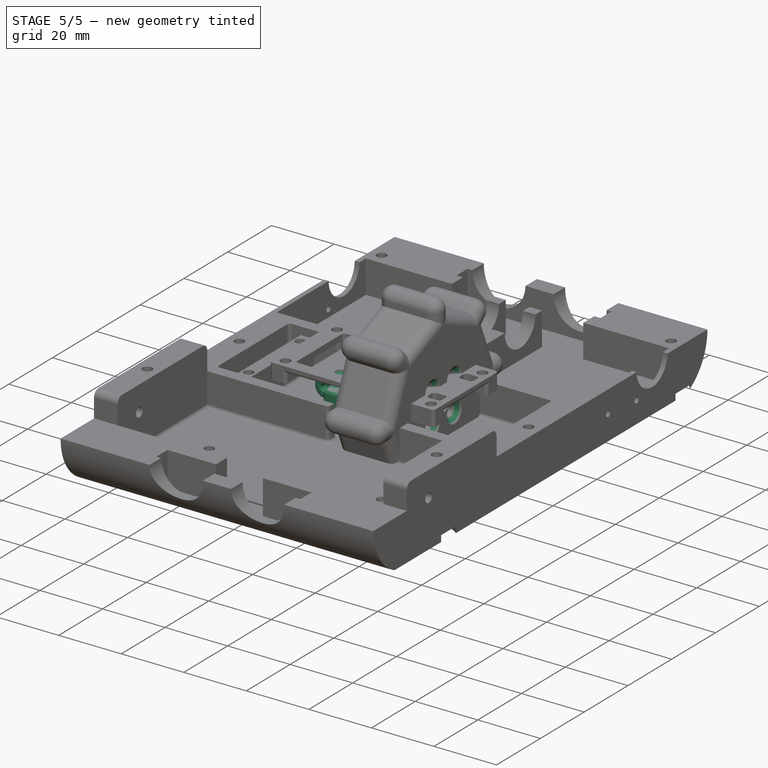
[diagram: stage 5 of 5 — iso view after this stage's code; geometry added in this stage tinted green]
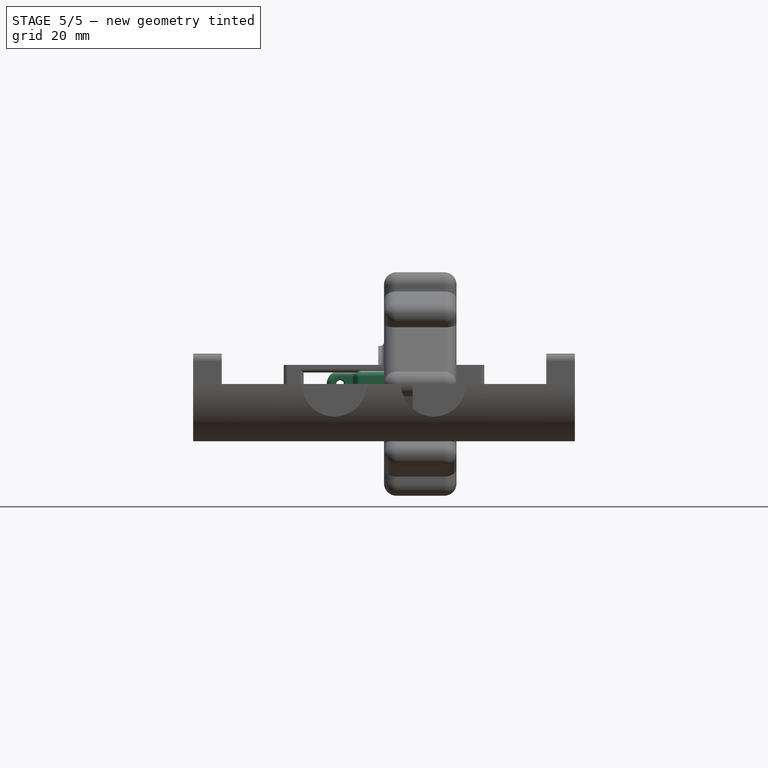
[diagram: stage 5 of 5 — front view after this stage's code; geometry added in this stage tinted green]
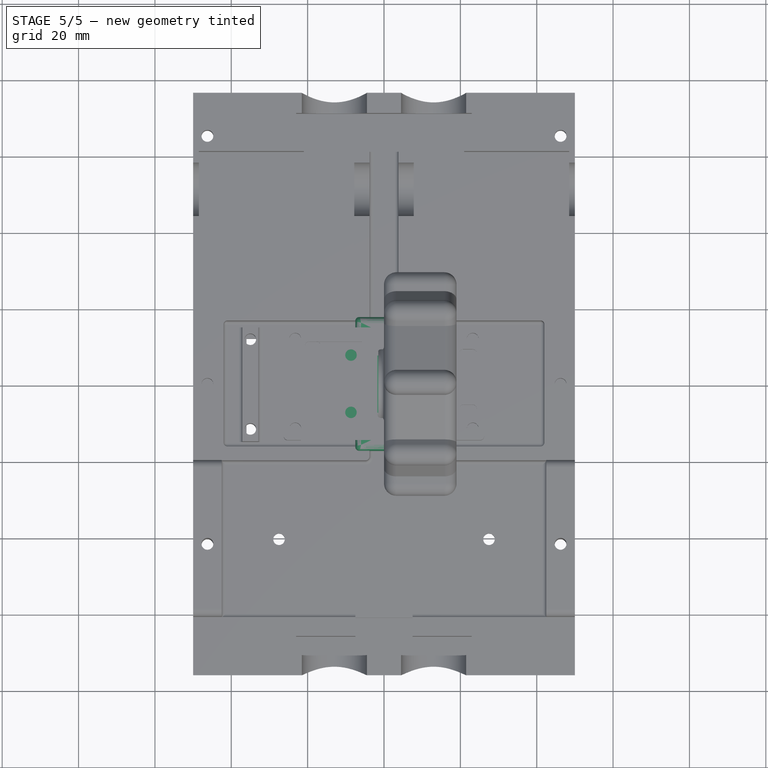
[diagram: stage 5 of 5 — top view after this stage's code; geometry added in this stage tinted green]
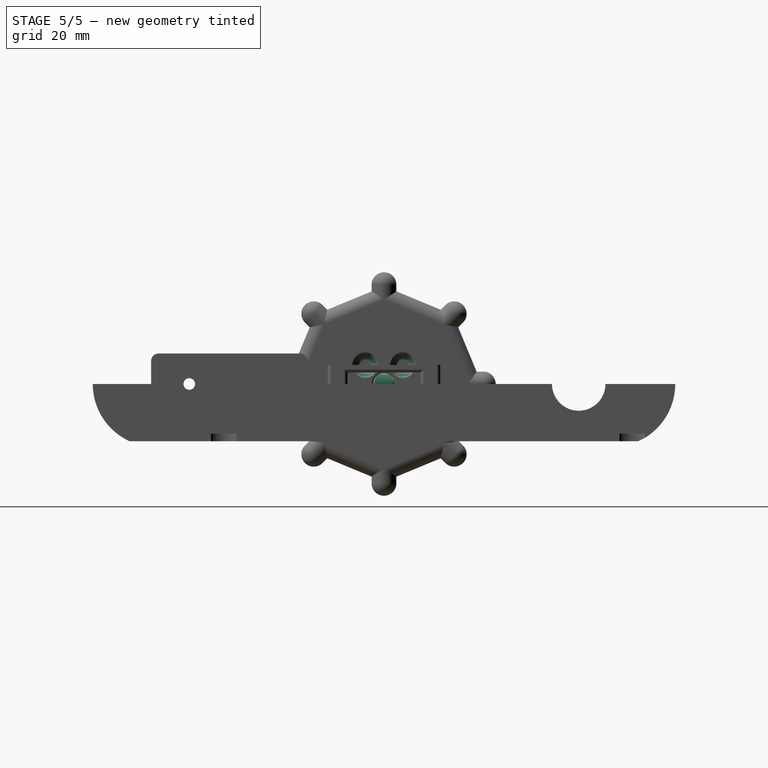
[diagram: stage 5 of 5 — right view after this stage's code; geometry added in this stage tinted green]
FEATURE [Sketcher::SketchObject] Sketch  label="tank_top"
  MapMode = 5
  Placement = pos=(0,1e-15,3.5) rot=(0,0,1;3.14159rad)
  sketch-geometry (31):
    g0: LineSegment [constr] StartX=7.5 StartY=17.5 StartZ=0 EndX=-15 EndY=17.5 EndZ=0
    g1: LineSegment [constr] StartX=-15 StartY=17.5 StartZ=0 EndX=-15 EndY=11.5 EndZ=0
    g2: LineSegment StartX=-15 StartY=11.5 StartZ=0 EndX=-7.5 EndY=11.5 EndZ=0
    g3: LineSegment StartX=-7.5 StartY=11.5 StartZ=0 EndX=-7.5 EndY=3.5 EndZ=0
    g4: LineSegment StartX=-7.5 StartY=3.5 StartZ=0 EndX=-15 EndY=3.5 EndZ=0
    g5: LineSegment [constr] StartX=-15 StartY=3.5 StartZ=0 EndX=-15 EndY=-3.5 EndZ=0
    g6: LineSegment StartX=-15 StartY=-3.5 StartZ=0 EndX=-7.5 EndY=-3.5 EndZ=0
    g7: LineSegment StartX=-7.5 StartY=-3.5 StartZ=0 EndX=-7.5 EndY=-11.5 EndZ=0
    g8: LineSegment StartX=-7.5 StartY=-11.5 StartZ=0 EndX=-15 EndY=-11.5 EndZ=0
    g9: LineSegment [constr] StartX=-15 StartY=-11.5 StartZ=0 EndX=-15 EndY=-17.5 EndZ=0
    g10: LineSegment [constr] StartX=-15 StartY=-17.5 StartZ=0 EndX=7.5 EndY=-17.5 EndZ=0
    g11: LineSegment StartX=7.5 StartY=-17.5 StartZ=0 EndX=7.5 EndY=-11 EndZ=0
    g12: LineSegment StartX=7.5 StartY=-11 StartZ=0 EndX=15 EndY=-11 EndZ=0
    g13: LineSegment [constr] StartX=15 StartY=-11 StartZ=0 EndX=15 EndY=-4 EndZ=0
    g14: LineSegment StartX=15 StartY=-4 StartZ=0 EndX=7.5 EndY=-4 EndZ=0
    g15: LineSegment StartX=7.5 StartY=-4 StartZ=0 EndX=7.5 EndY=4 EndZ=0
    g16: LineSegment StartX=7.5 StartY=4 StartZ=0 EndX=15 EndY=4 EndZ=0
    g17: LineSegment [constr] StartX=15 StartY=4 StartZ=0 EndX=15 EndY=11 EndZ=0
    g18: LineSegment StartX=15 StartY=11 StartZ=0 EndX=7.5 EndY=11 EndZ=0
    g19: LineSegment StartX=7.5 StartY=11 StartZ=0 EndX=7.5 EndY=17.5 EndZ=0
    g20: LineSegment StartX=15 StartY=4 StartZ=0 EndX=15 EndY=-4 EndZ=0
    g21: LineSegment [constr] StartX=-15 StartY=-2e-16 StartZ=0 EndX=15 EndY=-2e-16 EndZ=0
    g22: LineSegment [constr] StartX=-7.5 StartY=3.5 StartZ=0 EndX=7.5 EndY=3.5 EndZ=0
    g23: LineSegment [constr] StartX=-7.5 StartY=-3.5 StartZ=0 EndX=7.5 EndY=-3.5 EndZ=0
    g24: LineSegment [constr] StartX=-7.5 StartY=11.5 StartZ=0 EndX=7.5 EndY=11.5 EndZ=0
    g25: LineSegment StartX=-15 StartY=11.5 StartZ=0 EndX=-15 EndY=3.5 EndZ=0
    g26: LineSegment StartX=-15 StartY=-3.5 StartZ=0 EndX=-15 EndY=-11.5 EndZ=0
    g27: LineSegment StartX=7.5 StartY=17.5 StartZ=0 EndX=15 EndY=17.5 EndZ=0
    g28: LineSegment StartX=15 StartY=17.5 StartZ=0 EndX=15 EndY=11 EndZ=0
    g29: LineSegment StartX=7.5 StartY=-17.5 StartZ=0 EndX=15 EndY=-17.5 EndZ=0
    g30: LineSegment StartX=15 StartY=-17.5 StartZ=0 EndX=15 EndY=-11 EndZ=0
  constraints (85):
    c: Horizontal(g0)
    c: Coincident(g0,g1)
    c: Vertical(g1)
    c: Coincident(g1,g2)
    c: Horizontal(g2)
    c: Coincident(g2,g3)
    c: Vertical(g3)
    c: Coincident(g3,g4)
    c: Horizontal(g4)
    c: Coincident(g4,g5)
    c: Coincident(g5,g6)
    c: Horizontal(g6)
    c: Coincident(g6,g7)
    c: Vertical(g7)
    c: Coincident(g7,g8)
    c: Horizontal(g8)
    c: Coincident(g8,g9)
    c: Vertical(g9)
    c: Coincident(g9,g10)
    c: Horizontal(g10)
    c: Vertical(g11)
    c: Coincident(g11,g12)
    c: Horizontal(g12)
    c: Coincident(g12,g13)
    c: Coincident(g13,g14)
    c: Horizontal(g14)
    c: Coincident(g14,g15)
    c: Coincident(g15,g16)
    c: Horizontal(g16)
    c: Coincident(g16,g17)
    c: Vertical(g17)
    c: Coincident(g17,g18)
    c: Coincident(g18,g19)
    c: Coincident(g19,g0)
    c: Vertical(g19)
    c: Vertical(g13)
    c: DistanceX(g0,g17) = 30
    c: Coincident(g10,g11)
    c: Symmetric(g4,g5,g-1)
    c: Coincident(g20,g13)
    c: Coincident(g20,g16)
    c: Symmetric(g4,g5,g21)
    c: PointOnObject(g21,g20)
    c: Symmetric(g21,g21,g-2)
    c: Symmetric(g15,g14,g21)
    c: Horizontal(g18)
    c: Equal(g13,g17)
    c: Equal(g3,g7)
    c: DistanceY(g3,g3) = 8
    c: Coincident(g22,g3)
    c: PointOnObject(g22,g15)
    c: Horizontal(g22)
    c: Coincident(g23,g6)
    c: PointOnObject(g23,g15)
    c: Horizontal(g23)
    c: DistanceY(g22,g15) = 0.5
    c: Coincident(g24,g2)
    c: PointOnObject(g24,g19)
    c: Horizontal(g24)
    c: DistanceY(g18,g24) = 0.5
    c: Equal(g17,g5)
    c: Equal(g4,g2)
    c: Equal(g2,g6)
    c: Equal(g6,g8)
    c: Equal(g18,g16)
    c: Equal(g16,g14)
    c: Equal(g14,g12)
    c: Equal(g1,g9)
    c: DistanceY(g9,g0) = 35
    c: Coincident(g28,g27)
    c: Coincident(g30,g29)
    c: Coincident(g26,g8)
    c: Coincident(g26,g6)
    c: Coincident(g25,g2)
    c: Coincident(g25,g4)
    c: Coincident(g27,g19)
    c: Coincident(g28,g18)
    c: Horizontal(g27)
    c: Vertical(g28)
    c: Coincident(g29,g11)
    c: Coincident(g30,g12)
    c: Horizontal(g29)
    c: Vertical(g30)
    c: Equal(g2,g18)
    c: DistanceX(g2,g2) = 7.5
FEATURE [Sketcher::SketchObject] Sketch001  label="track_side"
  MapMode = 5
  Placement = pos=(0,0,0) rot=(1,0,0;1.5708rad)
  sketch-geometry (9):
    g0: ArcOfCircle CenterX=-11.5 CenterY=0 CenterZ=0 NormalX=0 NormalY=0 NormalZ=1 AngleXU=0 Radius=3.5 StartAngle=1.5708 EndAngle=4.71239
    g1: ArcOfCircle CenterX=11.5 CenterY=0 CenterZ=0 NormalX=0 NormalY=0 NormalZ=1 AngleXU=0 Radius=3.5 StartAngle=4.71239 EndAngle=7.85398
    g2: LineSegment StartX=-11.5 StartY=3.5 StartZ=0 EndX=11.5 EndY=3.5 EndZ=0
    g3: LineSegment StartX=-11.5 StartY=-3.5 StartZ=0 EndX=11.5 EndY=-3.5 EndZ=0
    g4: LineSegment [constr] StartX=-15 StartY=0 StartZ=0 EndX=15 EndY=0 EndZ=0
    g5: LineSegment [constr] StartX=-11.5 StartY=3.5 StartZ=0 EndX=-11.5 EndY=-3.5 EndZ=0
    g6: Circle CenterX=-11.5 CenterY=0 CenterZ=0 NormalX=0 NormalY=0 NormalZ=1 AngleXU=0 Radius=1
    g7: Circle CenterX=11.5 CenterY=0 CenterZ=0 NormalX=0 NormalY=0 NormalZ=1 AngleXU=0 Radius=1
    g8: LineSegment [constr] StartX=11.5 StartY=3.5 StartZ=0 EndX=11.5 EndY=-3.5 EndZ=0
  constraints (26):
    c: PointOnObject(g0,g-1)
    c: PointOnObject(g1,g-1)
    c: Coincident(g2,g0)
    c: Coincident(g2,g1)
    c: Horizontal(g2)
    c: Coincident(g3,g0)
    c: Coincident(g3,g1)
    c: PointOnObject(g4,g0)
    c: PointOnObject(g4,g1)
    c: Horizontal(g4)
    c: DistanceX(g4,g4) = 30
    c: Coincident(g5,g0)
    c: Coincident(g5,g0)
    c: Vertical(g5)
    c: DistanceY(g5,g5) = 7
    c: Symmetric(g4,g4,g-1)
    c: PointOnObject(g0,g5)
    c: Equal(g7,g6)
    c: Coincident(g6,g0)
    c: Coincident(g7,g1)
    c: Radius(g6) = 1
    c: Coincident(g8,g1)
    c: Coincident(g8,g1)
    c: PointOnObject(g1,g8)
    c: Vertical(g8)
    c: DistanceX(g0,g1) = 23
FEATURE [PartDesign::Pad] Pad
  Length = 35
  Length2 = 100
  Midplane = true
  Placement = pos=(0,0,0) rot=(1,0,0;1.5708rad)
  Profile = -> Sketch001
  Type = 0
FEATURE [PartDesign::Pocket] Pocket
  BaseFeature = -> Pad
  Length = 5
  Length2 = 100
  Placement = pos=(0,0,0) rot=(1,0,0;1.5708rad)
  Profile = -> Sketch
  Type = 1
FEATURE [Sketcher::SketchObject] Sketch002  label="track_gear_cut_7x20"
  MapMode = 5
  Placement = pos=(0,4e-16,3.5) rot=(0,0,1;3.14159rad)
  Support = -> [Pocket]
  sketch-geometry (4):
    g0: LineSegment StartX=-3.5 StartY=10 StartZ=0 EndX=3.5 EndY=10 EndZ=0
    g1: LineSegment StartX=3.5 StartY=10 StartZ=0 EndX=3.5 EndY=-10 EndZ=0
    g2: LineSegment StartX=3.5 StartY=-10 StartZ=0 EndX=-3.5 EndY=-10 EndZ=0
    g3: LineSegment StartX=-3.5 StartY=-10 StartZ=0 EndX=-3.5 EndY=10 EndZ=0
  constraints (11):
    c: Coincident(g0,g1)
    c: Coincident(g1,g2)
    c: Coincident(g2,g3)
    c: Coincident(g3,g0)
    c: Horizontal(g0)
    c: Horizontal(g2)
    c: Vertical(g1)
    c: Vertical(g3)
    c: Symmetric(g0,g1,g-1)
    c: DistanceX(g2,g2) = 7
    c: DistanceY(g3,g3) = 20
FEATURE [PartDesign::Pocket] Pocket001
  BaseFeature = -> Pocket
  Length = 5
  Length2 = 100
  Placement = pos=(0,0,0) rot=(1,0,0;1.5708rad)
  Profile = -> Sketch002
  Type = 0
FEATURE [PartDesign::Fillet] Fillet
  Base = -> Pocket001 [Edge51,Edge50,Edge90,Edge89,Edge52,Edge91,Edge49,Edge85,Edge86,Edge84,Edge88,Edge87]
  BaseFeature = -> Pocket001
  Placement = pos=(0,0,0) rot=(1,0,0;1.5708rad)
  Radius = 2.499
FEATURE [PartDesign::Fillet] Fillet001  label="Fillet_track_inner_1mm"
  Base = -> Fillet [Edge91,Edge67,Edge97,Edge74,Edge82,Edge58,Edge64,Edge48,Edge51,Edge88]
  BaseFeature = -> Fillet
  Placement = pos=(0,0,0) rot=(1,0,0;1.5708rad)
  Radius = 1
FEATURE [PartDesign::Fillet] Fillet002  label="Fillet_track_outer_1.5mm"
  Base = -> Fillet001 [Edge89,Edge95,Edge71,Edge79,Edge40]
  BaseFeature = -> Fillet001
  Placement = pos=(0,0,0) rot=(1,0,0;1.5708rad)
  Radius = 1.5
FEATURE [PartDesign::Fillet] Fillet003
  Base = -> Fillet002 [Edge204,Edge165,Edge223,Edge236,Edge194,Edge162,Edge191,Edge179,Edge218,Edge239]
  BaseFeature = -> Fillet002
  Placement = pos=(0,0,0) rot=(1,0,0;1.5708rad)
  Radius = 0.4
FEATURE [Sketcher::SketchObject] Sketch003  label="track_tread"
  MapMode = 5
  Placement = pos=(1.05e-14,-4e-16,-3.5) rot=(1,0,0;3.14159rad)
  Support = -> [Fillet003]
  sketch-geometry (7):
    g0: Circle CenterX=0 CenterY=10 CenterZ=0 NormalX=0 NormalY=0 NormalZ=1 AngleXU=0 Radius=3
    g1: Circle CenterX=0 CenterY=-10 CenterZ=0 NormalX=0 NormalY=0 NormalZ=1 AngleXU=0 Radius=3
    g2: LineSegment [constr] StartX=0 StartY=10 StartZ=0 EndX=0 EndY=-10 EndZ=0
    g3: LineSegment StartX=-1.5 StartY=3.5 StartZ=0 EndX=1.5 EndY=3.5 EndZ=0
    g4: LineSegment StartX=1.5 StartY=3.5 StartZ=0 EndX=1.5 EndY=-3.5 EndZ=0
    g5: LineSegment StartX=1.5 StartY=-3.5 StartZ=0 EndX=-1.5 EndY=-3.5 EndZ=0
    g6: LineSegment StartX=-1.5 StartY=-3.5 StartZ=0 EndX=-1.5 EndY=3.5 EndZ=0
  constraints (18):
    c: Coincident(g0,g2)
    c: Coincident(g1,g2)
    c: Symmetric(g0,g1,g-1)
    c: Vertical(g2)
    c: DistanceY(g2,g2) = 20
    c: Equal(g1,g0)
    c: Radius(g1) = 3
    c: Coincident(g3,g4)
    c: Coincident(g4,g5)
    c: Coincident(g5,g6)
    c: Coincident(g6,g3)
    c: Horizontal(g3)
    c: Horizontal(g5)
    c: Vertical(g4)
    c: Vertical(g6)
    c: Symmetric(g4,g3,g-1)
    c: DistanceX(g5,g5) = 3
    c: DistanceY(g6,g6) = 7
FEATURE [PartDesign::Pad] Pad001
  BaseFeature = -> Fillet003
  Length = 1
  Length2 = 100
  Placement = pos=(0,0,0) rot=(1,0,0;1.5708rad)
  Profile = -> Sketch003
  Type = 0
FEATURE [PartDesign::Fillet] Fillet004
  Base = -> Pad001 [Edge236,Edge94,Edge92,Edge232,Edge234,Edge233,Edge230,Edge93,Edge95,Edge238,Edge231,Edge229,Edge91,Edge90,Edge228,Edge227]
  BaseFeature = -> Pad001
  Placement = pos=(0,0,0) rot=(1,0,0;1.5708rad)
  Radius = 0.4999
FEATURE [PartDesign::Pocket] Pocket003
  BaseFeature = -> Pocket002
  Length = 1.5
  Length2 = 100
  Placement = pos=(0,0,0) rot=(0.57735,0.57735,0.57735;2.0944rad)
  Profile = -> Sketch005
  Type = 0
FEATURE [PartDesign::Chamfer] Chamfer
  Base = -> Pocket003 [Edge89,Edge88,Edge90,Edge87]
  BaseFeature = -> Pocket003
  Placement = pos=(0,0,0) rot=(0.57735,0.57735,0.57735;2.0944rad)
  Size = 1.8
FEATURE [PartDesign::Fillet] Fillet006
  Base = -> Chamfer [Edge346,Edge245,Edge243,Edge120,Edge129,Edge244,Edge34]
  BaseFeature = -> Chamfer
  Placement = pos=(0,0,0) rot=(0.57735,0.57735,0.57735;2.0944rad)
  Radius = 0.4
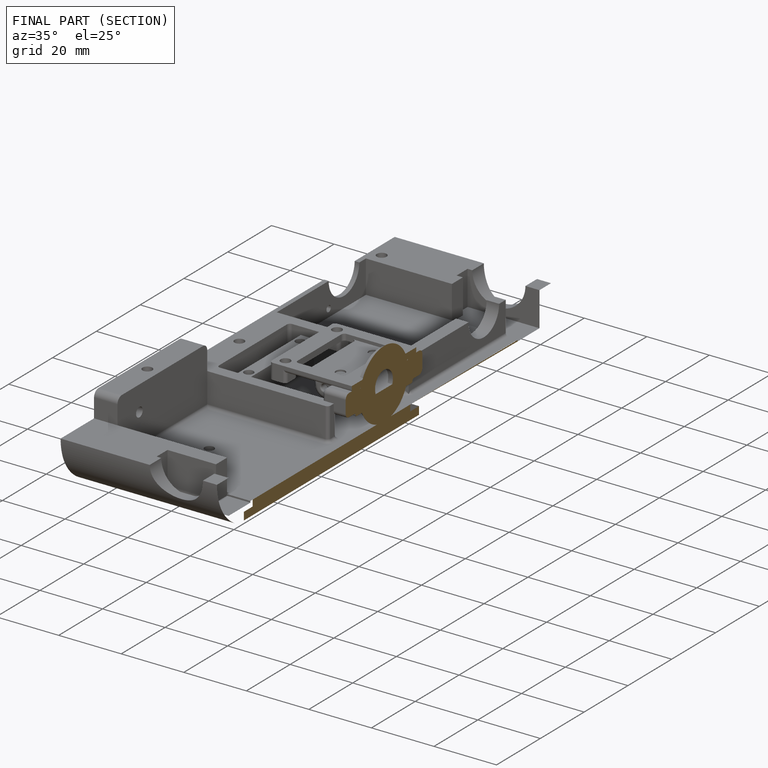
[diagram: finished part — half-section view (interior)]
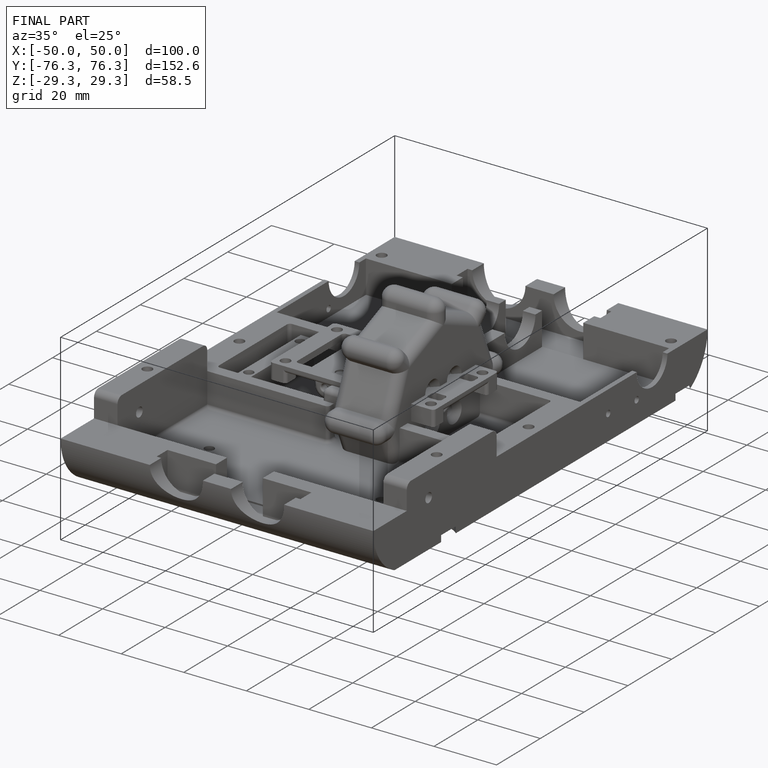
[diagram: finished part — iso view with bounding-box wireframe]
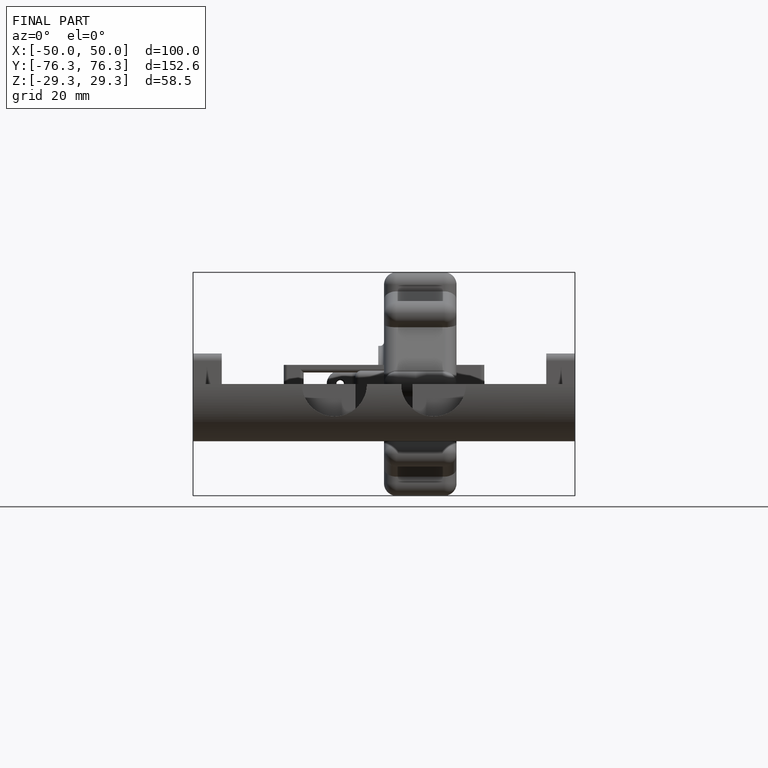
[diagram: finished part — front view with bounding-box wireframe]
